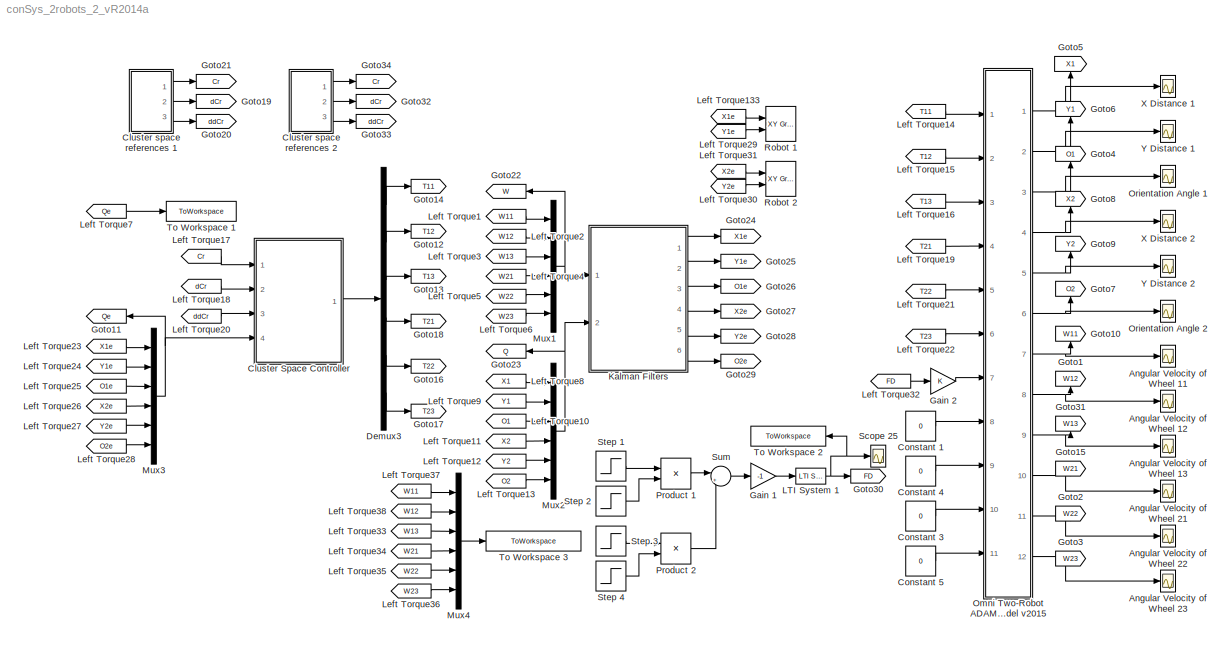
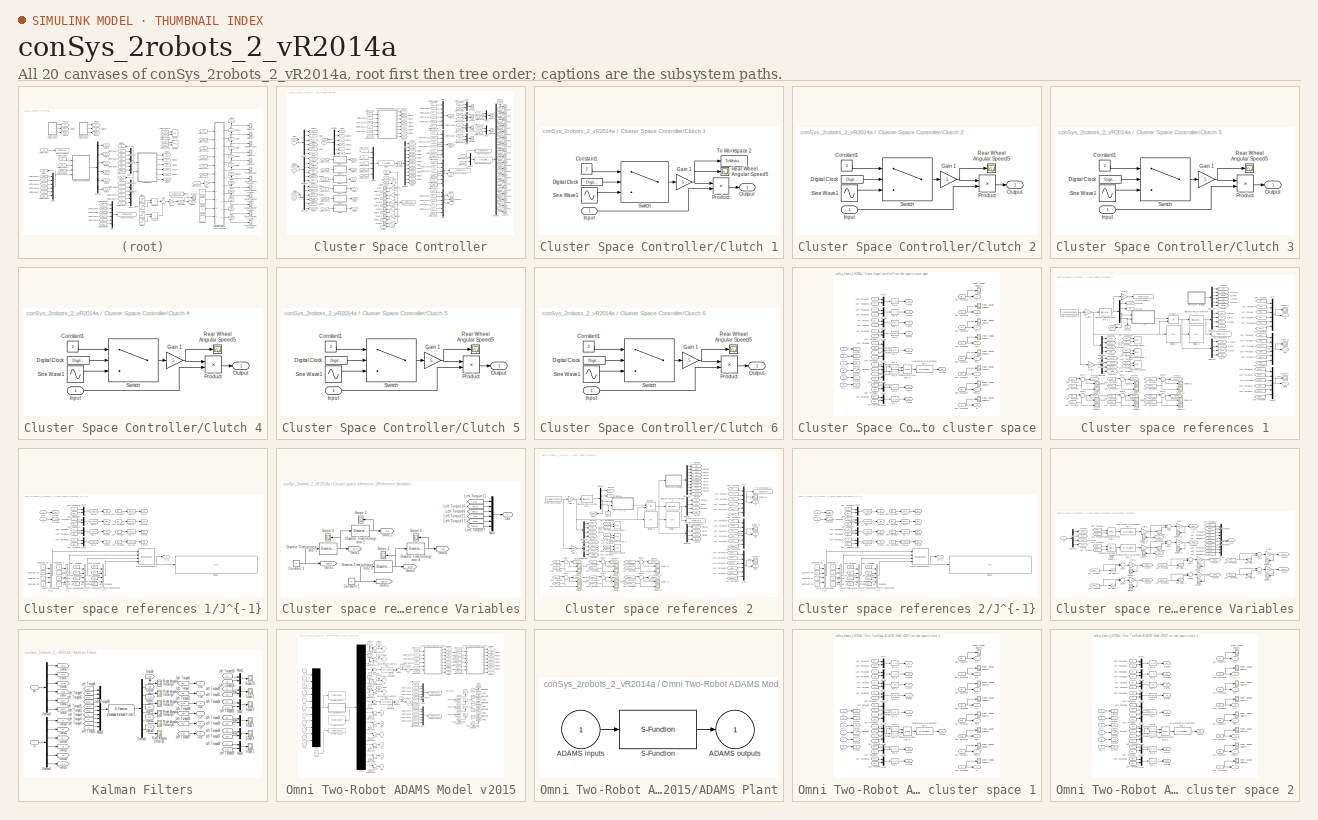
[diagram: thumbnail index - all 20 canvases of the model, root first then tree order]
MODEL conSys_2robots_2_vR2014a
KIND model
BLOCK [Scope] Angular Velocity of Wheel 11
  Floating = off
  LimitDataPoints = off
  NumInputPorts = 1
  Ports = [1]
  SID = 1
  SaveName = ScopeData3
  ShowLegends = off
  YMax = 20
  YMin = -20
  ZoomMode = yonly
BLOCK [Scope] Angular Velocity of Wheel 12
  Floating = off
  LimitDataPoints = off
  NumInputPorts = 1
  Ports = [1]
  SID = 22
  SaveName = ScopeData6
  ShowLegends = off
  YMax = 20
  YMin = -200
  ZoomMode = yonly
BLOCK [Scope] Angular Velocity of Wheel 13
  Floating = off
  LimitDataPoints = off
  NumInputPorts = 1
  Ports = [1]
  SID = 3
  SaveName = ScopeData9
  ShowLegends = off
  YMax = 20
  YMin = -10
  ZoomMode = yonly
BLOCK [Scope] Angular Velocity of Wheel 21
  Floating = off
  LimitDataPoints = off
  NumInputPorts = 1
  Ports = [1]
  SID = 2
  SaveName = ScopeData2
  ShowLegends = off
  YMax = 20
  YMin = -20
  ZoomMode = yonly
BLOCK [Scope] Angular Velocity of Wheel 22
  Floating = off
  LimitDataPoints = off
  NumInputPorts = 1
  Ports = [1]
  SID = 23
  SaveName = ScopeData10
  ShowLegends = off
  YMax = 18
  YMin = -15
  ZoomMode = yonly
BLOCK [Scope] Angular Velocity of Wheel 23
  Floating = off
  LimitDataPoints = off
  NumInputPorts = 1
  Ports = [1]
  SID = 24
  SaveName = ScopeData11
  ShowLegends = off
  YMax = 15
  YMin = -15
  ZoomMode = yonly
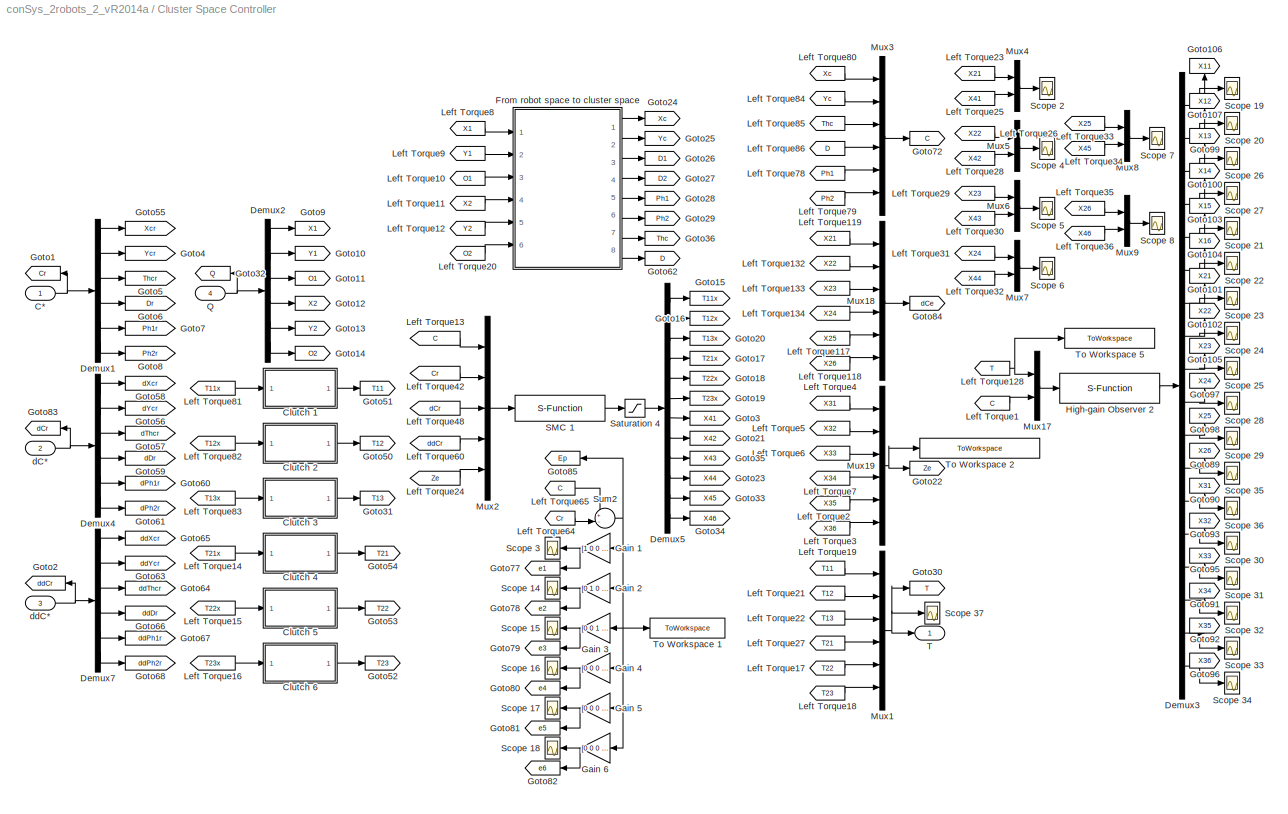
BLOCK [SubSystem] Cluster Space Controller
  Ports = [4, 1]
  RequestExecContextInheritance = off
  SID = 625
BLOCK [Inport] Cluster Space Controller/C*
  IconDisplay = Port number
  SID = 626
BLOCK [SubSystem] Cluster Space Controller/Clutch 1
  Ports = [1, 1]
  RequestExecContextInheritance = off
  SID = 2934
BLOCK [Constant] Cluster Space Controller/Clutch 1/Constant1
  SID = 2936
  Value = 2
BLOCK [DigitalClock] Cluster Space Controller/Clutch 1/Digital Clock
  SID = 2937
  SampleTime = Ts
BLOCK [Gain] Cluster Space Controller/Clutch 1/Gain 1
  Gain = .5
  OutDataTypeStr = Inherit: Inherit via internal rule
  ParamDataTypeStr = Inherit: Inherit via internal rule
  SID = 2938
  SaturateOnIntegerOverflow = off
BLOCK [Inport] Cluster Space Controller/Clutch 1/Input
  IconDisplay = Port number
  SID = 2935
BLOCK [Outport] Cluster Space Controller/Clutch 1/Output
  IconDisplay = Port number
  SID = 2943
BLOCK [Product] Cluster Space Controller/Clutch 1/Product
  InputSameDT = off
  OutDataTypeStr = Inherit: Inherit via internal rule
  Ports = [2, 1]
  RndMeth = Floor
  SID = 2939
  SaturateOnIntegerOverflow = off
BLOCK [Scope] Cluster Space Controller/Clutch 1/Rear Wheel Angular Speed5
  Floating = off
  LimitDataPoints = off
  NumInputPorts = 1
  Ports = [1]
  SID = 2940
  SaveName = ScopeData5
  ShowLegends = off
  YMax = 2
  YMin = 0
  ZoomMode = xonly
BLOCK [Sin] Cluster Space Controller/Clutch 1/Sine Wave1
  Bias = 1
  Frequency = (pi/ck)
  Phase = -pi/2
  Ports = [0, 1]
  SID = 2941
  SampleTime = Ts
BLOCK [Switch] Cluster Space Controller/Clutch 1/Switch
  InputSameDT = off
  SID = 2942
  SaturateOnIntegerOverflow = off
  Threshold = ck
BLOCK [ToWorkspace] Cluster Space Controller/Clutch 1/To Workspace 2
  FixptAsFi = on
  MaxDataPoints = inf
  Ports = [1]
  SID = 3769
  SampleTime = -1
  Save2DSignal = 3-D array (concatenate along third dimension)
  SaveFormat = Structure With Time
  VariableName = clutch
BLOCK [SubSystem] Cluster Space Controller/Clutch 2
  Ports = [1, 1]
  RequestExecContextInheritance = off
  SID = 2944
BLOCK [Constant] Cluster Space Controller/Clutch 2/Constant1
  SID = 2946
  Value = 2
BLOCK [DigitalClock] Cluster Space Controller/Clutch 2/Digital Clock
  SID = 2947
  SampleTime = Ts
BLOCK [Gain] Cluster Space Controller/Clutch 2/Gain 1
  Gain = .5
  OutDataTypeStr = Inherit: Inherit via internal rule
  ParamDataTypeStr = Inherit: Inherit via internal rule
  SID = 2948
  SaturateOnIntegerOverflow = off
BLOCK [Inport] Cluster Space Controller/Clutch 2/Input
  IconDisplay = Port number
  SID = 2945
BLOCK [Outport] Cluster Space Controller/Clutch 2/Output
  IconDisplay = Port number
  SID = 2953
BLOCK [Product] Cluster Space Controller/Clutch 2/Product
  InputSameDT = off
  OutDataTypeStr = Inherit: Inherit via internal rule
  Ports = [2, 1]
  RndMeth = Floor
  SID = 2949
  SaturateOnIntegerOverflow = off
BLOCK [Scope] Cluster Space Controller/Clutch 2/Rear Wheel Angular Speed5
  Floating = off
  LimitDataPoints = off
  NumInputPorts = 1
  Ports = [1]
  SID = 2950
  SaveName = ScopeData5
  ShowLegends = off
  YMax = 2
  YMin = 0
  ZoomMode = xonly
BLOCK [Sin] Cluster Space Controller/Clutch 2/Sine Wave1
  Bias = 1
  Frequency = (pi/ck)
  Phase = -pi/2
  Ports = [0, 1]
  SID = 2951
  SampleTime = Ts
BLOCK [Switch] Cluster Space Controller/Clutch 2/Switch
  InputSameDT = off
  SID = 2952
  SaturateOnIntegerOverflow = off
  Threshold = ck
BLOCK [SubSystem] Cluster Space Controller/Clutch 3
  Ports = [1, 1]
  RequestExecContextInheritance = off
  SID = 2954
BLOCK [Constant] Cluster Space Controller/Clutch 3/Constant1
  SID = 2956
  Value = 2
BLOCK [DigitalClock] Cluster Space Controller/Clutch 3/Digital Clock
  SID = 2957
  SampleTime = Ts
BLOCK [Gain] Cluster Space Controller/Clutch 3/Gain 1
  Gain = .5
  OutDataTypeStr = Inherit: Inherit via internal rule
  ParamDataTypeStr = Inherit: Inherit via internal rule
  SID = 2958
  SaturateOnIntegerOverflow = off
BLOCK [Inport] Cluster Space Controller/Clutch 3/Input
  IconDisplay = Port number
  SID = 2955
BLOCK [Outport] Cluster Space Controller/Clutch 3/Output
  IconDisplay = Port number
  SID = 2963
BLOCK [Product] Cluster Space Controller/Clutch 3/Product
  InputSameDT = off
  OutDataTypeStr = Inherit: Inherit via internal rule
  Ports = [2, 1]
  RndMeth = Floor
  SID = 2959
  SaturateOnIntegerOverflow = off
BLOCK [Scope] Cluster Space Controller/Clutch 3/Rear Wheel Angular Speed5
  Floating = off
  LimitDataPoints = off
  NumInputPorts = 1
  Ports = [1]
  SID = 2960
  SaveName = ScopeData5
  ShowLegends = off
  YMax = 2
  YMin = 0
  ZoomMode = xonly
BLOCK [Sin] Cluster Space Controller/Clutch 3/Sine Wave1
  Bias = 1
  Frequency = (pi/ck)
  Phase = -pi/2
  Ports = [0, 1]
  SID = 2961
  SampleTime = Ts
BLOCK [Switch] Cluster Space Controller/Clutch 3/Switch
  InputSameDT = off
  SID = 2962
  SaturateOnIntegerOverflow = off
  Threshold = ck
BLOCK [SubSystem] Cluster Space Controller/Clutch 4
  Ports = [1, 1]
  RequestExecContextInheritance = off
  SID = 2964
BLOCK [Constant] Cluster Space Controller/Clutch 4/Constant1
  SID = 2966
  Value = 2
BLOCK [DigitalClock] Cluster Space Controller/Clutch 4/Digital Clock
  SID = 2967
  SampleTime = Ts
BLOCK [Gain] Cluster Space Controller/Clutch 4/Gain 1
  Gain = .5
  OutDataTypeStr = Inherit: Inherit via internal rule
  ParamDataTypeStr = Inherit: Inherit via internal rule
  SID = 2968
  SaturateOnIntegerOverflow = off
BLOCK [Inport] Cluster Space Controller/Clutch 4/Input
  IconDisplay = Port number
  SID = 2965
BLOCK [Outport] Cluster Space Controller/Clutch 4/Output
  IconDisplay = Port number
  SID = 2973
BLOCK [Product] Cluster Space Controller/Clutch 4/Product
  InputSameDT = off
  OutDataTypeStr = Inherit: Inherit via internal rule
  Ports = [2, 1]
  RndMeth = Floor
  SID = 2969
  SaturateOnIntegerOverflow = off
BLOCK [Scope] Cluster Space Controller/Clutch 4/Rear Wheel Angular Speed5
  Floating = off
  LimitDataPoints = off
  NumInputPorts = 1
  Ports = [1]
  SID = 2970
  SaveName = ScopeData5
  ShowLegends = off
  YMax = 2
  YMin = 0
  ZoomMode = xonly
BLOCK [Sin] Cluster Space Controller/Clutch 4/Sine Wave1
  Bias = 1
  Frequency = (pi/ck)
  Phase = -pi/2
  Ports = [0, 1]
  SID = 2971
  SampleTime = Ts
BLOCK [Switch] Cluster Space Controller/Clutch 4/Switch
  InputSameDT = off
  SID = 2972
  SaturateOnIntegerOverflow = off
  Threshold = ck
BLOCK [SubSystem] Cluster Space Controller/Clutch 5
  Ports = [1, 1]
  RequestExecContextInheritance = off
  SID = 2974
BLOCK [Constant] Cluster Space Controller/Clutch 5/Constant1
  SID = 2976
  Value = 2
BLOCK [DigitalClock] Cluster Space Controller/Clutch 5/Digital Clock
  SID = 2977
  SampleTime = Ts
BLOCK [Gain] Cluster Space Controller/Clutch 5/Gain 1
  Gain = .5
  OutDataTypeStr = Inherit: Inherit via internal rule
  ParamDataTypeStr = Inherit: Inherit via internal rule
  SID = 2978
  SaturateOnIntegerOverflow = off
BLOCK [Inport] Cluster Space Controller/Clutch 5/Input
  IconDisplay = Port number
  SID = 2975
BLOCK [Outport] Cluster Space Controller/Clutch 5/Output
  IconDisplay = Port number
  SID = 2983
BLOCK [Product] Cluster Space Controller/Clutch 5/Product
  InputSameDT = off
  OutDataTypeStr = Inherit: Inherit via internal rule
  Ports = [2, 1]
  RndMeth = Floor
  SID = 2979
  SaturateOnIntegerOverflow = off
BLOCK [Scope] Cluster Space Controller/Clutch 5/Rear Wheel Angular Speed5
  Floating = off
  LimitDataPoints = off
  NumInputPorts = 1
  Ports = [1]
  SID = 2980
  SaveName = ScopeData5
  ShowLegends = off
  YMax = 2
  YMin = 0
  ZoomMode = xonly
BLOCK [Sin] Cluster Space Controller/Clutch 5/Sine Wave1
  Bias = 1
  Frequency = (pi/ck)
  Phase = -pi/2
  Ports = [0, 1]
  SID = 2981
  SampleTime = Ts
BLOCK [Switch] Cluster Space Controller/Clutch 5/Switch
  InputSameDT = off
  SID = 2982
  SaturateOnIntegerOverflow = off
  Threshold = ck
BLOCK [SubSystem] Cluster Space Controller/Clutch 6
  Ports = [1, 1]
  RequestExecContextInheritance = off
  SID = 2984
BLOCK [Constant] Cluster Space Controller/Clutch 6/Constant1
  SID = 2986
  Value = 2
BLOCK [DigitalClock] Cluster Space Controller/Clutch 6/Digital Clock
  SID = 2987
  SampleTime = Ts
BLOCK [Gain] Cluster Space Controller/Clutch 6/Gain 1
  Gain = .5
  OutDataTypeStr = Inherit: Inherit via internal rule
  ParamDataTypeStr = Inherit: Inherit via internal rule
  SID = 2988
  SaturateOnIntegerOverflow = off
BLOCK [Inport] Cluster Space Controller/Clutch 6/Input
  IconDisplay = Port number
  SID = 2985
BLOCK [Outport] Cluster Space Controller/Clutch 6/Output
  IconDisplay = Port number
  SID = 2993
BLOCK [Product] Cluster Space Controller/Clutch 6/Product
  InputSameDT = off
  OutDataTypeStr = Inherit: Inherit via internal rule
  Ports = [2, 1]
  RndMeth = Floor
  SID = 2989
  SaturateOnIntegerOverflow = off
BLOCK [Scope] Cluster Space Controller/Clutch 6/Rear Wheel Angular Speed5
  Floating = off
  LimitDataPoints = off
  NumInputPorts = 1
  Ports = [1]
  SID = 2990
  SaveName = ScopeData5
  ShowLegends = off
  YMax = 2
  YMin = 0
  ZoomMode = xonly
BLOCK [Sin] Cluster Space Controller/Clutch 6/Sine Wave1
  Bias = 1
  Frequency = (pi/ck)
  Phase = -pi/2
  Ports = [0, 1]
  SID = 2991
  SampleTime = Ts
BLOCK [Switch] Cluster Space Controller/Clutch 6/Switch
  InputSameDT = off
  SID = 2992
  SaturateOnIntegerOverflow = off
  Threshold = ck
BLOCK [Demux] Cluster Space Controller/Demux1
  DisplayOption = bar
  Outputs = 6
  Ports = [1, 6]
  SID = 1014
BLOCK [Demux] Cluster Space Controller/Demux2
  DisplayOption = bar
  Outputs = 6
  Ports = [1, 6]
  SID = 645
BLOCK [Demux] Cluster Space Controller/Demux3
  DisplayOption = bar
  Outputs = 18
  Ports = [1, 18]
  SID = 1835
BLOCK [Demux] Cluster Space Controller/Demux4
  DisplayOption = bar
  Outputs = 6
  Ports = [1, 6]
  SID = 1021
BLOCK [Demux] Cluster Space Controller/Demux5
  DisplayOption = bar
  Outputs = 12
  Ports = [1, 12]
  SID = 685
BLOCK [Demux] Cluster Space Controller/Demux7
  DisplayOption = bar
  Outputs = 6
  Ports = [1, 6]
  SID = 1028
BLOCK [SubSystem] Cluster Space Controller/From robot space to cluster space
  Ports = [6, 8]
  RequestExecContextInheritance = off
  SID = 3375
BLOCK [Outport] Cluster Space Controller/From robot space to cluster space/D
  IconDisplay = Port number
  Port = 8
  SID = 3458
BLOCK [Outport] Cluster Space Controller/From robot space to cluster space/D1
  IconDisplay = Port number
  Port = 3
  SID = 3453
BLOCK [Outport] Cluster Space Controller/From robot space to cluster space/D2
  IconDisplay = Port number
  Port = 4
  SID = 3454
BLOCK [Fcn] Cluster Space Controller/From robot space to cluster space/Fcn 1
  Expr = (u(1)+u(2))/2
  SID = 3382
BLOCK [Fcn] Cluster Space Controller/From robot space to cluster space/Fcn 2
  Expr = (u(1)+u(2))/2
  SID = 3383
BLOCK [Fcn] Cluster Space Controller/From robot space to cluster space/Fcn 3
  Expr = u(1)-u(2)
  SID = 3384
BLOCK [Fcn] Cluster Space Controller/From robot space to cluster space/Fcn 4
  Expr = u(3)-u(4)
  SID = 3385
BLOCK [Fcn] Cluster Space Controller/From robot space to cluster space/Fcn 5
  Expr = sqrt((u(1)-u(2))^2 + (u(3)-u(4))^2)/2
  SID = 3386
BLOCK [Fcn] Cluster Space Controller/From robot space to cluster space/Fcn 6
  Expr = u(1)-u(2)
  SID = 3387
BLOCK [Fcn] Cluster Space Controller/From robot space to cluster space/Fcn 7
  Expr = u(1)-u(2)
  SID = 3388
BLOCK [Fcn] Cluster Space Controller/From robot space to cluster space/Fcn 8
  Expr = u(1) - u(2)
  SID = 3389
BLOCK [Fcn] Cluster Space Controller/From robot space to cluster space/Fcn 9
  Expr = u(1) - u(2)
  SID = 3390
BLOCK [Goto] Cluster Space Controller/From robot space to cluster space/Goto1
  GotoTag = xc
  SID = 3391
BLOCK [Goto] Cluster Space Controller/From robot space to cluster space/Goto10
  GotoTag = d2
  SID = 3392
BLOCK [Goto] Cluster Space Controller/From robot space to cluster space/Goto17
  GotoTag = th1
  SID = 3393
BLOCK [Goto] Cluster Space Controller/From robot space to cluster space/Goto18
  GotoTag = x2
  SID = 3394
BLOCK [Goto] Cluster Space Controller/From robot space to cluster space/Goto19
  GotoTag = y2
  SID = 3395
BLOCK [Goto] Cluster Space Controller/From robot space to cluster space/Goto2
  GotoTag = y1
  SID = 3396
BLOCK [Goto] Cluster Space Controller/From robot space to cluster space/Goto20
  GotoTag = x1
  SID = 3397
BLOCK [Goto] Cluster Space Controller/From robot space to cluster space/Goto3
  GotoTag = th2
  SID = 3398
BLOCK [Goto] Cluster Space Controller/From robot space to cluster space/Goto4
  GotoTag = yc
  SID = 3399
BLOCK [Goto] Cluster Space Controller/From robot space to cluster space/Goto5
  GotoTag = thc
  SID = 3400
BLOCK [Goto] Cluster Space Controller/From robot space to cluster space/Goto6
  GotoTag = d
  SID = 3401
BLOCK [Goto] Cluster Space Controller/From robot space to cluster space/Goto7
  GotoTag = ph1
  SID = 3402
BLOCK [Goto] Cluster Space Controller/From robot space to cluster space/Goto8
  GotoTag = ph2
  SID = 3403
BLOCK [Goto] Cluster Space Controller/From robot space to cluster space/Goto9
  GotoTag = d1
  SID = 3404
BLOCK [MATLABFcn] Cluster Space Controller/From robot space to cluster space/Interpreted MATLAB\nFunction 1
  MATLABFcn = absoluteAngle03_vR2014a(u)
  Ports = [1, 1]
  SID = 3405
  SampleTime = Ts
BLOCK [From] Cluster Space Controller/From robot space to cluster space/Left Torque1
  GotoTag = thc
  SID = 3406
BLOCK [From] Cluster Space Controller/From robot space to cluster space/Left Torque10
  GotoTag = y2
  SID = 3407
BLOCK [From] Cluster Space Controller/From robot space to cluster space/Left Torque11
  GotoTag = y1
  SID = 3408
BLOCK [From] Cluster Space Controller/From robot space to cluster space/Left Torque12
  GotoTag = thc
  SID = 3409
BLOCK [From] Cluster Space Controller/From robot space to cluster space/Left Torque13
  GotoTag = th1
  SID = 3410
BLOCK [From] Cluster Space Controller/From robot space to cluster space/Left Torque14
  GotoTag = y2
  SID = 3411
BLOCK [From] Cluster Space Controller/From robot space to cluster space/Left Torque15
  GotoTag = y1
  SID = 3412
BLOCK [From] Cluster Space Controller/From robot space to cluster space/Left Torque16
  GotoTag = th2
  SID = 3413
BLOCK [From] Cluster Space Controller/From robot space to cluster space/Left Torque17
  GotoTag = xc
  SID = 3414
BLOCK [From] Cluster Space Controller/From robot space to cluster space/Left Torque18
  GotoTag = yc
  SID = 3415
BLOCK [From] Cluster Space Controller/From robot space to cluster space/Left Torque19
  GotoTag = d1
  SID = 3416
BLOCK [From] Cluster Space Controller/From robot space to cluster space/Left Torque2
  GotoTag = x2
  SID = 3417
BLOCK [From] Cluster Space Controller/From robot space to cluster space/Left Torque20
  GotoTag = d2
  SID = 3418
BLOCK [From] Cluster Space Controller/From robot space to cluster space/Left Torque21
  GotoTag = ph1
  SID = 3419
BLOCK [From] Cluster Space Controller/From robot space to cluster space/Left Torque22
  GotoTag = ph2
  SID = 3420
BLOCK [From] Cluster Space Controller/From robot space to cluster space/Left Torque23
  GotoTag = x2
  SID = 3421
BLOCK [From] Cluster Space Controller/From robot space to cluster space/Left Torque24
  GotoTag = xc
  SID = 3422
BLOCK [From] Cluster Space Controller/From robot space to cluster space/Left Torque25
  GotoTag = y2
  SID = 3423
BLOCK [From] Cluster Space Controller/From robot space to cluster space/Left Torque26
  GotoTag = yc
  SID = 3424
BLOCK [From] Cluster Space Controller/From robot space to cluster space/Left Torque27
  GotoTag = thc
  SID = 3425
BLOCK [From] Cluster Space Controller/From robot space to cluster space/Left Torque28
  GotoTag = d
  SID = 3426
BLOCK [From] Cluster Space Controller/From robot space to cluster space/Left Torque3
  GotoTag = x1
  SID = 3427
BLOCK [From] Cluster Space Controller/From robot space to cluster space/Left Torque4
  GotoTag = x2
  SID = 3428
BLOCK [From] Cluster Space Controller/From robot space to cluster space/Left Torque5
  GotoTag = x1
  SID = 3429
BLOCK [From] Cluster Space Controller/From robot space to cluster space/Left Torque6
  GotoTag = y2
  SID = 3430
BLOCK [From] Cluster Space Controller/From robot space to cluster space/Left Torque7
  GotoTag = y1
  SID = 3431
BLOCK [From] Cluster Space Controller/From robot space to cluster space/Left Torque8
  GotoTag = x2
  SID = 3432
BLOCK [From] Cluster Space Controller/From robot space to cluster space/Left Torque9
  GotoTag = x1
  SID = 3433
BLOCK [Mux] Cluster Space Controller/From robot space to cluster space/Mux1
  DisplayOption = bar
  Inputs = 2
  Ports = [2, 1]
  SID = 3434
BLOCK [Mux] Cluster Space Controller/From robot space to cluster space/Mux2
  DisplayOption = bar
  Ports = [4, 1]
  SID = 3435
BLOCK [Mux] Cluster Space Controller/From robot space to cluster space/Mux3
  DisplayOption = bar
  Inputs = 2
  Ports = [2, 1]
  SID = 3436
BLOCK [Mux] Cluster Space Controller/From robot space to cluster space/Mux4
  DisplayOption = bar
  Ports = [4, 1]
  SID = 3437
BLOCK [Mux] Cluster Space Controller/From robot space to cluster space/Mux5
  DisplayOption = bar
  Inputs = 2
  Ports = [2, 1]
  SID = 3438
BLOCK [Mux] Cluster Space Controller/From robot space to cluster space/Mux6
  DisplayOption = bar
  Inputs = 2
  Ports = [2, 1]
  SID = 3439
BLOCK [Mux] Cluster Space Controller/From robot space to cluster space/Mux7
  DisplayOption = bar
  Inputs = 2
  Ports = [2, 1]
  SID = 3440
BLOCK [Mux] Cluster Space Controller/From robot space to cluster space/Mux8
  DisplayOption = bar
  Inputs = 2
  Ports = [2, 1]
  SID = 3441
BLOCK [Outport] Cluster Space Controller/From robot space to cluster space/Phi_1
  IconDisplay = Port number
  Port = 5
  SID = 3455
BLOCK [Outport] Cluster Space Controller/From robot space to cluster space/Phi_2
  IconDisplay = Port number
  Port = 6
  SID = 3456
BLOCK [Scope] Cluster Space Controller/From robot space to cluster space/Right Angular Velocity1
  Floating = off
  LimitDataPoints = off
  NumInputPorts = 1
  Ports = [1]
  SID = 3442
  SaveName = ScopeData38
  ShowLegends = off
  YMax = 2600
  YMin = 2400
  ZoomMode = xonly
BLOCK [Scope] Cluster Space Controller/From robot space to cluster space/Right Angular Velocity2
  Floating = off
  LimitDataPoints = off
  NumInputPorts = 1
  Ports = [1]
  SID = 3443
  SaveName = ScopeData36
  ShowLegends = off
  YMax = 2600
  YMin = 2400
  ZoomMode = xonly
BLOCK [Scope] Cluster Space Controller/From robot space to cluster space/Right Angular Velocity3
  Floating = off
  LimitDataPoints = off
  NumInputPorts = 1
  Ports = [1]
  SID = 3444
  SaveName = ScopeData48
  ShowLegends = off
  YMax = 2600
  YMin = 2400
  ZoomMode = xonly
BLOCK [Scope] Cluster Space Controller/From robot space to cluster space/Right Angular Velocity4
  Floating = off
  LimitDataPoints = off
  NumInputPorts = 1
  Ports = [1]
  SID = 3445
  SaveName = ScopeData49
  ShowLegends = off
  YMax = 700
  YMin = 0
  ZoomMode = xonly
BLOCK [Scope] Cluster Space Controller/From robot space to cluster space/Right Angular Velocity5
  Floating = off
  LimitDataPoints = off
  NumInputPorts = 1
  Ports = [1]
  SID = 3446
  SaveName = ScopeData50
  ShowLegends = off
  YMax = 2600
  YMin = 2400
  ZoomMode = xonly
BLOCK [Scope] Cluster Space Controller/From robot space to cluster space/Right Angular Velocity6
  Floating = off
  LimitDataPoints = off
  NumInputPorts = 1
  Ports = [1]
  SID = 3447
  SaveName = ScopeData51
  ShowLegends = off
  YMax = 2600
  YMin = 2400
  ZoomMode = yonly
BLOCK [Scope] Cluster Space Controller/From robot space to cluster space/Right Angular Velocity7
  Floating = off
  LimitDataPoints = off
  NumInputPorts = 1
  Ports = [1]
  SID = 3448
  SaveName = ScopeData80
  ShowLegends = off
  YMax = 10
  YMin = -10
  ZoomMode = yonly
BLOCK [Scope] Cluster Space Controller/From robot space to cluster space/Right Angular Velocity8
  Floating = off
  LimitDataPoints = off
  NumInputPorts = 1
  Ports = [1]
  SID = 3449
  SaveName = ScopeData85
  ShowLegends = off
  YMax = 1392.5
  YMin = 1350
  ZoomMode = yonly
BLOCK [Outport] Cluster Space Controller/From robot space to cluster space/Theta_c
  IconDisplay = Port number
  Port = 7
  SID = 3457
BLOCK [Trigonometry] Cluster Space Controller/From robot space to cluster space/Trigonometric\nFunction 3
  Operator = atan2
  Ports = [2, 1]
  SID = 3450
BLOCK [Outport] Cluster Space Controller/From robot space to cluster space/X_c
  IconDisplay = Port number
  SID = 3451
BLOCK [Outport] Cluster Space Controller/From robot space to cluster space/Y_c
  IconDisplay = Port number
  Port = 2
  SID = 3452
BLOCK [Inport] Cluster Space Controller/From robot space to cluster space/th_1
  IconDisplay = Port number
  Port = 3
  SID = 3378
BLOCK [Inport] Cluster Space Controller/From robot space to cluster space/th_2
  IconDisplay = Port number
  Port = 6
  SID = 3381
BLOCK [Inport] Cluster Space Controller/From robot space to cluster space/x_1
  IconDisplay = Port number
  SID = 3376
BLOCK [Inport] Cluster Space Controller/From robot space to cluster space/x_2
  IconDisplay = Port number
  Port = 4
  SID = 3379
BLOCK [Inport] Cluster Space Controller/From robot space to cluster space/y_1
  IconDisplay = Port number
  Port = 2
  SID = 3377
BLOCK [Inport] Cluster Space Controller/From robot space to cluster space/y_2
  IconDisplay = Port number
  Port = 5
  SID = 3380
BLOCK [Gain] Cluster Space Controller/Gain 1
  Gain = [1 0 0 0 0 0]
  Multiplication = Matrix(K*u)
  OutDataTypeStr = Inherit: Inherit via internal rule
  ParamDataTypeStr = Inherit: Inherit via internal rule
  SID = 1516
  SaturateOnIntegerOverflow = off
BLOCK [Gain] Cluster Space Controller/Gain 2
  Gain = [0 1 0 0 0 0]
  Multiplication = Matrix(K*u)
  OutDataTypeStr = Inherit: Inherit via internal rule
  ParamDataTypeStr = Inherit: Inherit via internal rule
  SID = 1517
  SaturateOnIntegerOverflow = off
BLOCK [Gain] Cluster Space Controller/Gain 3
  Gain = [0 0 1 0 0 0]
  Multiplication = Matrix(K*u)
  OutDataTypeStr = Inherit: Inherit via internal rule
  ParamDataTypeStr = Inherit: Inherit via internal rule
  SID = 1519
  SaturateOnIntegerOverflow = off
BLOCK [Gain] Cluster Space Controller/Gain 4
  Gain = [0 0 0 1 0 0]
  Multiplication = Matrix(K*u)
  OutDataTypeStr = Inherit: Inherit via internal rule
  ParamDataTypeStr = Inherit: Inherit via internal rule
  SID = 1521
  SaturateOnIntegerOverflow = off
BLOCK [Gain] Cluster Space Controller/Gain 5
  Gain = [0 0 0 0 1 0]
  Multiplication = Matrix(K*u)
  OutDataTypeStr = Inherit: Inherit via internal rule
  ParamDataTypeStr = Inherit: Inherit via internal rule
  SID = 1523
  SaturateOnIntegerOverflow = off
BLOCK [Gain] Cluster Space Controller/Gain 6
  Gain = [0 0 0 0 0 1]
  Multiplication = Matrix(K*u)
  OutDataTypeStr = Inherit: Inherit via internal rule
  ParamDataTypeStr = Inherit: Inherit via internal rule
  SID = 1525
  SaturateOnIntegerOverflow = off
BLOCK [Goto] Cluster Space Controller/Goto1
  GotoTag = Cr
  SID = 634
BLOCK [Goto] Cluster Space Controller/Goto10
  GotoTag = Y1
  SID = 647
BLOCK [Goto] Cluster Space Controller/Goto100
  GotoTag = X14
  SID = 1937
BLOCK [Goto] Cluster Space Controller/Goto101
  GotoTag = X21
  SID = 1938
BLOCK [Goto] Cluster Space Controller/Goto102
  GotoTag = X22
  SID = 1939
BLOCK [Goto] Cluster Space Controller/Goto103
  GotoTag = X15
  SID = 1940
BLOCK [Goto] Cluster Space Controller/Goto104
  GotoTag = X16
  SID = 1941
BLOCK [Goto] Cluster Space Controller/Goto105
  GotoTag = X23
  SID = 1942
BLOCK [Goto] Cluster Space Controller/Goto106
  GotoTag = X11
  SID = 1943
BLOCK [Goto] Cluster Space Controller/Goto107
  GotoTag = X12
  SID = 1944
BLOCK [Goto] Cluster Space Controller/Goto11
  GotoTag = O1
  SID = 648
BLOCK [Goto] Cluster Space Controller/Goto12
  GotoTag = X2
  SID = 649
BLOCK [Goto] Cluster Space Controller/Goto13
  GotoTag = Y2
  SID = 650
BLOCK [Goto] Cluster Space Controller/Goto14
  GotoTag = O2
  SID = 651
BLOCK [Goto] Cluster Space Controller/Goto15
  GotoTag = T11x
  SID = 686
BLOCK [Goto] Cluster Space Controller/Goto16
  GotoTag = T12x
  SID = 687
BLOCK [Goto] Cluster Space Controller/Goto17
  GotoTag = T21x
  SID = 691
BLOCK [Goto] Cluster Space Controller/Goto18
  GotoTag = T22x
  SID = 692
BLOCK [Goto] Cluster Space Controller/Goto19
  GotoTag = T23x
  SID = 693
BLOCK [Goto] Cluster Space Controller/Goto2
  GotoTag = ddCr
  SID = 3751
BLOCK [Goto] Cluster Space Controller/Goto20
  GotoTag = T13x
  SID = 688
BLOCK [Goto] Cluster Space Controller/Goto21
  GotoTag = X42
  SID = 3754
BLOCK [Goto] Cluster Space Controller/Goto22
  GotoTag = Ze
  SID = 2915
BLOCK [Goto] Cluster Space Controller/Goto23
  GotoTag = X44
  SID = 3755
BLOCK [Goto] Cluster Space Controller/Goto24
  GotoTag = Xc
  SID = 3459
BLOCK [Goto] Cluster Space Controller/Goto25
  GotoTag = Yc
  SID = 3460
BLOCK [Goto] Cluster Space Controller/Goto26
  GotoTag = D1
  SID = 3461
BLOCK [Goto] Cluster Space Controller/Goto27
  GotoTag = D2
  SID = 3462
BLOCK [Goto] Cluster Space Controller/Goto28
  GotoTag = Ph1
  SID = 3463
BLOCK [Goto] Cluster Space Controller/Goto29
  GotoTag = Ph2
  SID = 3464
BLOCK [Goto] Cluster Space Controller/Goto3
  GotoTag = X41
  SID = 3753
BLOCK [Goto] Cluster Space Controller/Goto30
  GotoTag = T
  SID = 2910
BLOCK [Goto] Cluster Space Controller/Goto31
  GotoTag = T13
  SID = 725
BLOCK [Goto] Cluster Space Controller/Goto32
  GotoTag = Q
  SID = 2911
BLOCK [Goto] Cluster Space Controller/Goto33
  GotoTag = X45
  SID = 3756
BLOCK [Goto] Cluster Space Controller/Goto34
  GotoTag = X46
  SID = 3757
BLOCK [Goto] Cluster Space Controller/Goto35
  GotoTag = X43
  SID = 3758
BLOCK [Goto] Cluster Space Controller/Goto36
  GotoTag = Thc
  SID = 3465
BLOCK [Goto] Cluster Space Controller/Goto4
  GotoTag = Ycr
  SID = 1015
BLOCK [Goto] Cluster Space Controller/Goto5
  GotoTag = Thcr
  SID = 1016
BLOCK [Goto] Cluster Space Controller/Goto50
  GotoTag = T12
  SID = 726
BLOCK [Goto] Cluster Space Controller/Goto51
  GotoTag = T11
  SID = 727
BLOCK [Goto] Cluster Space Controller/Goto52
  GotoTag = T23
  SID = 762
BLOCK [Goto] Cluster Space Controller/Goto53
  GotoTag = T22
  SID = 763
BLOCK [Goto] Cluster Space Controller/Goto54
  GotoTag = T21
  SID = 764
BLOCK [Goto] Cluster Space Controller/Goto55
  GotoTag = Xcr
  SID = 1020
BLOCK [Goto] Cluster Space Controller/Goto56
  GotoTag = dYcr
  SID = 1022
BLOCK [Goto] Cluster Space Controller/Goto57
  GotoTag = dThcr
  SID = 1023
BLOCK [Goto] Cluster Space Controller/Goto58
  GotoTag = dXcr
  SID = 1024
BLOCK [Goto] Cluster Space Controller/Goto59
  GotoTag = dDr
  SID = 1025
BLOCK [Goto] Cluster Space Controller/Goto6
  GotoTag = Dr
  SID = 1017
BLOCK [Goto] Cluster Space Controller/Goto60
  GotoTag = dPh1r
  SID = 1026
BLOCK [Goto] Cluster Space Controller/Goto61
  GotoTag = dPh2r
  SID = 1027
BLOCK [Goto] Cluster Space Controller/Goto62
  GotoTag = D
  SID = 3466
BLOCK [Goto] Cluster Space Controller/Goto63
  GotoTag = ddYcr
  SID = 1029
BLOCK [Goto] Cluster Space Controller/Goto64
  GotoTag = ddThcr
  SID = 1030
BLOCK [Goto] Cluster Space Controller/Goto65
  GotoTag = ddXcr
  SID = 1031
BLOCK [Goto] Cluster Space Controller/Goto66
  GotoTag = ddDr
  SID = 1032
BLOCK [Goto] Cluster Space Controller/Goto67
  GotoTag = ddPh1r
  SID = 1033
BLOCK [Goto] Cluster Space Controller/Goto68
  GotoTag = ddPh2r
  SID = 1034
BLOCK [Goto] Cluster Space Controller/Goto7
  GotoTag = Ph1r
  SID = 1018
BLOCK [Goto] Cluster Space Controller/Goto72
  GotoTag = C
  SID = 1089
BLOCK [Goto] Cluster Space Controller/Goto77
  GotoTag = e1
  SID = 1533
BLOCK [Goto] Cluster Space Controller/Goto78
  GotoTag = e2
  SID = 1534
BLOCK [Goto] Cluster Space Controller/Goto79
  GotoTag = e3
  SID = 1535
BLOCK [Goto] Cluster Space Controller/Goto8
  GotoTag = Ph2r
  SID = 1019
BLOCK [Goto] Cluster Space Controller/Goto80
  GotoTag = e4
  SID = 1536
BLOCK [Goto] Cluster Space Controller/Goto81
  GotoTag = e5
  SID = 1537
BLOCK [Goto] Cluster Space Controller/Goto82
  GotoTag = e6
  SID = 1538
BLOCK [Goto] Cluster Space Controller/Goto83
  GotoTag = dCr
  SID = 2227
BLOCK [Goto] Cluster Space Controller/Goto84
  GotoTag = dCe
  SID = 2228
BLOCK [Goto] Cluster Space Controller/Goto85
  GotoTag = Ep
  SID = 2241
BLOCK [Goto] Cluster Space Controller/Goto89
  GotoTag = X26
  SID = 1926
BLOCK [Goto] Cluster Space Controller/Goto9
  GotoTag = X1
  SID = 646
BLOCK [Goto] Cluster Space Controller/Goto90
  GotoTag = X31
  SID = 1927
BLOCK [Goto] Cluster Space Controller/Goto91
  GotoTag = X34
  SID = 1928
BLOCK [Goto] Cluster Space Controller/Goto92
  GotoTag = X35
  SID = 1929
BLOCK [Goto] Cluster Space Controller/Goto93
  GotoTag = X32
  SID = 1930
BLOCK [Goto] Cluster Space Controller/Goto95
  GotoTag = X33
  SID = 1932
BLOCK [Goto] Cluster Space Controller/Goto96
  GotoTag = X36
  SID = 1933
BLOCK [Goto] Cluster Space Controller/Goto97
  GotoTag = X24
  SID = 1934
BLOCK [Goto] Cluster Space Controller/Goto98
  GotoTag = X25
  SID = 1935
BLOCK [Goto] Cluster Space Controller/Goto99
  GotoTag = X13
  SID = 1936
BLOCK [S-Function] Cluster Space Controller/High-gain Observer 2
  EnableBusSupport = off
  FunctionName = HGO_2_vR2014a
  Parameters = par
  Ports = [1, 1]
  SID = 1967
BLOCK [From] Cluster Space Controller/Left Torque1
  GotoTag = C
  SID = 2912
BLOCK [From] Cluster Space Controller/Left Torque10
  GotoTag = O1
  SID = 3469
BLOCK [From] Cluster Space Controller/Left Torque11
  GotoTag = X2
  SID = 3470
BLOCK [From] Cluster Space Controller/Left Torque117
  GotoTag = X25
  SID = 2229
BLOCK [From] Cluster Space Controller/Left Torque118
  GotoTag = X26
  SID = 2230
BLOCK [From] Cluster Space Controller/Left Torque119
  GotoTag = X21
  SID = 2231
BLOCK [From] Cluster Space Controller/Left Torque12
  GotoTag = Y2
  SID = 3471
BLOCK [From] Cluster Space Controller/Left Torque128
  GotoTag = T
  SID = 1995
BLOCK [From] Cluster Space Controller/Left Torque13
  GotoTag = C
  SID = 682
BLOCK [From] Cluster Space Controller/Left Torque132
  GotoTag = X22
  SID = 2232
BLOCK [From] Cluster Space Controller/Left Torque133
  GotoTag = X23
  SID = 2233
BLOCK [From] Cluster Space Controller/Left Torque134
  GotoTag = X24
  SID = 2234
BLOCK [From] Cluster Space Controller/Left Torque14
  GotoTag = T21x
  SID = 765
BLOCK [From] Cluster Space Controller/Left Torque15
  GotoTag = T22x
  SID = 766
BLOCK [From] Cluster Space Controller/Left Torque16
  GotoTag = T23x
  SID = 767
BLOCK [From] Cluster Space Controller/Left Torque17
  GotoTag = T22
  SID = 769
BLOCK [From] Cluster Space Controller/Left Torque18
  GotoTag = T23
  SID = 770
BLOCK [From] Cluster Space Controller/Left Torque19
  GotoTag = T11
  SID = 771
BLOCK [From] Cluster Space Controller/Left Torque2
  GotoTag = X35
  SID = 2916
BLOCK [From] Cluster Space Controller/Left Torque20
  GotoTag = O2
  SID = 3472
BLOCK [From] Cluster Space Controller/Left Torque21
  GotoTag = T12
  SID = 772
BLOCK [From] Cluster Space Controller/Left Torque22
  GotoTag = T13
  SID = 773
BLOCK [From] Cluster Space Controller/Left Torque23
  GotoTag = X21
  SID = 4123
BLOCK [From] Cluster Space Controller/Left Torque24
  GotoTag = Ze
  SID = 1061
BLOCK [From] Cluster Space Controller/Left Torque25
  GotoTag = X41
  SID = 4124
BLOCK [From] Cluster Space Controller/Left Torque26
  GotoTag = X22
  SID = 4126
BLOCK [From] Cluster Space Controller/Left Torque27
  GotoTag = T21
  SID = 774
BLOCK [From] Cluster Space Controller/Left Torque28
  GotoTag = X42
  SID = 4127
BLOCK [From] Cluster Space Controller/Left Torque29
  GotoTag = X23
  SID = 4129
BLOCK [From] Cluster Space Controller/Left Torque3
  GotoTag = X36
  SID = 2917
BLOCK [From] Cluster Space Controller/Left Torque30
  GotoTag = X43
  SID = 4130
BLOCK [From] Cluster Space Controller/Left Torque31
  GotoTag = X24
  SID = 4132
BLOCK [From] Cluster Space Controller/Left Torque32
  GotoTag = X44
  SID = 4133
BLOCK [From] Cluster Space Controller/Left Torque33
  GotoTag = X25
  SID = 4139
BLOCK [From] Cluster Space Controller/Left Torque34
  GotoTag = X45
  SID = 4140
BLOCK [From] Cluster Space Controller/Left Torque35
  GotoTag = X26
  SID = 4143
BLOCK [From] Cluster Space Controller/Left Torque36
  GotoTag = X46
  SID = 4144
BLOCK [From] Cluster Space Controller/Left Torque4
  GotoTag = X31
  SID = 2918
BLOCK [From] Cluster Space Controller/Left Torque42
  GotoTag = Cr
  SID = 1039
BLOCK [From] Cluster Space Controller/Left Torque48
  GotoTag = dCr
  SID = 1045
BLOCK [From] Cluster Space Controller/Left Torque5
  GotoTag = X32
  SID = 2919
BLOCK [From] Cluster Space Controller/Left Torque6
  GotoTag = X33
  SID = 2920
BLOCK [From] Cluster Space Controller/Left Torque60
  GotoTag = ddCr
  SID = 1051
BLOCK [From] Cluster Space Controller/Left Torque64
  GotoTag = Cr
  SID = 729
BLOCK [From] Cluster Space Controller/Left Torque65
  GotoTag = C
  SID = 730
BLOCK [From] Cluster Space Controller/Left Torque7
  GotoTag = X34
  SID = 2921
BLOCK [From] Cluster Space Controller/Left Torque78
  GotoTag = Ph1
  SID = 1082
BLOCK [From] Cluster Space Controller/Left Torque79
  GotoTag = Ph2
  SID = 1083
BLOCK [From] Cluster Space Controller/Left Torque8
  GotoTag = X1
  SID = 3467
BLOCK [From] Cluster Space Controller/Left Torque80
  GotoTag = Xc
  SID = 1084
BLOCK [From] Cluster Space Controller/Left Torque81
  GotoTag = T11x
  SID = 731
BLOCK [From] Cluster Space Controller/Left Torque82
  GotoTag = T12x
  SID = 732
BLOCK [From] Cluster Space Controller/Left Torque83
  GotoTag = T13x
  SID = 733
BLOCK [From] Cluster Space Controller/Left Torque84
  GotoTag = Yc
  SID = 1085
BLOCK [From] Cluster Space Controller/Left Torque85
  GotoTag = Thc
  SID = 1086
BLOCK [From] Cluster Space Controller/Left Torque86
  GotoTag = D
  SID = 1087
BLOCK [From] Cluster Space Controller/Left Torque9
  GotoTag = Y1
  SID = 3468
BLOCK [Mux] Cluster Space Controller/Mux1
  DisplayOption = bar
  Inputs = 6
  Ports = [6, 1]
  SID = 768
BLOCK [Mux] Cluster Space Controller/Mux17
  DisplayOption = bar
  Inputs = 2
  Ports = [2, 1]
  SID = 1999
BLOCK [Mux] Cluster Space Controller/Mux18
  DisplayOption = bar
  Inputs = 6
  Ports = [6, 1]
  SID = 2235
BLOCK [Mux] Cluster Space Controller/Mux19
  DisplayOption = bar
  Inputs = 6
  Ports = [6, 1]
  SID = 2922
BLOCK [Mux] Cluster Space Controller/Mux2
  DisplayOption = bar
  Inputs = 5
  Ports = [5, 1]
  SID = 683
BLOCK [Mux] Cluster Space Controller/Mux3
  DisplayOption = bar
  Inputs = 6
  Ports = [6, 1]
  SID = 1088
BLOCK [Mux] Cluster Space Controller/Mux4
  DisplayOption = bar
  Inputs = 2
  Ports = [2, 1]
  SID = 4125
BLOCK [Mux] Cluster Space Controller/Mux5
  DisplayOption = bar
  Inputs = 2
  Ports = [2, 1]
  SID = 4128
BLOCK [Mux] Cluster Space Controller/Mux6
  DisplayOption = bar
  Inputs = 2
  Ports = [2, 1]
  SID = 4131
BLOCK [Mux] Cluster Space Controller/Mux7
  DisplayOption = bar
  Inputs = 2
  Ports = [2, 1]
  SID = 4134
BLOCK [Mux] Cluster Space Controller/Mux8
  DisplayOption = bar
  Inputs = 2
  Ports = [2, 1]
  SID = 4141
BLOCK [Mux] Cluster Space Controller/Mux9
  DisplayOption = bar
  Inputs = 2
  Ports = [2, 1]
  SID = 4145
BLOCK [Inport] Cluster Space Controller/Q
  IconDisplay = Port number
  Port = 4
  SID = 629
BLOCK [S-Function] Cluster Space Controller/SMC 1
  EnableBusSupport = off
  FunctionName = SMC_1_vR2014a
  Parameters = par
  Ports = [1, 1]
  SID = 659
BLOCK [Saturate] Cluster Space Controller/Saturation 4
  InputPortMap = u0
  LowerLimit = -100
  Ports = [1, 1]
  SID = 689
  UpperLimit = 100
BLOCK [Scope] Cluster Space Controller/Scope 14
  Floating = off
  LimitDataPoints = off
  NumInputPorts = 1
  Ports = [1]
  SID = 1518
  SaveName = ScopeData77
  ShowLegends = off
  YMax = 3000
  YMin = -5000
  ZoomMode = yonly
BLOCK [Scope] Cluster Space Controller/Scope 15
  Floating = off
  LimitDataPoints = off
  NumInputPorts = 1
  Ports = [1]
  SID = 1520
  SaveName = ScopeData78
  ShowLegends = off
  YMax = 4
  YMin = -4
  ZoomMode = yonly
BLOCK [Scope] Cluster Space Controller/Scope 16
  Floating = off
  LimitDataPoints = off
  NumInputPorts = 1
  Ports = [1]
  SID = 1522
  SaveName = ScopeData82
  ShowLegends = off
  YMax = 800
  YMin = -2000
  ZoomMode = xonly
BLOCK [Scope] Cluster Space Controller/Scope 17
  Floating = off
  LimitDataPoints = off
  NumInputPorts = 1
  Ports = [1]
  SID = 1524
  SaveName = ScopeData83
  ShowLegends = off
BLOCK [Scope] Cluster Space Controller/Scope 18
  Floating = off
  LimitDataPoints = off
  NumInputPorts = 1
  Ports = [1]
  SID = 1526
  SaveName = ScopeData84
  ShowLegends = off
BLOCK [Scope] Cluster Space Controller/Scope 19
  Floating = off
  LimitDataPoints = off
  NumInputPorts = 1
  Ports = [1]
  SID = 2000
  SaveName = ScopeData86
  ShowLegends = off
  YMax = 16000
  YMin = -2000
  ZoomMode = yonly
BLOCK [Scope] Cluster Space Controller/Scope 2
  Floating = off
  LimitDataPoints = off
  NumInputPorts = 1
  Ports = [1]
  SID = 4135
  SaveName = ScopeData22
  ShowLegends = off
  YMax = 100
  YMin = -100
  ZoomMode = yonly
BLOCK [Scope] Cluster Space Controller/Scope 20
  Floating = off
  LimitDataPoints = off
  NumInputPorts = 1
  Ports = [1]
  SID = 2001
  SaveName = ScopeData87
  ShowLegends = off
  YMax = 20000
  YMin = 0
  ZoomMode = yonly
BLOCK [Scope] Cluster Space Controller/Scope 21
  Floating = off
  LimitDataPoints = off
  NumInputPorts = 1
  Ports = [1]
  SID = 2002
  SaveName = ScopeData88
  ShowLegends = off
  YMax = 5000
  YMin = 0
  ZoomMode = yonly
BLOCK [Scope] Cluster Space Controller/Scope 22
  Floating = off
  LimitDataPoints = off
  NumInputPorts = 1
  Ports = [1]
  SID = 2003
  SaveName = ScopeData90
  ShowLegends = off
  YMax = 200
  YMin = -100
  ZoomMode = yonly
BLOCK [Scope] Cluster Space Controller/Scope 23
  Floating = off
  LimitDataPoints = off
  NumInputPorts = 1
  Ports = [1]
  SID = 2004
  SaveName = ScopeData91
  ShowLegends = off
  YMax = 100
  YMin = -10
  ZoomMode = yonly
BLOCK [Scope] Cluster Space Controller/Scope 24
  Floating = off
  LimitDataPoints = off
  NumInputPorts = 1
  Ports = [1]
  SID = 2005
  SaveName = ScopeData92
  ShowLegends = off
  YMax = 50
  YMin = -50
  ZoomMode = yonly
BLOCK [Scope] Cluster Space Controller/Scope 25
  Floating = off
  LimitDataPoints = off
  NumInputPorts = 1
  Ports = [1]
  SID = 2006
  SaveName = ScopeData93
  ShowLegends = off
  YMax = 6
  YMin = -6
  ZoomMode = yonly
BLOCK [Scope] Cluster Space Controller/Scope 26
  Floating = off
  LimitDataPoints = off
  NumInputPorts = 1
  Ports = [1]
  SID = 2007
  SaveName = ScopeData94
  ShowLegends = off
  ZoomMode = yonly
BLOCK [Scope] Cluster Space Controller/Scope 27
  Floating = off
  LimitDataPoints = off
  NumInputPorts = 1
  Ports = [1]
  SID = 2008
  SaveName = ScopeData95
  ShowLegends = off
  TimeRange = 388
  YMax = 1000
  YMin = -1000
  ZoomMode = yonly
BLOCK [Scope] Cluster Space Controller/Scope 28
  Floating = off
  LimitDataPoints = off
  NumInputPorts = 1
  Ports = [1]
  SID = 2009
  SaveName = ScopeData96
  ShowLegends = off
  YMax = 10000
  YMin = 0
  ZoomMode = yonly
BLOCK [Scope] Cluster Space Controller/Scope 29
  Floating = off
  LimitDataPoints = off
  NumInputPorts = 1
  Ports = [1]
  SID = 2010
  SaveName = ScopeData97
  ShowLegends = off
  YMax = 10000
  YMin = 0
  ZoomMode = yonly
BLOCK [Scope] Cluster Space Controller/Scope 3
  Floating = off
  LimitDataPoints = off
  NumInputPorts = 1
  Ports = [1]
  SID = 1100
  SaveName = ScopeData40
  ShowLegends = off
  YMax = 1000
  YMin = -5000
  ZoomMode = xonly
BLOCK [Scope] Cluster Space Controller/Scope 30
  Floating = off
  LimitDataPoints = off
  NumInputPorts = 1
  Ports = [1]
  SID = 2011
  SaveName = ScopeData98
  ShowLegends = off
  YMax = 500
  YMin = -1000
  ZoomMode = yonly
BLOCK [Scope] Cluster Space Controller/Scope 31
  Floating = off
  LimitDataPoints = off
  NumInputPorts = 1
  Ports = [1]
  SID = 2012
  SaveName = ScopeData99
  ShowLegends = off
  YMax = 0.5
  YMin = -0.5
  ZoomMode = yonly
BLOCK [Scope] Cluster Space Controller/Scope 32
  Floating = off
  LimitDataPoints = off
  NumInputPorts = 1
  Ports = [1]
  SID = 2013
  SaveName = ScopeData100
  ShowLegends = off
  YMax = 500
  YMin = -1000
  ZoomMode = yonly
BLOCK [Scope] Cluster Space Controller/Scope 33
  Floating = off
  LimitDataPoints = off
  NumInputPorts = 1
  Ports = [1]
  SID = 2014
  SaveName = ScopeData101
  ShowLegends = off
  YMax = 8
  YMin = -6
  ZoomMode = yonly
BLOCK [Scope] Cluster Space Controller/Scope 34
  Floating = off
  LimitDataPoints = off
  NumInputPorts = 1
  Ports = [1]
  SID = 2015
  SaveName = ScopeData102
  ShowLegends = off
  YMax = 4
  YMin = -4
  ZoomMode = yonly
BLOCK [Scope] Cluster Space Controller/Scope 35
  Floating = off
  LimitDataPoints = off
  NumInputPorts = 1
  Ports = [1]
  SID = 2016
  SaveName = ScopeData103
  ShowLegends = off
  ZoomMode = yonly
BLOCK [Scope] Cluster Space Controller/Scope 36
  Floating = off
  LimitDataPoints = off
  NumInputPorts = 1
  Ports = [1]
  SID = 2017
  SaveName = ScopeData104
  ShowLegends = off
  YMax = 500
  YMin = -1000
  ZoomMode = yonly
BLOCK [Scope] Cluster Space Controller/Scope 37
  Floating = off
  LimitDataPoints = off
  NumInputPorts = 1
  Ports = [1]
  SID = 2375
  SaveName = ScopeData119
  ShowLegends = off
  YMax = 100
  YMin = -100
  ZoomMode = yonly
BLOCK [Scope] Cluster Space Controller/Scope 4
  Floating = off
  LimitDataPoints = off
  NumInputPorts = 1
  Ports = [1]
  SID = 4136
  SaveName = ScopeData23
  ShowLegends = off
  YMax = 100
  YMin = -100
  ZoomMode = yonly
BLOCK [Scope] Cluster Space Controller/Scope 5
  Floating = off
  LimitDataPoints = off
  NumInputPorts = 1
  Ports = [1]
  SID = 4137
  SaveName = ScopeData24
  ShowLegends = off
  YMax = 100
  YMin = -100
  ZoomMode = yonly
BLOCK [Scope] Cluster Space Controller/Scope 6
  Floating = off
  LimitDataPoints = off
  NumInputPorts = 1
  Ports = [1]
  SID = 4138
  SaveName = ScopeData30
  ShowLegends = off
  YMax = 1000
  YMin = -100
  ZoomMode = yonly
BLOCK [Scope] Cluster Space Controller/Scope 7
  Floating = off
  LimitDataPoints = off
  NumInputPorts = 1
  Ports = [1]
  SID = 4142
  SaveName = ScopeData31
  ShowLegends = off
  ZoomMode = yonly
BLOCK [Scope] Cluster Space Controller/Scope 8
  Floating = off
  LimitDataPoints = off
  NumInputPorts = 1
  Ports = [1]
  SID = 4146
  SaveName = ScopeData37
  ShowLegends = off
  ZoomMode = yonly
BLOCK [Sum] Cluster Space Controller/Sum2
  IconShape = round
  InputSameDT = off
  Inputs = +-|
  OutDataTypeStr = Inherit: Inherit via internal rule
  Ports = [2, 1]
  SID = 734
  SaturateOnIntegerOverflow = off
BLOCK [Outport] Cluster Space Controller/T
  IconDisplay = Port number
  SID = 775
BLOCK [ToWorkspace] Cluster Space Controller/To Workspace 1
  FixptAsFi = on
  MaxDataPoints = inf
  Ports = [1]
  SID = 3108
  SampleTime = -1
  Save2DSignal = 3-D array (concatenate along third dimension)
  SaveFormat = Structure With Time
  VariableName = tracking_errors
BLOCK [ToWorkspace] Cluster Space Controller/To Workspace 2
  FixptAsFi = on
  MaxDataPoints = inf
  Ports = [1]
  SID = 3109
  SampleTime = -1
  Save2DSignal = 3-D array (concatenate along third dimension)
  SaveFormat = Structure With Time
  VariableName = estimated_disturbances
BLOCK [ToWorkspace] Cluster Space Controller/To Workspace 5
  FixptAsFi = on
  MaxDataPoints = inf
  Ports = [1]
  SID = 3786
  SampleTime = -1
  Save2DSignal = 3-D array (concatenate along third dimension)
  SaveFormat = Structure With Time
  VariableName = control_torques
BLOCK [Inport] Cluster Space Controller/dC*
  IconDisplay = Port number
  Port = 2
  SID = 627
BLOCK [Inport] Cluster Space Controller/ddC*
  IconDisplay = Port number
  Port = 3
  SID = 628
BLOCK [SubSystem] Cluster space references 1
  Commented = on
  Ports = [0, 3]
  RequestExecContextInheritance = off
  SID = 783
BLOCK [Outport] Cluster space references 1/C*
  IconDisplay = Port number
  SID = 1006
BLOCK [Demux] Cluster space references 1/Demux
  DisplayOption = bar
  Ports = [1, 4]
  SID = 784
BLOCK [Demux] Cluster space references 1/Demux1
  DisplayOption = bar
  Ports = [1, 4]
  SID = 785
BLOCK [Demux] Cluster space references 1/Demux2
  DisplayOption = bar
  Ports = [1, 4]
  SID = 786
BLOCK [Demux] Cluster space references 1/Demux3
  DisplayOption = bar
  Outputs = 6
  Ports = [1, 6]
  SID = 787
BLOCK [Demux] Cluster space references 1/Demux4
  DisplayOption = bar
  Ports = [1, 4]
  SID = 788
BLOCK [Demux] Cluster space references 1/Demux5
  DisplayOption = bar
  Ports = [1, 4]
  SID = 789
BLOCK [DiscreteIntegrator] Cluster space references 1/Discrete-Time\nIntegrator 1
  ICPrevOutput = DiscIntNeverNeededParam
  ICPrevScaledInput = DiscIntNeverNeededParam
  InitialCondition = [xc_0 yc_0 thc_0 d_0]'
  IntegratorMethod = Integration: Trapezoidal
  Ports = [1, 1]
  SID = 790
  SampleTime = Ts
BLOCK [DiscreteIntegrator] Cluster space references 1/Discrete-Time\nIntegrator 2
  ICPrevOutput = DiscIntNeverNeededParam
  ICPrevScaledInput = DiscIntNeverNeededParam
  InitialCondition = [x1_0 y1_0 x2_0 y2_0]'
  IntegratorMethod = Integration: Trapezoidal
  Ports = [1, 1]
  SID = 791
  SampleTime = Ts
BLOCK [Display] Cluster space references 1/Display 1
  Decimation = 1
  Ports = [1]
  SID = 792
BLOCK [Display] Cluster space references 1/Display 2
  Decimation = 1
  Ports = [1]
  SID = 793
BLOCK [FromWorkspace] Cluster space references 1/From\nWorkspace 1
  OutputAfterFinalValue = Holding final value
  SID = 794
  SampleTime = Ts
  VariableName = desired_path
  ZeroCross = on
BLOCK [Gain] Cluster space references 1/Gain 1
  Gain = [1 0 0 0;0 1 0 0]
  Multiplication = Matrix(K*u)
  OutDataTypeStr = Inherit: Inherit via internal rule
  ParamDataTypeStr = Inherit: Inherit via internal rule
  SID = 795
  SaturateOnIntegerOverflow = off
BLOCK [Gain] Cluster space references 1/Gain 2
  Gain = [1 0 0 0 0 0 0 0 0 0;0 1 0 0 0 0 0 0 0 0;0 0 1 0 0 0 0 0 0 0;0 0 0 1 0 0 0 0 0 0]
  Multiplication = Matrix(K*u)
  OutDataTypeStr = Inherit: Inherit via internal rule
  ParamDataTypeStr = Inherit: Inherit via internal rule
  SID = 796
  SaturateOnIntegerOverflow = off
BLOCK [Gain] Cluster space references 1/Gain 3
  Gain = [0 0 0 0 1 0 0 0 0 0;0 0 0 0 0 1 0 0 0 0;0 0 0 0 0 0 1 0 0 0;0 0 0 0 0 0 0 1 0 0]
  Multiplication = Matrix(K*u)
  OutDataTypeStr = Inherit: Inherit via internal rule
  ParamDataTypeStr = Inherit: Inherit via internal rule
  SID = 797
  SaturateOnIntegerOverflow = off
BLOCK [Goto] Cluster space references 1/Goto1
  GotoTag = Thcr
  SID = 798
BLOCK [Goto] Cluster space references 1/Goto10
  GotoTag = dX1r
  SID = 799
BLOCK [Goto] Cluster space references 1/Goto11
  GotoTag = ddPh2r
  SID = 800
BLOCK [Goto] Cluster space references 1/Goto12
  GotoTag = ddPh1r
  SID = 801
BLOCK [Goto] Cluster space references 1/Goto13
  GotoTag = ddXcr
  SID = 802
BLOCK [Goto] Cluster space references 1/Goto14
  GotoTag = ddYcr
  SID = 803
BLOCK [Goto] Cluster space references 1/Goto15
  GotoTag = ddThcr
  SID = 804
BLOCK [Goto] Cluster space references 1/Goto16
  GotoTag = Dr
  SID = 805
BLOCK [Goto] Cluster space references 1/Goto17
  GotoTag = dO2r
  SID = 806
BLOCK [Goto] Cluster space references 1/Goto18
  GotoTag = dO1r
  SID = 807
BLOCK [Goto] Cluster space references 1/Goto19
  GotoTag = Y2r
  SID = 808
BLOCK [Goto] Cluster space references 1/Goto2
  GotoTag = Y1r
  SID = 809
BLOCK [Goto] Cluster space references 1/Goto20
  GotoTag = X2r
  SID = 810
BLOCK [Goto] Cluster space references 1/Goto21
  GotoTag = O2r
  SID = 811
BLOCK [Goto] Cluster space references 1/Goto22
  GotoTag = Xcr
  SID = 812
BLOCK [Goto] Cluster space references 1/Goto23
  GotoTag = Ycr
  SID = 813
BLOCK [Goto] Cluster space references 1/Goto24
  GotoTag = ddDr
  SID = 814
BLOCK [Goto] Cluster space references 1/Goto29
  GotoTag = O1r
  SID = 815
BLOCK [Goto] Cluster space references 1/Goto3
  GotoTag = Ph2r
  SID = 816
BLOCK [Goto] Cluster space references 1/Goto30
  GotoTag = dXcr
  SID = 817
BLOCK [Goto] Cluster space references 1/Goto31
  GotoTag = dYcr
  SID = 818
BLOCK [Goto] Cluster space references 1/Goto33
  GotoTag = dThcr
  SID = 819
BLOCK [Goto] Cluster space references 1/Goto34
  GotoTag = dDr
  SID = 820
BLOCK [Goto] Cluster space references 1/Goto35
  GotoTag = Ph1r
  SID = 821
BLOCK [Goto] Cluster space references 1/Goto4
  GotoTag = dPh2r
  SID = 822
BLOCK [Goto] Cluster space references 1/Goto42
  GotoTag = X1r
  SID = 823
BLOCK [Goto] Cluster space references 1/Goto45
  GotoTag = dPh1r
  SID = 824
BLOCK [Goto] Cluster space references 1/Goto5
  GotoTag = ddO1r
  SID = 825
BLOCK [Goto] Cluster space references 1/Goto6
  GotoTag = ddO2r
  SID = 826
BLOCK [Goto] Cluster space references 1/Goto7
  GotoTag = dY1r
  SID = 827
BLOCK [Goto] Cluster space references 1/Goto8
  GotoTag = dX2r
  SID = 828
BLOCK [Goto] Cluster space references 1/Goto9
  GotoTag = dY2r
  SID = 829
BLOCK [SubSystem] Cluster space references 1/J^{-1}
  Ports = [2, 1]
  RequestExecContextInheritance = off
  SID = 830
BLOCK [Constant] Cluster space references 1/J^{-1}/Constant 1
  SID = 833
  Value = 0
BLOCK [Constant] Cluster space references 1/J^{-1}/Constant 2
  SID = 834
BLOCK [Constant] Cluster space references 1/J^{-1}/Constant 4
  SID = 835
  Value = 0
BLOCK [Constant] Cluster space references 1/J^{-1}/Constant 58
  SID = 836
BLOCK [Constant] Cluster space references 1/J^{-1}/Constant 59
  SID = 837
  Value = 0
BLOCK [Constant] Cluster space references 1/J^{-1}/Constant 6
  SID = 838
BLOCK [Constant] Cluster space references 1/J^{-1}/Constant 61
  SID = 839
BLOCK [Constant] Cluster space references 1/J^{-1}/Constant 63
  SID = 840
  Value = 0
BLOCK [Display] Cluster space references 1/J^{-1}/Display
  Decimation = 1
  Ports = [1]
  SID = 841
BLOCK [Fcn] Cluster space references 1/J^{-1}/Fcn 1
  Expr = -sin(u)
  SID = 842
BLOCK [Fcn] Cluster space references 1/J^{-1}/Fcn 10
  Expr = -cos(u)
  SID = 843
BLOCK [Fcn] Cluster space references 1/J^{-1}/Fcn 4
  Expr = -u(1)*sin(u(2))
  SID = 844
BLOCK [Fcn] Cluster space references 1/J^{-1}/Fcn 5
  Expr = u(1)*cos(u(2))
  SID = 845
BLOCK [Fcn] Cluster space references 1/J^{-1}/Fcn 6
  Expr = sin(u)
  SID = 846
BLOCK [Fcn] Cluster space references 1/J^{-1}/Fcn 7
  Expr = -u(1)*cos(u(2))
  SID = 847
BLOCK [Fcn] Cluster space references 1/J^{-1}/Fcn 8
  Expr = u(1)*sin(u(2))
  SID = 848
BLOCK [Fcn] Cluster space references 1/J^{-1}/Fcn 9
  Expr = cos(u)
  SID = 849
BLOCK [Goto] Cluster space references 1/J^{-1}/Goto1
  GotoTag = f34
  SID = 850
BLOCK [Goto] Cluster space references 1/J^{-1}/Goto10
  GotoTag = f44
  SID = 851
BLOCK [Goto] Cluster space references 1/J^{-1}/Goto17
  GotoTag = thc
  SID = 852
BLOCK [Goto] Cluster space references 1/J^{-1}/Goto18
  GotoTag = d
  SID = 853
BLOCK [Goto] Cluster space references 1/J^{-1}/Goto2
  GotoTag = f23
  SID = 854
BLOCK [Goto] Cluster space references 1/J^{-1}/Goto5
  GotoTag = f33
  SID = 855
BLOCK [Goto] Cluster space references 1/J^{-1}/Goto6
  GotoTag = f13
  SID = 856
BLOCK [Goto] Cluster space references 1/J^{-1}/Goto7
  GotoTag = f14
  SID = 857
BLOCK [Goto] Cluster space references 1/J^{-1}/Goto8
  GotoTag = f43
  SID = 858
BLOCK [Goto] Cluster space references 1/J^{-1}/Goto9
  GotoTag = f24
  SID = 859
BLOCK [Outport] Cluster space references 1/J^{-1}/J^{-1}
  IconDisplay = Port number
  SID = 889
BLOCK [From] Cluster space references 1/J^{-1}/Left Torque1
  GotoTag = f13
  SID = 860
BLOCK [From] Cluster space references 1/J^{-1}/Left Torque14
  GotoTag = thc
  SID = 861
BLOCK [From] Cluster space references 1/J^{-1}/Left Torque15
  GotoTag = f23
  SID = 862
BLOCK [From] Cluster space references 1/J^{-1}/Left Torque16
  GotoTag = d
  SID = 863
BLOCK [From] Cluster space references 1/J^{-1}/Left Torque17
  GotoTag = thc
  SID = 864
BLOCK [From] Cluster space references 1/J^{-1}/Left Torque18
  GotoTag = thc
  SID = 865
BLOCK [From] Cluster space references 1/J^{-1}/Left Torque19
  GotoTag = d
  SID = 866
BLOCK [From] Cluster space references 1/J^{-1}/Left Torque2
  GotoTag = thc
  SID = 867
BLOCK [From] Cluster space references 1/J^{-1}/Left Torque21
  GotoTag = f33
  SID = 868
BLOCK [From] Cluster space references 1/J^{-1}/Left Torque22
  GotoTag = thc
  SID = 869
BLOCK [From] Cluster space references 1/J^{-1}/Left Torque23
  GotoTag = d
  SID = 870
BLOCK [From] Cluster space references 1/J^{-1}/Left Torque24
  GotoTag = f43
  SID = 871
BLOCK [From] Cluster space references 1/J^{-1}/Left Torque25
  GotoTag = f34
  SID = 872
BLOCK [From] Cluster space references 1/J^{-1}/Left Torque26
  GotoTag = f44
  SID = 873
BLOCK [From] Cluster space references 1/J^{-1}/Left Torque3
  GotoTag = thc
  SID = 874
BLOCK [From] Cluster space references 1/J^{-1}/Left Torque4
  GotoTag = thc
  SID = 875
BLOCK [From] Cluster space references 1/J^{-1}/Left Torque5
  GotoTag = thc
  SID = 876
BLOCK [From] Cluster space references 1/J^{-1}/Left Torque6
  GotoTag = f14
  SID = 877
BLOCK [From] Cluster space references 1/J^{-1}/Left Torque8
  GotoTag = f24
  SID = 878
BLOCK [From] Cluster space references 1/J^{-1}/Left Torque9
  GotoTag = d
  SID = 879
BLOCK [Concatenate] Cluster space references 1/J^{-1}/Matrix\nConcatenate 1
  ConcatenateDimension = 2
  Mode = Multidimensional array
  NumInputs = 4
  Ports = [4, 1]
  SID = 880
BLOCK [Mux] Cluster space references 1/J^{-1}/Mux2
  DisplayOption = bar
  Inputs = 2
  Ports = [2, 1]
  SID = 881
BLOCK [Mux] Cluster space references 1/J^{-1}/Mux3
  DisplayOption = bar
  Inputs = 2
  Ports = [2, 1]
  SID = 882
BLOCK [Mux] Cluster space references 1/J^{-1}/Mux7
  DisplayOption = bar
  Inputs = 2
  Ports = [2, 1]
  SID = 883
BLOCK [Mux] Cluster space references 1/J^{-1}/Mux8
  DisplayOption = bar
  Inputs = 2
  Ports = [2, 1]
  SID = 884
BLOCK [Concatenate] Cluster space references 1/J^{-1}/Vector\nConcatenate 1
  NumInputs = 4
  Ports = [4, 1]
  SID = 885
BLOCK [Concatenate] Cluster space references 1/J^{-1}/Vector\nConcatenate 10
  NumInputs = 4
  Ports = [4, 1]
  SID = 886
BLOCK [Concatenate] Cluster space references 1/J^{-1}/Vector\nConcatenate 2
  NumInputs = 4
  Ports = [4, 1]
  SID = 887
BLOCK [Concatenate] Cluster space references 1/J^{-1}/Vector\nConcatenate 3
  NumInputs = 4
  Ports = [4, 1]
  SID = 888
BLOCK [Inport] Cluster space references 1/J^{-1}/d
  IconDisplay = Port number
  Port = 2
  SID = 832
BLOCK [Inport] Cluster space references 1/J^{-1}/th_c
  IconDisplay = Port number
  SID = 831
BLOCK [From] Cluster space references 1/Left Torque1
  GotoTag = Y1r
  SID = 890
BLOCK [From] Cluster space references 1/Left Torque10
  GotoTag = Thcr
  SID = 891
BLOCK [From] Cluster space references 1/Left Torque11
  GotoTag = Dr
  SID = 892
BLOCK [From] Cluster space references 1/Left Torque12
  GotoTag = Ph1r
  SID = 893
BLOCK [From] Cluster space references 1/Left Torque13
  GotoTag = dO2r
  SID = 894
BLOCK [From] Cluster space references 1/Left Torque133
  GotoTag = X1r
  SID = 895
BLOCK [From] Cluster space references 1/Left Torque14
  GotoTag = dO1r
  SID = 896
BLOCK [From] Cluster space references 1/Left Torque15
  GotoTag = Ph2r
  SID = 897
BLOCK [From] Cluster space references 1/Left Torque16
  GotoTag = dDr
  SID = 898
BLOCK [From] Cluster space references 1/Left Torque17
  GotoTag = dPh1r
  SID = 899
BLOCK [From] Cluster space references 1/Left Torque18
  GotoTag = dPh2r
  SID = 900
BLOCK [From] Cluster space references 1/Left Torque19
  GotoTag = dXcr
  SID = 901
BLOCK [From] Cluster space references 1/Left Torque2
  GotoTag = Y2r
  SID = 902
BLOCK [From] Cluster space references 1/Left Torque20
  GotoTag = dYcr
  SID = 903
BLOCK [From] Cluster space references 1/Left Torque21
  GotoTag = dThcr
  SID = 904
BLOCK [From] Cluster space references 1/Left Torque22
  GotoTag = Ycr
  SID = 905
BLOCK [From] Cluster space references 1/Left Torque23
  GotoTag = Xcr
  SID = 906
BLOCK [From] Cluster space references 1/Left Torque24
  GotoTag = dThcr
  SID = 907
BLOCK [From] Cluster space references 1/Left Torque25
  GotoTag = dThcr
  SID = 908
BLOCK [From] Cluster space references 1/Left Torque26
  GotoTag = ddO2r
  SID = 909
BLOCK [From] Cluster space references 1/Left Torque27
  GotoTag = ddO1r
  SID = 910
BLOCK [From] Cluster space references 1/Left Torque28
  GotoTag = ddThcr
  SID = 911
BLOCK [From] Cluster space references 1/Left Torque29
  GotoTag = ddThcr
  SID = 912
BLOCK [From] Cluster space references 1/Left Torque3
  GotoTag = X2r
  SID = 913
BLOCK [From] Cluster space references 1/Left Torque34
  GotoTag = ddDr
  SID = 914
BLOCK [From] Cluster space references 1/Left Torque35
  GotoTag = ddXcr
  SID = 915
BLOCK [From] Cluster space references 1/Left Torque36
  GotoTag = ddYcr
  SID = 916
BLOCK [From] Cluster space references 1/Left Torque37
  GotoTag = ddThcr
  SID = 917
BLOCK [From] Cluster space references 1/Left Torque4
  GotoTag = O1r
  SID = 918
BLOCK [From] Cluster space references 1/Left Torque44
  GotoTag = ddPh1r
  SID = 919
BLOCK [From] Cluster space references 1/Left Torque45
  GotoTag = ddPh2r
  SID = 920
BLOCK [From] Cluster space references 1/Left Torque5
  GotoTag = Thcr
  SID = 921
BLOCK [From] Cluster space references 1/Left Torque6
  GotoTag = Xcr
  SID = 922
BLOCK [From] Cluster space references 1/Left Torque7
  GotoTag = Ycr
  SID = 923
BLOCK [From] Cluster space references 1/Left Torque8
  GotoTag = Thcr
  SID = 924
BLOCK [From] Cluster space references 1/Left Torque9
  GotoTag = O2r
  SID = 925
BLOCK [Mux] Cluster space references 1/Mux
  DisplayOption = bar
  Inputs = 6
  Ports = [6, 1]
  SID = 926
BLOCK [Mux] Cluster space references 1/Mux1
  DisplayOption = bar
  Inputs = 6
  Ports = [6, 1]
  SID = 927
BLOCK [Mux] Cluster space references 1/Mux2
  DisplayOption = bar
  Inputs = 6
  Ports = [6, 1]
  SID = 928
BLOCK [Product] Cluster space references 1/Product 1
  InputSameDT = off
  Multiplication = Matrix(*)
  OutDataTypeStr = Inherit: Inherit via internal rule
  Ports = [2, 1]
  RndMeth = Floor
  SID = 929
  SaturateOnIntegerOverflow = off
BLOCK [Reference] Cluster space references 1/Reference Cluster  REF=simulink/Sinks/XY Graph
  Ports = [2]
  SID = 930
  SourceBlock = simulink/Sinks/XY Graph
  SourceType = XY scope.
  st = -1
  xmax = 20000
  xmin = 0
  ymax = 20000
  ymin = 0
BLOCK [Reference] Cluster space references 1/Reference Robot 1  REF=simulink/Sinks/XY Graph
  Ports = [2]
  SID = 931
  SourceBlock = simulink/Sinks/XY Graph
  SourceType = XY scope.
  st = -1
  xmax = 20000
  xmin = 0
  ymax = 20000
  ymin = 0
BLOCK [Reference] Cluster space references 1/Reference Robot 2  REF=simulink/Sinks/XY Graph
  Ports = [2]
  SID = 932
  SourceBlock = simulink/Sinks/XY Graph
  SourceType = XY scope.
  st = -1
  xmax = 20000
  xmin = 0
  ymax = 20000
  ymin = 0
BLOCK [SubSystem] Cluster space references 1/Reference Variables
  Ports = [0, 1]
  RequestExecContextInheritance = off
  SID = 933
BLOCK [Constant] Cluster space references 1/Reference Variables/Constant 1
  SID = 3743
  Value = 0
BLOCK [Constant] Cluster space references 1/Reference Variables/Constant 2
  SID = 3741
  Value = 0
BLOCK [DiscreteIntegrator] Cluster space references 1/Reference Variables/Discrete-Time\nIntegrator 1
  ICPrevOutput = DiscIntNeverNeededParam
  ICPrevScaledInput = DiscIntNeverNeededParam
  InitialCondition = do1r_0
  IntegratorMethod = Integration: Trapezoidal
  Ports = [1, 1]
  SID = 3737
  SampleTime = Ts
BLOCK [DiscreteIntegrator] Cluster space references 1/Reference Variables/Discrete-Time\nIntegrator 2
  ICPrevOutput = DiscIntNeverNeededParam
  ICPrevScaledInput = DiscIntNeverNeededParam
  InitialCondition = o1r_0
  IntegratorMethod = Integration: Trapezoidal
  Ports = [1, 1]
  SID = 3738
  SampleTime = Ts
BLOCK [DiscreteIntegrator] Cluster space references 1/Reference Variables/Discrete-Time\nIntegrator 3
  ICPrevOutput = DiscIntNeverNeededParam
  ICPrevScaledInput = DiscIntNeverNeededParam
  InitialCondition = do2r_0
  IntegratorMethod = Integration: Trapezoidal
  Ports = [1, 1]
  SID = 3744
  SampleTime = Ts
BLOCK [DiscreteIntegrator] Cluster space references 1/Reference Variables/Discrete-Time\nIntegrator 4
  ICPrevOutput = DiscIntNeverNeededParam
  ICPrevScaledInput = DiscIntNeverNeededParam
  InitialCondition = o2r_0
  IntegratorMethod = Integration: Trapezoidal
  Ports = [1, 1]
  SID = 3745
  SampleTime = Ts
BLOCK [Goto] Cluster space references 1/Reference Variables/Goto1
  GotoTag = dO1r
  SID = 942
BLOCK [Goto] Cluster space references 1/Reference Variables/Goto12
  GotoTag = O1r
  SID = 943
BLOCK [Goto] Cluster space references 1/Reference Variables/Goto2
  GotoTag = ddO1r
  SID = 946
BLOCK [Goto] Cluster space references 1/Reference Variables/Goto3
  GotoTag = dO2r
  SID = 3746
BLOCK [Goto] Cluster space references 1/Reference Variables/Goto4
  GotoTag = O2r
  SID = 3747
BLOCK [Goto] Cluster space references 1/Reference Variables/Goto5
  GotoTag = ddO2r
  SID = 3748
BLOCK [From] Cluster space references 1/Reference Variables/Left Torque11
  GotoTag = O1r
  SID = 955
BLOCK [From] Cluster space references 1/Reference Variables/Left Torque12
  GotoTag = O2r
  SID = 956
BLOCK [From] Cluster space references 1/Reference Variables/Left Torque16
  GotoTag = dO1r
  SID = 957
BLOCK [From] Cluster space references 1/Reference Variables/Left Torque17
  GotoTag = dO2r
  SID = 958
BLOCK [From] Cluster space references 1/Reference Variables/Left Torque6
  GotoTag = ddO1r
  SID = 963
BLOCK [From] Cluster space references 1/Reference Variables/Left Torque7
  GotoTag = ddO2r
  SID = 964
BLOCK [Mux] Cluster space references 1/Reference Variables/Mux
  DisplayOption = bar
  Inputs = 6
  Ports = [6, 1]
  SID = 966
BLOCK [Outport] Cluster space references 1/Reference Variables/Out
  IconDisplay = Port number
  PortDimensions = 6
  SID = 984
BLOCK [Scope] Cluster space references 1/Reference Variables/Scope 1
  Floating = off
  LimitDataPoints = off
  NumInputPorts = 1
  Ports = [1]
  SID = 3742
  SaveName = ScopeData18
  ShowLegends = off
  YMax = 0.47
  YMin = -0.45
  ZoomMode = xonly
BLOCK [Scope] Cluster space references 1/Reference Variables/Scope 2
  Floating = off
  LimitDataPoints = off
  NumInputPorts = 1
  Ports = [1]
  SID = 3749
  SaveName = ScopeData19
  ShowLegends = off
  YMax = 10
  YMin = -10
  ZoomMode = xonly
BLOCK [Scope] Cluster space references 1/Reference Variables/Scope 3
  Floating = off
  LimitDataPoints = off
  NumInputPorts = 1
  Ports = [1]
  SID = 972
  SaveName = ScopeData27
  ShowLegends = off
  YMax = 0.47
  YMin = -0.45
  ZoomMode = xonly
BLOCK [Scope] Cluster space references 1/Reference Variables/Scope 4
  Floating = off
  LimitDataPoints = off
  NumInputPorts = 1
  Ports = [1]
  SID = 3750
  SaveName = ScopeData20
  ShowLegends = off
  YMax = 0.47
  YMin = -0.45
  ZoomMode = xonly
BLOCK [Scope] Cluster space references 1/Scope 1
  DataFormat = StructureWithTime
  Floating = off
  LimitDataPoints = off
  NumInputPorts = 1
  Ports = [1]
  SID = 985
  SampleTime = 0
  SaveName = ScopeData52
  ShowLegends = off
  TimeRange = 500
  YMax = 15
  YMin = -15
BLOCK [Scope] Cluster space references 1/Scope 10
  DataFormat = StructureWithTime
  Floating = off
  LimitDataPoints = off
  NumInputPorts = 1
  Ports = [1]
  SID = 986
  SampleTime = 0
  SaveName = ScopeData28
  ShowLegends = off
  TimeRange = 500
  YMax = 15
  YMin = -15
  ZoomMode = yonly
BLOCK [Scope] Cluster space references 1/Scope 11
  DataFormat = StructureWithTime
  Floating = off
  LimitDataPoints = off
  NumInputPorts = 1
  Ports = [1]
  SID = 987
  SampleTime = 0
  SaveName = ScopeData42
  ShowLegends = off
  TimeRange = 500
  YMax = 15
  YMin = -15
  ZoomMode = xonly
BLOCK [Scope] Cluster space references 1/Scope 12
  DataFormat = StructureWithTime
  Floating = off
  LimitDataPoints = off
  NumInputPorts = 1
  Ports = [1]
  SID = 988
  SampleTime = 0
  SaveName = ScopeData60
  ShowLegends = off
  TimeRange = 500
  YMax = 15
  YMin = -15
  ZoomMode = yonly
BLOCK [Scope] Cluster space references 1/Scope 13
  DataFormat = StructureWithTime
  Floating = off
  LimitDataPoints = off
  NumInputPorts = 1
  Ports = [1]
  SID = 989
  SampleTime = 0
  SaveName = ScopeData66
  ShowLegends = off
  TimeRange = 500
  YMax = 15
  YMin = -15
  ZoomMode = xonly
BLOCK [Scope] Cluster space references 1/Scope 14
  DataFormat = StructureWithTime
  Floating = off
  LimitDataPoints = off
  NumInputPorts = 1
  Ports = [1]
  SID = 2908
  SampleTime = 0
  SaveName = ScopeData59
  ShowLegends = on
  TimeRange = 500
  YMax = 0
  YMin = -6
  ZoomMode = yonly
BLOCK [Scope] Cluster space references 1/Scope 15
  DataFormat = StructureWithTime
  Floating = off
  LimitDataPoints = off
  NumInputPorts = 1
  Ports = [1]
  SID = 2909
  SampleTime = 0
  SaveName = ScopeData69
  ShowLegends = on
  TimeRange = 500
  YMax = 1
  YMin = -1
  ZoomMode = yonly
BLOCK [Scope] Cluster space references 1/Scope 2
  DataFormat = StructureWithTime
  Floating = off
  LimitDataPoints = off
  NumInputPorts = 1
  Ports = [1]
  SID = 990
  SampleTime = 0
  SaveName = ScopeData53
  ShowLegends = off
  TimeRange = 500
  YMax = 15
  YMin = -15
  ZoomMode = yonly
BLOCK [Scope] Cluster space references 1/Scope 3
  DataFormat = StructureWithTime
  Floating = off
  LimitDataPoints = off
  NumInputPorts = 1
  Ports = [1]
  SID = 991
  SampleTime = 0
  SaveName = ScopeData79
  ShowLegends = off
  TimeRange = 500
  YMax = 15
  YMin = -15
  ZoomMode = xonly
BLOCK [Scope] Cluster space references 1/Scope 4
  DataFormat = StructureWithTime
  Floating = off
  LimitDataPoints = off
  NumInputPorts = 1
  Ports = [1]
  SID = 992
  SampleTime = 0
  SaveName = ScopeData62
  ShowLegends = off
  TimeRange = 500
  YMax = 15
  YMin = -15
BLOCK [Scope] Cluster space references 1/Scope 5
  DataFormat = StructureWithTime
  Floating = off
  LimitDataPoints = off
  NumInputPorts = 1
  Ports = [1]
  SID = 993
  SampleTime = 0
  SaveName = ScopeData81
  ShowLegends = off
  TimeRange = 500
  YMax = 15
  YMin = -15
  ZoomMode = yonly
BLOCK [Scope] Cluster space references 1/Scope 6
  DataFormat = StructureWithTime
  Floating = off
  LimitDataPoints = off
  NumInputPorts = 1
  Ports = [1]
  SID = 994
  SampleTime = 0
  SaveName = ScopeData63
  ShowLegends = off
  TimeRange = 500
  YMax = 15
  YMin = -15
  ZoomMode = yonly
BLOCK [Scope] Cluster space references 1/Scope 7
  DataFormat = StructureWithTime
  Floating = off
  LimitDataPoints = off
  NumInputPorts = 1
  Ports = [1]
  SID = 995
  SampleTime = 0
  SaveName = ScopeData64
  ShowLegends = off
  TimeRange = 500
  YMax = 15
  YMin = -15
BLOCK [Scope] Cluster space references 1/Scope 8
  DataFormat = StructureWithTime
  Floating = off
  LimitDataPoints = off
  NumInputPorts = 1
  Ports = [1]
  SID = 996
  SampleTime = 0
  SaveName = ScopeData65
  ShowLegends = off
  TimeRange = 500
  YMax = 15
  YMin = -15
BLOCK [Scope] Cluster space references 1/Scope 9
  DataFormat = StructureWithTime
  Floating = off
  LimitDataPoints = off
  NumInputPorts = 1
  Ports = [1]
  SID = 997
  SampleTime = 0
  SaveName = ScopeData80
  ShowLegends = on
  TimeRange = 500
  YMax = 0.15
  YMin = -0.15
  ZoomMode = xonly
BLOCK [Sum] Cluster space references 1/Sum1
  IconShape = round
  InputSameDT = off
  Inputs = |+-
  OutDataTypeStr = Inherit: Inherit via internal rule
  Ports = [2, 1]
  SID = 998
  SaturateOnIntegerOverflow = off
BLOCK [Sum] Cluster space references 1/Sum2
  IconShape = round
  InputSameDT = off
  Inputs = |+-
  OutDataTypeStr = Inherit: Inherit via internal rule
  Ports = [2, 1]
  SID = 999
  SaturateOnIntegerOverflow = off
BLOCK [Sum] Cluster space references 1/Sum3
  IconShape = round
  InputSameDT = off
  Inputs = |+-
  OutDataTypeStr = Inherit: Inherit via internal rule
  Ports = [2, 1]
  SID = 1000
  SaturateOnIntegerOverflow = off
BLOCK [Sum] Cluster space references 1/Sum4
  IconShape = round
  InputSameDT = off
  Inputs = |+-
  OutDataTypeStr = Inherit: Inherit via internal rule
  Ports = [2, 1]
  SID = 1001
  SaturateOnIntegerOverflow = off
BLOCK [Sum] Cluster space references 1/Sum5
  IconShape = round
  InputSameDT = off
  Inputs = |+-
  OutDataTypeStr = Inherit: Inherit via internal rule
  Ports = [2, 1]
  SID = 1002
  SaturateOnIntegerOverflow = off
BLOCK [Sum] Cluster space references 1/Sum6
  IconShape = round
  InputSameDT = off
  Inputs = |+-
  OutDataTypeStr = Inherit: Inherit via internal rule
  Ports = [2, 1]
  SID = 1003
  SaturateOnIntegerOverflow = off
BLOCK [ToWorkspace] Cluster space references 1/To Workspace 1
  FixptAsFi = on
  MaxDataPoints = inf
  Ports = [1]
  SID = 1004
  SampleTime = -1
  Save2DSignal = 3-D array (concatenate along third dimension)
  SaveFormat = Structure With Time
  VariableName = reference_pose
BLOCK [ToWorkspace] Cluster space references 1/To Workspace 3
  FixptAsFi = on
  MaxDataPoints = inf
  Ports = [1]
  SID = 1005
  SampleTime = -1
  Save2DSignal = 3-D array (concatenate along third dimension)
  SaveFormat = Structure With Time
  VariableName = reference_cluster
BLOCK [Outport] Cluster space references 1/dC*
  IconDisplay = Port number
  Port = 2
  SID = 1007
BLOCK [Outport] Cluster space references 1/ddC*
  IconDisplay = Port number
  Port = 3
  SID = 1008
BLOCK [SubSystem] Cluster space references 2
  Ports = [0, 3]
  RequestExecContextInheritance = off
  SID = 3473
BLOCK [Outport] Cluster space references 2/C*
  IconDisplay = Port number
  SID = 3730
BLOCK [Demux] Cluster space references 2/Demux
  DisplayOption = bar
  Ports = [1, 4]
  SID = 3474
BLOCK [Demux] Cluster space references 2/Demux1
  DisplayOption = bar
  Ports = [1, 4]
  SID = 3475
BLOCK [Demux] Cluster space references 2/Demux2
  DisplayOption = bar
  Ports = [1, 4]
  SID = 3476
BLOCK [Demux] Cluster space references 2/Demux3
  DisplayOption = bar
  Outputs = 10
  Ports = [1, 10]
  SID = 3477
BLOCK [Demux] Cluster space references 2/Demux4
  DisplayOption = bar
  Ports = [1, 4]
  SID = 3478
BLOCK [Demux] Cluster space references 2/Demux5
  DisplayOption = bar
  Ports = [1, 4]
  SID = 3479
BLOCK [DiscreteIntegrator] Cluster space references 2/Discrete-Time\nIntegrator 1
  ICPrevOutput = DiscIntNeverNeededParam
  ICPrevScaledInput = DiscIntNeverNeededParam
  InitialCondition = [xc_0 yc_0 thc_0 d_0]'
  IntegratorMethod = Integration: Trapezoidal
  Ports = [1, 1]
  SID = 3480
  SampleTime = Ts
BLOCK [DiscreteIntegrator] Cluster space references 2/Discrete-Time\nIntegrator 2
  ICPrevOutput = DiscIntNeverNeededParam
  ICPrevScaledInput = DiscIntNeverNeededParam
  InitialCondition = [x1_0 y1_0 x2_0 y2_0]'
  IntegratorMethod = Integration: Trapezoidal
  Ports = [1, 1]
  SID = 3481
  SampleTime = Ts
BLOCK [Display] Cluster space references 2/Display 1
  Decimation = 1
  Ports = [1]
  SID = 3482
BLOCK [Display] Cluster space references 2/Display 2
  Decimation = 1
  Ports = [1]
  SID = 3483
BLOCK [FromWorkspace] Cluster space references 2/From\nWorkspace 1
  OutputAfterFinalValue = Holding final value
  SID = 3484
  SampleTime = Ts
  VariableName = desired_path
  ZeroCross = on
BLOCK [Gain] Cluster space references 2/Gain 2
  Gain = [1 0 0 0 0 0 0 0 0 0;0 1 0 0 0 0 0 0 0 0;0 0 1 0 0 0 0 0 0 0;0 0 0 1 0 0 0 0 0 0]
  Multiplication = Matrix(K*u)
  OutDataTypeStr = Inherit: Inherit via internal rule
  ParamDataTypeStr = Inherit: Inherit via internal rule
  SID = 3486
  SaturateOnIntegerOverflow = off
BLOCK [Gain] Cluster space references 2/Gain 3
  Gain = [0 0 0 0 1 0 0 0 0 0;0 0 0 0 0 1 0 0 0 0;0 0 0 0 0 0 1 0 0 0;0 0 0 0 0 0 0 1 0 0]
  Multiplication = Matrix(K*u)
  OutDataTypeStr = Inherit: Inherit via internal rule
  ParamDataTypeStr = Inherit: Inherit via internal rule
  SID = 3487
  SaturateOnIntegerOverflow = off
BLOCK [Goto] Cluster space references 2/Goto1
  GotoTag = Thcr
  SID = 3488
BLOCK [Goto] Cluster space references 2/Goto10
  GotoTag = dX1r
  SID = 3489
BLOCK [Goto] Cluster space references 2/Goto11
  GotoTag = ddPh2r
  SID = 3490
BLOCK [Goto] Cluster space references 2/Goto12
  GotoTag = ddPh1r
  SID = 3491
BLOCK [Goto] Cluster space references 2/Goto13
  GotoTag = ddXcr
  SID = 3492
BLOCK [Goto] Cluster space references 2/Goto14
  GotoTag = ddYcr
  SID = 3493
BLOCK [Goto] Cluster space references 2/Goto15
  GotoTag = ddThcr
  SID = 3494
BLOCK [Goto] Cluster space references 2/Goto16
  GotoTag = Dr
  SID = 3495
BLOCK [Goto] Cluster space references 2/Goto17
  GotoTag = dO2r
  SID = 3496
BLOCK [Goto] Cluster space references 2/Goto18
  GotoTag = dO1r
  SID = 3497
BLOCK [Goto] Cluster space references 2/Goto19
  GotoTag = Y2r
  SID = 3498
BLOCK [Goto] Cluster space references 2/Goto2
  GotoTag = Y1r
  SID = 3499
BLOCK [Goto] Cluster space references 2/Goto20
  GotoTag = X2r
  SID = 3500
BLOCK [Goto] Cluster space references 2/Goto21
  GotoTag = O2r
  SID = 3501
BLOCK [Goto] Cluster space references 2/Goto22
  GotoTag = Xcr
  SID = 3502
BLOCK [Goto] Cluster space references 2/Goto23
  GotoTag = Ycr
  SID = 3503
BLOCK [Goto] Cluster space references 2/Goto24
  GotoTag = ddDr
  SID = 3504
BLOCK [Goto] Cluster space references 2/Goto25
  GotoTag = ddX1r
  SID = 3505
BLOCK [Goto] Cluster space references 2/Goto26
  GotoTag = ddY1r
  SID = 3506
BLOCK [Goto] Cluster space references 2/Goto27
  GotoTag = ddX2r
  SID = 3507
BLOCK [Goto] Cluster space references 2/Goto28
  GotoTag = ddY2r
  SID = 3508
BLOCK [Goto] Cluster space references 2/Goto29
  GotoTag = O1r
  SID = 3509
BLOCK [Goto] Cluster space references 2/Goto3
  GotoTag = Ph2r
  SID = 3510
BLOCK [Goto] Cluster space references 2/Goto30
  GotoTag = dXcr
  SID = 3511
BLOCK [Goto] Cluster space references 2/Goto31
  GotoTag = dYcr
  SID = 3512
BLOCK [Goto] Cluster space references 2/Goto33
  GotoTag = dThcr
  SID = 3513
BLOCK [Goto] Cluster space references 2/Goto34
  GotoTag = dDr
  SID = 3514
BLOCK [Goto] Cluster space references 2/Goto35
  GotoTag = Ph1r
  SID = 3515
BLOCK [Goto] Cluster space references 2/Goto4
  GotoTag = dPh2r
  SID = 3516
BLOCK [Goto] Cluster space references 2/Goto42
  GotoTag = X1r
  SID = 3517
BLOCK [Goto] Cluster space references 2/Goto45
  GotoTag = dPh1r
  SID = 3518
BLOCK [Goto] Cluster space references 2/Goto5
  GotoTag = ddO1r
  SID = 3519
BLOCK [Goto] Cluster space references 2/Goto6
  GotoTag = ddO2r
  SID = 3520
BLOCK [Goto] Cluster space references 2/Goto7
  GotoTag = dY1r
  SID = 3521
BLOCK [Goto] Cluster space references 2/Goto8
  GotoTag = dX2r
  SID = 3522
BLOCK [Goto] Cluster space references 2/Goto9
  GotoTag = dY2r
  SID = 3523
BLOCK [SubSystem] Cluster space references 2/J^{-1}
  Ports = [2, 1]
  RequestExecContextInheritance = off
  SID = 3524
BLOCK [Constant] Cluster space references 2/J^{-1}/Constant 1
  SID = 3527
  Value = 0
BLOCK [Constant] Cluster space references 2/J^{-1}/Constant 2
  SID = 3528
BLOCK [Constant] Cluster space references 2/J^{-1}/Constant 4
  SID = 3529
  Value = 0
BLOCK [Constant] Cluster space references 2/J^{-1}/Constant 58
  SID = 3530
BLOCK [Constant] Cluster space references 2/J^{-1}/Constant 59
  SID = 3531
  Value = 0
BLOCK [Constant] Cluster space references 2/J^{-1}/Constant 6
  SID = 3532
BLOCK [Constant] Cluster space references 2/J^{-1}/Constant 61
  SID = 3533
BLOCK [Constant] Cluster space references 2/J^{-1}/Constant 63
  SID = 3534
  Value = 0
BLOCK [Display] Cluster space references 2/J^{-1}/Display
  Decimation = 1
  Ports = [1]
  SID = 3535
BLOCK [Fcn] Cluster space references 2/J^{-1}/Fcn 1
  Expr = -sin(u)
  SID = 3536
BLOCK [Fcn] Cluster space references 2/J^{-1}/Fcn 10
  Expr = -cos(u)
  SID = 3537
BLOCK [Fcn] Cluster space references 2/J^{-1}/Fcn 4
  Expr = -u(1)*sin(u(2))
  SID = 3538
BLOCK [Fcn] Cluster space references 2/J^{-1}/Fcn 5
  Expr = u(1)*cos(u(2))
  SID = 3539
BLOCK [Fcn] Cluster space references 2/J^{-1}/Fcn 6
  Expr = sin(u)
  SID = 3540
BLOCK [Fcn] Cluster space references 2/J^{-1}/Fcn 7
  Expr = -u(1)*cos(u(2))
  SID = 3541
BLOCK [Fcn] Cluster space references 2/J^{-1}/Fcn 8
  Expr = u(1)*sin(u(2))
  SID = 3542
BLOCK [Fcn] Cluster space references 2/J^{-1}/Fcn 9
  Expr = cos(u)
  SID = 3543
BLOCK [Goto] Cluster space references 2/J^{-1}/Goto1
  GotoTag = f34
  SID = 3544
BLOCK [Goto] Cluster space references 2/J^{-1}/Goto10
  GotoTag = f44
  SID = 3545
BLOCK [Goto] Cluster space references 2/J^{-1}/Goto17
  GotoTag = thc
  SID = 3546
BLOCK [Goto] Cluster space references 2/J^{-1}/Goto18
  GotoTag = d
  SID = 3547
BLOCK [Goto] Cluster space references 2/J^{-1}/Goto2
  GotoTag = f23
  SID = 3548
BLOCK [Goto] Cluster space references 2/J^{-1}/Goto5
  GotoTag = f33
  SID = 3549
BLOCK [Goto] Cluster space references 2/J^{-1}/Goto6
  GotoTag = f13
  SID = 3550
BLOCK [Goto] Cluster space references 2/J^{-1}/Goto7
  GotoTag = f14
  SID = 3551
BLOCK [Goto] Cluster space references 2/J^{-1}/Goto8
  GotoTag = f43
  SID = 3552
BLOCK [Goto] Cluster space references 2/J^{-1}/Goto9
  GotoTag = f24
  SID = 3553
BLOCK [Outport] Cluster space references 2/J^{-1}/J^{-1}
  IconDisplay = Port number
  SID = 3583
BLOCK [From] Cluster space references 2/J^{-1}/Left Torque1
  GotoTag = f13
  SID = 3554
BLOCK [From] Cluster space references 2/J^{-1}/Left Torque14
  GotoTag = thc
  SID = 3555
BLOCK [From] Cluster space references 2/J^{-1}/Left Torque15
  GotoTag = f23
  SID = 3556
BLOCK [From] Cluster space references 2/J^{-1}/Left Torque16
  GotoTag = d
  SID = 3557
BLOCK [From] Cluster space references 2/J^{-1}/Left Torque17
  GotoTag = thc
  SID = 3558
BLOCK [From] Cluster space references 2/J^{-1}/Left Torque18
  GotoTag = thc
  SID = 3559
BLOCK [From] Cluster space references 2/J^{-1}/Left Torque19
  GotoTag = d
  SID = 3560
BLOCK [From] Cluster space references 2/J^{-1}/Left Torque2
  GotoTag = thc
  SID = 3561
BLOCK [From] Cluster space references 2/J^{-1}/Left Torque21
  GotoTag = f33
  SID = 3562
BLOCK [From] Cluster space references 2/J^{-1}/Left Torque22
  GotoTag = thc
  SID = 3563
BLOCK [From] Cluster space references 2/J^{-1}/Left Torque23
  GotoTag = d
  SID = 3564
BLOCK [From] Cluster space references 2/J^{-1}/Left Torque24
  GotoTag = f43
  SID = 3565
BLOCK [From] Cluster space references 2/J^{-1}/Left Torque25
  GotoTag = f34
  SID = 3566
BLOCK [From] Cluster space references 2/J^{-1}/Left Torque26
  GotoTag = f44
  SID = 3567
BLOCK [From] Cluster space references 2/J^{-1}/Left Torque3
  GotoTag = thc
  SID = 3568
BLOCK [From] Cluster space references 2/J^{-1}/Left Torque4
  GotoTag = thc
  SID = 3569
BLOCK [From] Cluster space references 2/J^{-1}/Left Torque5
  GotoTag = thc
  SID = 3570
BLOCK [From] Cluster space references 2/J^{-1}/Left Torque6
  GotoTag = f14
  SID = 3571
BLOCK [From] Cluster space references 2/J^{-1}/Left Torque8
  GotoTag = f24
  SID = 3572
BLOCK [From] Cluster space references 2/J^{-1}/Left Torque9
  GotoTag = d
  SID = 3573
BLOCK [Concatenate] Cluster space references 2/J^{-1}/Matrix\nConcatenate 1
  ConcatenateDimension = 2
  Mode = Multidimensional array
  NumInputs = 4
  Ports = [4, 1]
  SID = 3574
BLOCK [Mux] Cluster space references 2/J^{-1}/Mux2
  DisplayOption = bar
  Inputs = 2
  Ports = [2, 1]
  SID = 3575
BLOCK [Mux] Cluster space references 2/J^{-1}/Mux3
  DisplayOption = bar
  Inputs = 2
  Ports = [2, 1]
  SID = 3576
BLOCK [Mux] Cluster space references 2/J^{-1}/Mux7
  DisplayOption = bar
  Inputs = 2
  Ports = [2, 1]
  SID = 3577
BLOCK [Mux] Cluster space references 2/J^{-1}/Mux8
  DisplayOption = bar
  Inputs = 2
  Ports = [2, 1]
  SID = 3578
BLOCK [Concatenate] Cluster space references 2/J^{-1}/Vector\nConcatenate 1
  NumInputs = 4
  Ports = [4, 1]
  SID = 3579
BLOCK [Concatenate] Cluster space references 2/J^{-1}/Vector\nConcatenate 10
  NumInputs = 4
  Ports = [4, 1]
  SID = 3580
BLOCK [Concatenate] Cluster space references 2/J^{-1}/Vector\nConcatenate 2
  NumInputs = 4
  Ports = [4, 1]
  SID = 3581
BLOCK [Concatenate] Cluster space references 2/J^{-1}/Vector\nConcatenate 3
  NumInputs = 4
  Ports = [4, 1]
  SID = 3582
BLOCK [Inport] Cluster space references 2/J^{-1}/d
  IconDisplay = Port number
  Port = 2
  SID = 3526
BLOCK [Inport] Cluster space references 2/J^{-1}/th_c
  IconDisplay = Port number
  SID = 3525
BLOCK [From] Cluster space references 2/Left Torque1
  GotoTag = Y1r
  SID = 3584
BLOCK [From] Cluster space references 2/Left Torque10
  GotoTag = Thcr
  SID = 3585
BLOCK [From] Cluster space references 2/Left Torque11
  GotoTag = Dr
  SID = 3586
BLOCK [From] Cluster space references 2/Left Torque12
  GotoTag = Ph1r
  SID = 3587
BLOCK [From] Cluster space references 2/Left Torque13
  GotoTag = dO2r
  SID = 3588
BLOCK [From] Cluster space references 2/Left Torque133
  GotoTag = X1r
  SID = 3589
BLOCK [From] Cluster space references 2/Left Torque14
  GotoTag = dO1r
  SID = 3590
BLOCK [From] Cluster space references 2/Left Torque15
  GotoTag = Ph2r
  SID = 3591
BLOCK [From] Cluster space references 2/Left Torque16
  GotoTag = dDr
  SID = 3592
BLOCK [From] Cluster space references 2/Left Torque17
  GotoTag = dPh1r
  SID = 3593
BLOCK [From] Cluster space references 2/Left Torque18
  GotoTag = dPh2r
  SID = 3594
BLOCK [From] Cluster space references 2/Left Torque19
  GotoTag = dXcr
  SID = 3595
BLOCK [From] Cluster space references 2/Left Torque2
  GotoTag = Y2r
  SID = 3596
BLOCK [From] Cluster space references 2/Left Torque20
  GotoTag = dYcr
  SID = 3597
BLOCK [From] Cluster space references 2/Left Torque21
  GotoTag = dThcr
  SID = 3598
BLOCK [From] Cluster space references 2/Left Torque22
  GotoTag = Ycr
  SID = 3599
BLOCK [From] Cluster space references 2/Left Torque23
  GotoTag = Xcr
  SID = 3600
BLOCK [From] Cluster space references 2/Left Torque24
  GotoTag = dThcr
  SID = 3601
BLOCK [From] Cluster space references 2/Left Torque25
  GotoTag = dThcr
  SID = 3602
BLOCK [From] Cluster space references 2/Left Torque26
  GotoTag = ddO2r
  SID = 3603
BLOCK [From] Cluster space references 2/Left Torque27
  GotoTag = ddO1r
  SID = 3604
BLOCK [From] Cluster space references 2/Left Torque28
  GotoTag = ddThcr
  SID = 3605
BLOCK [From] Cluster space references 2/Left Torque29
  GotoTag = ddThcr
  SID = 3606
BLOCK [From] Cluster space references 2/Left Torque3
  GotoTag = X2r
  SID = 3607
BLOCK [From] Cluster space references 2/Left Torque34
  GotoTag = ddDr
  SID = 3608
BLOCK [From] Cluster space references 2/Left Torque35
  GotoTag = ddXcr
  SID = 3609
BLOCK [From] Cluster space references 2/Left Torque36
  GotoTag = ddYcr
  SID = 3610
BLOCK [From] Cluster space references 2/Left Torque37
  GotoTag = ddThcr
  SID = 3611
BLOCK [From] Cluster space references 2/Left Torque4
  GotoTag = O1r
  SID = 3612
BLOCK [From] Cluster space references 2/Left Torque44
  GotoTag = ddPh1r
  SID = 3613
BLOCK [From] Cluster space references 2/Left Torque45
  GotoTag = ddPh2r
  SID = 3614
BLOCK [From] Cluster space references 2/Left Torque5
  GotoTag = Thcr
  SID = 3615
BLOCK [From] Cluster space references 2/Left Torque6
  GotoTag = Xcr
  SID = 3616
BLOCK [From] Cluster space references 2/Left Torque7
  GotoTag = Ycr
  SID = 3617
BLOCK [From] Cluster space references 2/Left Torque8
  GotoTag = Thcr
  SID = 3618
BLOCK [From] Cluster space references 2/Left Torque9
  GotoTag = O2r
  SID = 3619
BLOCK [Mux] Cluster space references 2/Mux
  DisplayOption = bar
  Inputs = 6
  Ports = [6, 1]
  SID = 3620
BLOCK [Mux] Cluster space references 2/Mux1
  DisplayOption = bar
  Inputs = 6
  Ports = [6, 1]
  SID = 3621
BLOCK [Mux] Cluster space references 2/Mux2
  DisplayOption = bar
  Inputs = 6
  Ports = [6, 1]
  SID = 3622
BLOCK [Product] Cluster space references 2/Product 1
  InputSameDT = off
  Multiplication = Matrix(*)
  OutDataTypeStr = Inherit: Inherit via internal rule
  Ports = [2, 1]
  RndMeth = Floor
  SID = 3623
  SaturateOnIntegerOverflow = off
BLOCK [Reference] Cluster space references 2/Reference Cluster  REF=simulink/Sinks/XY Graph
  Ports = [2]
  SID = 3624
  SourceBlock = simulink/Sinks/XY Graph
  SourceType = XY scope.
  st = -1
  xmax = 20000
  xmin = 0
  ymax = 20000
  ymin = 0
BLOCK [Reference] Cluster space references 2/Reference Robot 1  REF=simulink/Sinks/XY Graph
  Ports = [2]
  SID = 3625
  SourceBlock = simulink/Sinks/XY Graph
  SourceType = XY scope.
  st = -1
  xmax = 20000
  xmin = 0
  ymax = 20000
  ymin = 0
BLOCK [Reference] Cluster space references 2/Reference Robot 2  REF=simulink/Sinks/XY Graph
  Ports = [2]
  SID = 3626
  SourceBlock = simulink/Sinks/XY Graph
  SourceType = XY scope.
  st = -1
  xmax = 20000
  xmin = 0
  ymax = 20000
  ymin = 0
BLOCK [SubSystem] Cluster space references 2/Reference Variables
  Ports = [1, 1]
  RequestExecContextInheritance = off
  SID = 3627
BLOCK [Demux] Cluster space references 2/Reference Variables/Demux2
  DisplayOption = bar
  Ports = [1, 4]
  SID = 3629
BLOCK [Gain] Cluster space references 2/Reference Variables/Gain 1
  Gain = 1/Ts
  OutDataTypeStr = Inherit: Inherit via internal rule
  ParamDataTypeStr = Inherit: Inherit via internal rule
  SID = 3630
  SaturateOnIntegerOverflow = off
BLOCK [Gain] Cluster space references 2/Reference Variables/Gain 10
  Gain = 1/Ts
  OutDataTypeStr = Inherit: Inherit via internal rule
  ParamDataTypeStr = Inherit: Inherit via internal rule
  SID = 3631
  SaturateOnIntegerOverflow = off
BLOCK [Gain] Cluster space references 2/Reference Variables/Gain 2
  Gain = -1
  OutDataTypeStr = Inherit: Inherit via internal rule
  ParamDataTypeStr = Inherit: Inherit via internal rule
  SID = 3632
  SaturateOnIntegerOverflow = off
BLOCK [Gain] Cluster space references 2/Reference Variables/Gain 3
  Gain = 1/Ts
  OutDataTypeStr = Inherit: Inherit via internal rule
  ParamDataTypeStr = Inherit: Inherit via internal rule
  SID = 3633
  SaturateOnIntegerOverflow = off
BLOCK [Gain] Cluster space references 2/Reference Variables/Gain 4
  Gain = -1
  OutDataTypeStr = Inherit: Inherit via internal rule
  ParamDataTypeStr = Inherit: Inherit via internal rule
  SID = 3634
  SaturateOnIntegerOverflow = off
BLOCK [Gain] Cluster space references 2/Reference Variables/Gain 5
  Gain = 1/Ts
  OutDataTypeStr = Inherit: Inherit via internal rule
  ParamDataTypeStr = Inherit: Inherit via internal rule
  SID = 3635
  SaturateOnIntegerOverflow = off
BLOCK [Gain] Cluster space references 2/Reference Variables/Gain 6
  Gain = 1/Ts
  OutDataTypeStr = Inherit: Inherit via internal rule
  ParamDataTypeStr = Inherit: Inherit via internal rule
  SID = 3636
  SaturateOnIntegerOverflow = off
BLOCK [Gain] Cluster space references 2/Reference Variables/Gain 7
  Gain = 1/Ts
  OutDataTypeStr = Inherit: Inherit via internal rule
  ParamDataTypeStr = Inherit: Inherit via internal rule
  SID = 3637
  SaturateOnIntegerOverflow = off
BLOCK [Gain] Cluster space references 2/Reference Variables/Gain 8
  Gain = 1/Ts
  OutDataTypeStr = Inherit: Inherit via internal rule
  ParamDataTypeStr = Inherit: Inherit via internal rule
  SID = 3638
  SaturateOnIntegerOverflow = off
BLOCK [Gain] Cluster space references 2/Reference Variables/Gain 9
  Gain = 1/Ts
  OutDataTypeStr = Inherit: Inherit via internal rule
  ParamDataTypeStr = Inherit: Inherit via internal rule
  SID = 3639
  SaturateOnIntegerOverflow = off
BLOCK [Goto] Cluster space references 2/Reference Variables/Goto1
  GotoTag = dO1r
  SID = 3640
BLOCK [Goto] Cluster space references 2/Reference Variables/Goto12
  GotoTag = O1r
  SID = 3641
BLOCK [Goto] Cluster space references 2/Reference Variables/Goto13
  GotoTag = dO2r
  SID = 3642
BLOCK [Goto] Cluster space references 2/Reference Variables/Goto14
  GotoTag = O2r
  SID = 3643
BLOCK [Goto] Cluster space references 2/Reference Variables/Goto2
  GotoTag = ddO1r
  SID = 3644
BLOCK [Goto] Cluster space references 2/Reference Variables/Goto26
  GotoTag = dY2r
  SID = 3645
BLOCK [Goto] Cluster space references 2/Reference Variables/Goto27
  GotoTag = dY1r
  SID = 3646
BLOCK [Goto] Cluster space references 2/Reference Variables/Goto28
  GotoTag = dX2r
  SID = 3647
BLOCK [Goto] Cluster space references 2/Reference Variables/Goto3
  GotoTag = ddO2r
  SID = 3648
BLOCK [Goto] Cluster space references 2/Reference Variables/Goto32
  GotoTag = dX1r
  SID = 3649
BLOCK [Goto] Cluster space references 2/Reference Variables/Goto4
  GotoTag = ddX1r
  SID = 3650
BLOCK [Goto] Cluster space references 2/Reference Variables/Goto5
  GotoTag = ddX2r
  SID = 3651
BLOCK [Goto] Cluster space references 2/Reference Variables/Goto6
  GotoTag = ddY1r
  SID = 3652
BLOCK [Goto] Cluster space references 2/Reference Variables/Goto7
  GotoTag = ddY2r
  SID = 3653
BLOCK [Inport] Cluster space references 2/Reference Variables/In
  IconDisplay = Port number
  PortDimensions = 4
  SID = 3628
BLOCK [MATLABFcn] Cluster space references 2/Reference Variables/Interpreted MATLAB\nFunction 1
  MATLABFcn = absoluteAngle01_vR2014a(u)
  Ports = [1, 1]
  SID = 3654
BLOCK [MATLABFcn] Cluster space references 2/Reference Variables/Interpreted MATLAB\nFunction 2
  MATLABFcn = absoluteAngle02_vR2014a(u)
  Ports = [1, 1]
  SID = 3655
BLOCK [From] Cluster space references 2/Reference Variables/Left Torque1
  GotoTag = dY1r
  SID = 3656
BLOCK [From] Cluster space references 2/Reference Variables/Left Torque10
  GotoTag = dX2r
  SID = 3657
BLOCK [From] Cluster space references 2/Reference Variables/Left Torque11
  GotoTag = O1r
  SID = 3658
BLOCK [From] Cluster space references 2/Reference Variables/Left Torque12
  GotoTag = O2r
  SID = 3659
BLOCK [From] Cluster space references 2/Reference Variables/Left Torque13
  GotoTag = dY2r
  SID = 3660
BLOCK [From] Cluster space references 2/Reference Variables/Left Torque14
  GotoTag = dY1r
  SID = 3661
BLOCK [From] Cluster space references 2/Reference Variables/Left Torque15
  GotoTag = ddX1r
  SID = 3662
BLOCK [From] Cluster space references 2/Reference Variables/Left Torque16
  GotoTag = dO1r
  SID = 3663
BLOCK [From] Cluster space references 2/Reference Variables/Left Torque17
  GotoTag = dO2r
  SID = 3664
BLOCK [From] Cluster space references 2/Reference Variables/Left Torque18
  GotoTag = ddX2r
  SID = 3665
BLOCK [From] Cluster space references 2/Reference Variables/Left Torque19
  GotoTag = ddY1r
  SID = 3666
BLOCK [From] Cluster space references 2/Reference Variables/Left Torque2
  GotoTag = dY2r
  SID = 3667
BLOCK [From] Cluster space references 2/Reference Variables/Left Torque20
  GotoTag = ddY2r
  SID = 3668
BLOCK [From] Cluster space references 2/Reference Variables/Left Torque3
  GotoTag = dX2r
  SID = 3669
BLOCK [From] Cluster space references 2/Reference Variables/Left Torque4
  GotoTag = dO1r
  SID = 3670
BLOCK [From] Cluster space references 2/Reference Variables/Left Torque5
  GotoTag = dO2r
  SID = 3671
BLOCK [From] Cluster space references 2/Reference Variables/Left Torque6
  GotoTag = ddO1r
  SID = 3672
BLOCK [From] Cluster space references 2/Reference Variables/Left Torque7
  GotoTag = ddO2r
  SID = 3673
BLOCK [From] Cluster space references 2/Reference Variables/Left Torque8
  GotoTag = dX1r
  SID = 3674
BLOCK [From] Cluster space references 2/Reference Variables/Left Torque9
  GotoTag = dX1r
  SID = 3675
BLOCK [Mux] Cluster space references 2/Reference Variables/Mux
  DisplayOption = bar
  Inputs = 10
  Ports = [10, 1]
  SID = 3676
BLOCK [Outport] Cluster space references 2/Reference Variables/Out
  IconDisplay = Port number
  PortDimensions = 10
  SID = 3706
BLOCK [Scope] Cluster space references 2/Reference Variables/Scope 1
  Floating = off
  LimitDataPoints = off
  NumInputPorts = 1
  Ports = [1]
  SID = 3677
  SaveName = ScopeData61
  ShowLegends = off
  YMax = 10
  YMin = 0
BLOCK [Scope] Cluster space references 2/Reference Variables/Scope 10
  Floating = off
  LimitDataPoints = off
  NumInputPorts = 1
  Ports = [1]
  SID = 3678
  SaveName = ScopeData68
  ShowLegends = off
  TimeRange = 500
  YMin = -10
  ZoomMode = yonly
BLOCK [Scope] Cluster space references 2/Reference Variables/Scope 13
  Floating = off
  LimitDataPoints = off
  NumInputPorts = 1
  Ports = [1]
  SID = 3679
  SaveName = ScopeData71
  ShowLegends = off
  YMax = 0.47
  YMin = -0.45
  ZoomMode = xonly
BLOCK [Scope] Cluster space references 2/Reference Variables/Scope 14
  Floating = off
  LimitDataPoints = off
  NumInputPorts = 1
  Ports = [1]
  SID = 3680
  SaveName = ScopeData72
  ShowLegends = off
  YMax = 0.47
  YMin = -0.45
  ZoomMode = xonly
BLOCK [Scope] Cluster space references 2/Reference Variables/Scope 2
  Floating = off
  LimitDataPoints = off
  NumInputPorts = 1
  Ports = [1]
  SID = 3681
  SaveName = ScopeData26
  ShowLegends = off
  YMax = 0.02
  YMin = -0.02
  ZoomMode = xonly
BLOCK [Scope] Cluster space references 2/Reference Variables/Scope 3
  Floating = off
  LimitDataPoints = off
  NumInputPorts = 1
  Ports = [1]
  SID = 3682
  SaveName = ScopeData27
  ShowLegends = off
  YMax = 0.02
  YMin = -0.02
  ZoomMode = yonly
BLOCK [Scope] Cluster space references 2/Reference Variables/Scope 4
  Floating = off
  LimitDataPoints = off
  NumInputPorts = 1
  Ports = [1]
  SID = 3683
  SaveName = ScopeData55
  ShowLegends = off
  ZoomMode = xonly
BLOCK [Scope] Cluster space references 2/Reference Variables/Scope 5
  Floating = off
  LimitDataPoints = off
  NumInputPorts = 1
  Ports = [1]
  SID = 3684
  SaveName = ScopeData56
  ShowLegends = off
  ZoomMode = xonly
BLOCK [Scope] Cluster space references 2/Reference Variables/Scope 6
  Floating = off
  LimitDataPoints = off
  NumInputPorts = 1
  Ports = [1]
  SID = 3685
  SaveName = ScopeData57
  ShowLegends = off
  ZoomMode = xonly
BLOCK [Scope] Cluster space references 2/Reference Variables/Scope 7
  Floating = off
  LimitDataPoints = off
  NumInputPorts = 1
  Ports = [1]
  SID = 3686
  SaveName = ScopeData58
  ShowLegends = off
  ZoomMode = xonly
BLOCK [Scope] Cluster space references 2/Reference Variables/Scope 9
  Floating = off
  LimitDataPoints = off
  NumInputPorts = 1
  Ports = [1]
  SID = 3687
  SaveName = ScopeData67
  ShowLegends = off
  YMax = 10
  YMin = -10
BLOCK [Sum] Cluster space references 2/Reference Variables/Sum
  IconShape = round
  InputSameDT = off
  Inputs = |+-
  OutDataTypeStr = Inherit: Inherit via internal rule
  Ports = [2, 1]
  SID = 3688
  SaturateOnIntegerOverflow = off
BLOCK [Sum] Cluster space references 2/Reference Variables/Sum1
  IconShape = round
  InputSameDT = off
  Inputs = |+-
  OutDataTypeStr = Inherit: Inherit via internal rule
  Ports = [2, 1]
  SID = 3689
  SaturateOnIntegerOverflow = off
BLOCK [Sum] Cluster space references 2/Reference Variables/Sum2
  IconShape = round
  InputSameDT = off
  Inputs = |+-
  OutDataTypeStr = Inherit: Inherit via internal rule
  Ports = [2, 1]
  SID = 3690
  SaturateOnIntegerOverflow = off
BLOCK [Sum] Cluster space references 2/Reference Variables/Sum3
  IconShape = round
  InputSameDT = off
  Inputs = |+-
  OutDataTypeStr = Inherit: Inherit via internal rule
  Ports = [2, 1]
  SID = 3691
  SaturateOnIntegerOverflow = off
BLOCK [Sum] Cluster space references 2/Reference Variables/Sum4
  IconShape = round
  InputSameDT = off
  Inputs = |+-
  OutDataTypeStr = Inherit: Inherit via internal rule
  Ports = [2, 1]
  SID = 3692
  SaturateOnIntegerOverflow = off
BLOCK [Sum] Cluster space references 2/Reference Variables/Sum5
  IconShape = round
  InputSameDT = off
  Inputs = |+-
  OutDataTypeStr = Inherit: Inherit via internal rule
  Ports = [2, 1]
  SID = 3693
  SaturateOnIntegerOverflow = off
BLOCK [Sum] Cluster space references 2/Reference Variables/Sum6
  IconShape = round
  InputSameDT = off
  Inputs = |+-
  OutDataTypeStr = Inherit: Inherit via internal rule
  Ports = [2, 1]
  SID = 3694
  SaturateOnIntegerOverflow = off
BLOCK [Sum] Cluster space references 2/Reference Variables/Sum7
  IconShape = round
  InputSameDT = off
  Inputs = |+-
  OutDataTypeStr = Inherit: Inherit via internal rule
  Ports = [2, 1]
  SID = 3695
  SaturateOnIntegerOverflow = off
BLOCK [Trigonometry] Cluster space references 2/Reference Variables/Trigonometric\nFunction 1
  Operator = atan2
  Ports = [2, 1]
  SID = 3696
BLOCK [Trigonometry] Cluster space references 2/Reference Variables/Trigonometric\nFunction 2
  Operator = atan2
  Ports = [2, 1]
  SID = 3697
BLOCK [UnitDelay] Cluster space references 2/Reference Variables/Unit Delay 1
  InitialCondition = o1r_0
  InputProcessing = Elements as channels (sample based)
  SID = 3698
  SampleTime = -1
BLOCK [UnitDelay] Cluster space references 2/Reference Variables/Unit Delay 2
  InitialCondition = o2r_0
  InputProcessing = Elements as channels (sample based)
  SID = 3699
  SampleTime = -1
BLOCK [UnitDelay] Cluster space references 2/Reference Variables/Unit Delay 3
  InitialCondition = do1r_0
  InputProcessing = Elements as channels (sample based)
  SID = 3700
  SampleTime = -1
BLOCK [UnitDelay] Cluster space references 2/Reference Variables/Unit Delay 4
  InitialCondition = do2r_0
  InputProcessing = Elements as channels (sample based)
  SID = 3701
  SampleTime = -1
BLOCK [UnitDelay] Cluster space references 2/Reference Variables/Unit Delay 5
  InitialCondition = dx1r_0
  InputProcessing = Elements as channels (sample based)
  SID = 3702
  SampleTime = -1
BLOCK [UnitDelay] Cluster space references 2/Reference Variables/Unit Delay 6
  InitialCondition = dx2r_0
  InputProcessing = Elements as channels (sample based)
  SID = 3703
  SampleTime = -1
BLOCK [UnitDelay] Cluster space references 2/Reference Variables/Unit Delay 7
  InitialCondition = dy1r_0
  InputProcessing = Elements as channels (sample based)
  SID = 3704
  SampleTime = -1
BLOCK [UnitDelay] Cluster space references 2/Reference Variables/Unit Delay 8
  InitialCondition = dy2r_0
  InputProcessing = Elements as channels (sample based)
  SID = 3705
  SampleTime = -1
BLOCK [Scope] Cluster space references 2/Scope 1
  DataFormat = StructureWithTime
  Floating = off
  LimitDataPoints = off
  NumInputPorts = 1
  Ports = [1]
  SID = 3707
  SampleTime = 0
  SaveName = ScopeData52
  ShowLegends = off
  TimeRange = 500
  YMax = 15
  YMin = -15
BLOCK [Scope] Cluster space references 2/Scope 10
  DataFormat = StructureWithTime
  Floating = off
  LimitDataPoints = off
  NumInputPorts = 1
  Ports = [1]
  SID = 3708
  SampleTime = 0
  SaveName = ScopeData28
  ShowLegends = off
  TimeRange = 500
  YMax = 15
  YMin = -15
  ZoomMode = yonly
BLOCK [Scope] Cluster space references 2/Scope 11
  DataFormat = StructureWithTime
  Floating = off
  LimitDataPoints = off
  NumInputPorts = 1
  Ports = [1]
  SID = 3709
  SampleTime = 0
  SaveName = ScopeData42
  ShowLegends = off
  TimeRange = 500
  YMax = 15
  YMin = -15
  ZoomMode = xonly
BLOCK [Scope] Cluster space references 2/Scope 12
  DataFormat = StructureWithTime
  Floating = off
  LimitDataPoints = off
  NumInputPorts = 1
  Ports = [1]
  SID = 3710
  SampleTime = 0
  SaveName = ScopeData60
  ShowLegends = off
  TimeRange = 500
  YMax = 15
  YMin = -15
  ZoomMode = yonly
BLOCK [Scope] Cluster space references 2/Scope 13
  DataFormat = StructureWithTime
  Floating = off
  LimitDataPoints = off
  NumInputPorts = 1
  Ports = [1]
  SID = 3711
  SampleTime = 0
  SaveName = ScopeData66
  ShowLegends = off
  TimeRange = 500
  YMax = 15
  YMin = -15
  ZoomMode = xonly
BLOCK [Scope] Cluster space references 2/Scope 14
  DataFormat = StructureWithTime
  Floating = off
  LimitDataPoints = off
  NumInputPorts = 1
  Ports = [1]
  SID = 3712
  SampleTime = 0
  SaveName = ScopeData59
  ShowLegends = on
  TimeRange = 500
  YMax = 0
  YMin = -6
  ZoomMode = yonly
BLOCK [Scope] Cluster space references 2/Scope 15
  DataFormat = StructureWithTime
  Floating = off
  LimitDataPoints = off
  NumInputPorts = 1
  Ports = [1]
  SID = 3713
  SampleTime = 0
  SaveName = ScopeData69
  ShowLegends = on
  TimeRange = 500
  YMax = 1
  YMin = -1
  ZoomMode = yonly
BLOCK [Scope] Cluster space references 2/Scope 2
  DataFormat = StructureWithTime
  Floating = off
  LimitDataPoints = off
  NumInputPorts = 1
  Ports = [1]
  SID = 3714
  SampleTime = 0
  SaveName = ScopeData53
  ShowLegends = off
  TimeRange = 500
  YMax = 15
  YMin = -15
  ZoomMode = yonly
BLOCK [Scope] Cluster space references 2/Scope 3
  DataFormat = StructureWithTime
  Floating = off
  LimitDataPoints = off
  NumInputPorts = 1
  Ports = [1]
  SID = 3715
  SampleTime = 0
  SaveName = ScopeData79
  ShowLegends = off
  TimeRange = 500
  YMax = 15
  YMin = -15
  ZoomMode = xonly
BLOCK [Scope] Cluster space references 2/Scope 4
  DataFormat = StructureWithTime
  Floating = off
  LimitDataPoints = off
  NumInputPorts = 1
  Ports = [1]
  SID = 3716
  SampleTime = 0
  SaveName = ScopeData62
  ShowLegends = off
  TimeRange = 500
  YMax = 15
  YMin = -15
BLOCK [Scope] Cluster space references 2/Scope 5
  DataFormat = StructureWithTime
  Floating = off
  LimitDataPoints = off
  NumInputPorts = 1
  Ports = [1]
  SID = 3717
  SampleTime = 0
  SaveName = ScopeData81
  ShowLegends = off
  TimeRange = 500
  YMax = 15
  YMin = -15
  ZoomMode = yonly
BLOCK [Scope] Cluster space references 2/Scope 6
  DataFormat = StructureWithTime
  Floating = off
  LimitDataPoints = off
  NumInputPorts = 1
  Ports = [1]
  SID = 3718
  SampleTime = 0
  SaveName = ScopeData63
  ShowLegends = off
  TimeRange = 500
  YMax = 15
  YMin = -15
  ZoomMode = yonly
BLOCK [Scope] Cluster space references 2/Scope 7
  DataFormat = StructureWithTime
  Floating = off
  LimitDataPoints = off
  NumInputPorts = 1
  Ports = [1]
  SID = 3719
  SampleTime = 0
  SaveName = ScopeData64
  ShowLegends = off
  TimeRange = 500
  YMax = 15
  YMin = -15
BLOCK [Scope] Cluster space references 2/Scope 8
  DataFormat = StructureWithTime
  Floating = off
  LimitDataPoints = off
  NumInputPorts = 1
  Ports = [1]
  SID = 3720
  SampleTime = 0
  SaveName = ScopeData65
  ShowLegends = off
  TimeRange = 500
  YMax = 15
  YMin = -15
BLOCK [Scope] Cluster space references 2/Scope 9
  DataFormat = StructureWithTime
  Floating = off
  LimitDataPoints = off
  NumInputPorts = 1
  Ports = [1]
  SID = 3721
  SampleTime = 0
  SaveName = ScopeData80
  ShowLegends = on
  TimeRange = 500
  YMax = 0.15
  YMin = -0.15
  ZoomMode = xonly
BLOCK [Sum] Cluster space references 2/Sum1
  IconShape = round
  InputSameDT = off
  Inputs = |+-
  OutDataTypeStr = Inherit: Inherit via internal rule
  Ports = [2, 1]
  SID = 3722
  SaturateOnIntegerOverflow = off
BLOCK [Sum] Cluster space references 2/Sum2
  IconShape = round
  InputSameDT = off
  Inputs = |+-
  OutDataTypeStr = Inherit: Inherit via internal rule
  Ports = [2, 1]
  SID = 3723
  SaturateOnIntegerOverflow = off
BLOCK [Sum] Cluster space references 2/Sum3
  IconShape = round
  InputSameDT = off
  Inputs = |+-
  OutDataTypeStr = Inherit: Inherit via internal rule
  Ports = [2, 1]
  SID = 3724
  SaturateOnIntegerOverflow = off
BLOCK [Sum] Cluster space references 2/Sum4
  IconShape = round
  InputSameDT = off
  Inputs = |+-
  OutDataTypeStr = Inherit: Inherit via internal rule
  Ports = [2, 1]
  SID = 3725
  SaturateOnIntegerOverflow = off
BLOCK [Sum] Cluster space references 2/Sum5
  IconShape = round
  InputSameDT = off
  Inputs = |+-
  OutDataTypeStr = Inherit: Inherit via internal rule
  Ports = [2, 1]
  SID = 3726
  SaturateOnIntegerOverflow = off
BLOCK [Sum] Cluster space references 2/Sum6
  IconShape = round
  InputSameDT = off
  Inputs = |+-
  OutDataTypeStr = Inherit: Inherit via internal rule
  Ports = [2, 1]
  SID = 3727
  SaturateOnIntegerOverflow = off
BLOCK [ToWorkspace] Cluster space references 2/To Workspace 1
  FixptAsFi = on
  MaxDataPoints = inf
  Ports = [1]
  SID = 3728
  SampleTime = -1
  Save2DSignal = 3-D array (concatenate along third dimension)
  SaveFormat = Structure With Time
  VariableName = reference_pose
BLOCK [ToWorkspace] Cluster space references 2/To Workspace 3
  FixptAsFi = on
  MaxDataPoints = inf
  Ports = [1]
  SID = 3729
  SampleTime = -1
  Save2DSignal = 3-D array (concatenate along third dimension)
  SaveFormat = Structure With Time
  VariableName = reference_cluster
BLOCK [Outport] Cluster space references 2/dC*
  IconDisplay = Port number
  Port = 2
  SID = 3731
BLOCK [Outport] Cluster space references 2/ddC*
  IconDisplay = Port number
  Port = 3
  SID = 3732
BLOCK [Constant] Constant 1
  SID = 2832
  Value = 0
BLOCK [Constant] Constant 3
  SID = 2834
  Value = 0
BLOCK [Constant] Constant 4
  SID = 2835
  Value = 0
BLOCK [Constant] Constant 5
  SID = 2836
  Value = 0
BLOCK [Demux] Demux3
  DisplayOption = bar
  Outputs = 6
  Ports = [1, 6]
  SID = 776
BLOCK [Gain] Gain 1
  Gain = -1
  OutDataTypeStr = Inherit: Inherit via internal rule
  ParamDataTypeStr = Inherit: Inherit via internal rule
  SID = 3111
  SaturateOnIntegerOverflow = off
BLOCK [Gain] Gain 2
  OutDataTypeStr = Inherit: Inherit via internal rule
  ParamDataTypeStr = Inherit: Inherit via internal rule
  SID = 4108
  SaturateOnIntegerOverflow = off
BLOCK [Goto] Goto1
  GotoTag = W12
  SID = 26
BLOCK [Goto] Goto10
  GotoTag = W11
  SID = 5
BLOCK [Goto] Goto11
  GotoTag = Qe
  SID = 633
BLOCK [Goto] Goto12
  GotoTag = T12
  SID = 777
BLOCK [Goto] Goto13
  GotoTag = T13
  SID = 778
BLOCK [Goto] Goto14
  GotoTag = T11
  SID = 779
BLOCK [Goto] Goto15
  GotoTag = W21
  SID = 6
BLOCK [Goto] Goto16
  GotoTag = T22
  SID = 780
BLOCK [Goto] Goto17
  GotoTag = T23
  SID = 781
BLOCK [Goto] Goto18
  GotoTag = T21
  SID = 782
BLOCK [Goto] Goto19
  Commented = on
  GotoTag = dCr
  SID = 1009
BLOCK [Goto] Goto2
  GotoTag = W22
  SID = 27
BLOCK [Goto] Goto20
  Commented = on
  GotoTag = ddCr
  SID = 1010
BLOCK [Goto] Goto21
  Commented = on
  GotoTag = Cr
  SID = 1011
BLOCK [Goto] Goto22
  GotoTag = W
  SID = 2410
BLOCK [Goto] Goto23
  GotoTag = Q
  SID = 2819
BLOCK [Goto] Goto24
  GotoTag = X1e
  SID = 2820
BLOCK [Goto] Goto25
  GotoTag = Y1e
  SID = 2821
BLOCK [Goto] Goto26
  GotoTag = O1e
  SID = 2822
BLOCK [Goto] Goto27
  GotoTag = X2e
  SID = 2823
BLOCK [Goto] Goto28
  GotoTag = Y2e
  SID = 2824
BLOCK [Goto] Goto29
  GotoTag = O2e
  SID = 2825
BLOCK [Goto] Goto3
  GotoTag = W23
  SID = 28
BLOCK [Goto] Goto30
  GotoTag = FD
  SID = 2930
BLOCK [Goto] Goto31
  GotoTag = W13
  SID = 7
BLOCK [Goto] Goto32
  GotoTag = dCr
  SID = 3733
BLOCK [Goto] Goto33
  GotoTag = ddCr
  SID = 3734
BLOCK [Goto] Goto34
  GotoTag = Cr
  SID = 3735
BLOCK [Goto] Goto4
  GotoTag = O1
  SID = 8
BLOCK [Goto] Goto5
  GotoTag = X1
  SID = 9
BLOCK [Goto] Goto6
  GotoTag = Y1
  SID = 10
BLOCK [Goto] Goto7
  GotoTag = O2
  SID = 29
BLOCK [Goto] Goto8
  GotoTag = X2
  SID = 30
BLOCK [Goto] Goto9
  GotoTag = Y2
  SID = 31
BLOCK [SubSystem] Kalman Filters
  Ports = [2, 6]
  RequestExecContextInheritance = off
  SID = 3018
BLOCK [Demux] Kalman Filters/Demux3
  DisplayOption = bar
  Outputs = 6
  Ports = [1, 6]
  SID = 3022
BLOCK [Demux] Kalman Filters/Demux4
  DisplayOption = bar
  Outputs = 6
  Ports = [1, 6]
  SID = 3023
BLOCK [Demux] Kalman Filters/Demux5
  DisplayOption = bar
  Outputs = 6
  Ports = [1, 6]
  SID = 3024
BLOCK [S-Function] Kalman Filters/Extended Kalman Filter 1
  EnableBusSupport = off
  FunctionName = EKF_1_vR2014a
  Parameters = par
  Ports = [1, 1]
  SID = 3025
BLOCK [Goto] Kalman Filters/Goto10
  GotoTag = X1
  SID = 3027
BLOCK [Goto] Kalman Filters/Goto11
  GotoTag = Y1
  SID = 3028
BLOCK [Goto] Kalman Filters/Goto12
  GotoTag = O1
  SID = 3029
BLOCK [Goto] Kalman Filters/Goto13
  GotoTag = X2
  SID = 3030
BLOCK [Goto] Kalman Filters/Goto14
  GotoTag = Y2
  SID = 3031
BLOCK [Goto] Kalman Filters/Goto15
  GotoTag = O2
  SID = 3032
BLOCK [Goto] Kalman Filters/Goto16
  GotoTag = X1e
  SID = 3033
BLOCK [Goto] Kalman Filters/Goto17
  GotoTag = O1e
  SID = 3034
BLOCK [Goto] Kalman Filters/Goto18
  GotoTag = Y1e
  SID = 3035
BLOCK [Goto] Kalman Filters/Goto19
  GotoTag = X2e
  SID = 3036
BLOCK [Goto] Kalman Filters/Goto20
  GotoTag = O2e
  SID = 3037
BLOCK [Goto] Kalman Filters/Goto21
  GotoTag = Y2e
  SID = 3038
BLOCK [Goto] Kalman Filters/Goto4
  GotoTag = W11
  SID = 3039
BLOCK [Goto] Kalman Filters/Goto5
  GotoTag = W12
  SID = 3040
BLOCK [Goto] Kalman Filters/Goto6
  GotoTag = W13
  SID = 3041
BLOCK [Goto] Kalman Filters/Goto7
  GotoTag = W21
  SID = 3042
BLOCK [Goto] Kalman Filters/Goto8
  GotoTag = W22
  SID = 3043
BLOCK [Goto] Kalman Filters/Goto9
  GotoTag = W23
  SID = 3044
BLOCK [From] Kalman Filters/Left Torque1
  GotoTag = W23
  SID = 3103
BLOCK [From] Kalman Filters/Left Torque10
  GotoTag = W13
  SID = 3045
BLOCK [From] Kalman Filters/Left Torque115
  GotoTag = X1
  SID = 3047
BLOCK [From] Kalman Filters/Left Torque116
  GotoTag = X1e
  SID = 3048
BLOCK [From] Kalman Filters/Left Torque15
  GotoTag = O1e
  SID = 3052
BLOCK [From] Kalman Filters/Left Torque17
  GotoTag = O2e
  SID = 3054
BLOCK [From] Kalman Filters/Left Torque18
  GotoTag = X2e
  SID = 3055
BLOCK [From] Kalman Filters/Left Torque19
  GotoTag = Y2e
  SID = 3056
BLOCK [From] Kalman Filters/Left Torque2
  GotoTag = X1
  SID = 3104
BLOCK [From] Kalman Filters/Left Torque20
  GotoTag = Y1
  SID = 3057
BLOCK [From] Kalman Filters/Left Torque21
  GotoTag = Y1e
  SID = 3058
BLOCK [From] Kalman Filters/Left Torque22
  GotoTag = X2
  SID = 3059
BLOCK [From] Kalman Filters/Left Torque23
  GotoTag = X2e
  SID = 3060
BLOCK [From] Kalman Filters/Left Torque24
  GotoTag = O1
  SID = 3061
BLOCK [From] Kalman Filters/Left Torque25
  GotoTag = O1e
  SID = 3062
BLOCK [From] Kalman Filters/Left Torque26
  GotoTag = Y2
  SID = 3063
BLOCK [From] Kalman Filters/Left Torque27
  GotoTag = Y2e
  SID = 3064
BLOCK [From] Kalman Filters/Left Torque28
  GotoTag = O2
  SID = 3065
BLOCK [From] Kalman Filters/Left Torque29
  GotoTag = O2e
  SID = 3066
BLOCK [From] Kalman Filters/Left Torque3
  GotoTag = Y1
  SID = 3105
BLOCK [From] Kalman Filters/Left Torque30
  GotoTag = W21
  SID = 3067
BLOCK [From] Kalman Filters/Left Torque31
  GotoTag = W22
  SID = 3068
BLOCK [From] Kalman Filters/Left Torque4
  GotoTag = X2
  SID = 3106
BLOCK [From] Kalman Filters/Left Torque5
  GotoTag = Y2
  SID = 3107
BLOCK [From] Kalman Filters/Left Torque6
  GotoTag = X1e
  SID = 3069
BLOCK [From] Kalman Filters/Left Torque7
  GotoTag = Y1e
  SID = 3070
BLOCK [From] Kalman Filters/Left Torque8
  GotoTag = W11
  SID = 3071
BLOCK [From] Kalman Filters/Left Torque9
  GotoTag = W12
  SID = 3072
BLOCK [Mux] Kalman Filters/Mux10
  DisplayOption = bar
  Inputs = 10
  Ports = [10, 1]
  SID = 3073
BLOCK [Mux] Kalman Filters/Mux11
  DisplayOption = bar
  Inputs = 2
  Ports = [2, 1]
  SID = 3074
BLOCK [Mux] Kalman Filters/Mux5
  DisplayOption = bar
  Inputs = 2
  Ports = [2, 1]
  SID = 3076
BLOCK [Mux] Kalman Filters/Mux6
  DisplayOption = bar
  Inputs = 2
  Ports = [2, 1]
  SID = 3077
BLOCK [Mux] Kalman Filters/Mux7
  DisplayOption = bar
  Inputs = 2
  Ports = [2, 1]
  SID = 3078
BLOCK [Mux] Kalman Filters/Mux8
  DisplayOption = bar
  Inputs = 2
  Ports = [2, 1]
  SID = 3079
BLOCK [Mux] Kalman Filters/Mux9
  DisplayOption = bar
  Inputs = 2
  Ports = [2, 1]
  SID = 3080
BLOCK [Outport] Kalman Filters/O1e
  IconDisplay = Port number
  Port = 3
  SID = 3095
BLOCK [Outport] Kalman Filters/O2e
  IconDisplay = Port number
  Port = 6
  SID = 3098
BLOCK [Inport] Kalman Filters/Q
  IconDisplay = Port number
  Port = 2
  SID = 3020
BLOCK [Scope] Kalman Filters/Right Angular Velocity1
  Floating = off
  LimitDataPoints = off
  NumInputPorts = 1
  Ports = [1]
  SID = 3081
  SaveName = ScopeData5
  ShowLegends = off
  YMax = 6
  YMin = -3
BLOCK [Scope] Kalman Filters/Right Angular Velocity2
  Floating = off
  LimitDataPoints = off
  NumInputPorts = 1
  Ports = [1]
  SID = 3082
  SaveName = ScopeData13
  ShowLegends = off
  YMax = 6
  YMin = -3
BLOCK [Scope] Kalman Filters/Right Angular Velocity3
  Floating = off
  LimitDataPoints = off
  NumInputPorts = 1
  Ports = [1]
  SID = 3083
  SaveName = ScopeData7
  ShowLegends = off
  YMax = 10000
  YMin = -10000
  ZoomMode = xonly
BLOCK [Scope] Kalman Filters/Right Angular Velocity4
  Floating = off
  LimitDataPoints = off
  NumInputPorts = 1
  Ports = [1]
  SID = 3084
  SaveName = ScopeData8
  ShowLegends = off
  YMax = 5000
  YMin = 0
BLOCK [Scope] Kalman Filters/Right Angular Velocity5
  Floating = off
  LimitDataPoints = off
  NumInputPorts = 1
  Ports = [1]
  SID = 3085
  SaveName = ScopeData14
  ShowLegends = off
  YMax = 10000
  YMin = -10000
  ZoomMode = xonly
BLOCK [Scope] Kalman Filters/Right Angular Velocity6
  Floating = off
  LimitDataPoints = off
  NumInputPorts = 1
  Ports = [1]
  SID = 3086
  SaveName = ScopeData15
  ShowLegends = off
  YMax = 5000
  YMin = 0
BLOCK [Scope] Kalman Filters/Scope 1
  Floating = off
  LimitDataPoints = off
  NumInputPorts = 1
  Ports = [1]
  SID = 3087
  SaveName = ScopeData29
  ShowLegends = off
  YMax = 20000
  YMin = 0
  ZoomMode = yonly
BLOCK [Scope] Kalman Filters/Scope 13
  Floating = off
  LimitDataPoints = off
  NumInputPorts = 1
  Ports = [1]
  SID = 3088
  SaveName = ScopeData25
  ShowLegends = off
  YMax = 20000
  YMin = 0
BLOCK [Scope] Kalman Filters/Scope 2
  Floating = off
  LimitDataPoints = off
  NumInputPorts = 1
  Ports = [1]
  SID = 3089
  SaveName = ScopeData32
  ShowLegends = off
  YMax = 20000
  YMin = -2
  ZoomMode = yonly
BLOCK [Scope] Kalman Filters/Scope 3
  Floating = off
  LimitDataPoints = off
  NumInputPorts = 1
  Ports = [1]
  SID = 3090
  SaveName = ScopeData33
  ShowLegends = off
  YMax = 10
  YMin = -20
  ZoomMode = yonly
BLOCK [Scope] Kalman Filters/Scope 4
  Floating = off
  LimitDataPoints = off
  NumInputPorts = 1
  Ports = [1]
  SID = 3091
  SaveName = ScopeData34
  ShowLegends = off
  YMax = 20000
  YMin = -2
  ZoomMode = yonly
BLOCK [Scope] Kalman Filters/Scope 5
  Floating = off
  LimitDataPoints = off
  NumInputPorts = 1
  Ports = [1]
  SID = 3092
  SaveName = ScopeData35
  ShowLegends = off
  YMax = 10
  YMin = -20
BLOCK [Inport] Kalman Filters/W
  IconDisplay = Port number
  SID = 3019
BLOCK [Outport] Kalman Filters/X1e
  IconDisplay = Port number
  SID = 3093
BLOCK [Outport] Kalman Filters/X2e
  IconDisplay = Port number
  Port = 4
  SID = 3096
BLOCK [Outport] Kalman Filters/Y1e
  IconDisplay = Port number
  Port = 2
  SID = 3094
BLOCK [Outport] Kalman Filters/Y2e
  IconDisplay = Port number
  Port = 5
  SID = 3097
BLOCK [Reference] LTI System 1  REF=cstblocks/LTI System
  IC = []
  Ports = [1, 1]
  SID = 2933
  SourceBlock = cstblocks/LTI System
  SourceType = LTI Block
  sys = Fz
BLOCK [From] Left Torque1
  GotoTag = W11
  SID = 2411
BLOCK [From] Left Torque10
  GotoTag = O1
  SID = 2814
BLOCK [From] Left Torque11
  GotoTag = X2
  SID = 2815
BLOCK [From] Left Torque12
  GotoTag = Y2
  SID = 2816
BLOCK [From] Left Torque13
  GotoTag = O2
  SID = 2817
BLOCK [From] Left Torque133
  GotoTag = X1e
  SID = 2847
BLOCK [From] Left Torque14
  GotoTag = T11
  SID = 2826
BLOCK [From] Left Torque15
  GotoTag = T12
  SID = 2827
BLOCK [From] Left Torque16
  GotoTag = T13
  SID = 2828
BLOCK [From] Left Torque17
  GotoTag = Cr
  SID = 636
BLOCK [From] Left Torque18
  GotoTag = dCr
  SID = 637
BLOCK [From] Left Torque19
  GotoTag = T21
  SID = 2829
BLOCK [From] Left Torque2
  GotoTag = W12
  SID = 2412
BLOCK [From] Left Torque20
  GotoTag = ddCr
  SID = 1012
BLOCK [From] Left Torque21
  GotoTag = T22
  SID = 2830
BLOCK [From] Left Torque22
  GotoTag = T23
  SID = 2831
BLOCK [From] Left Torque23
  GotoTag = X1e
  SID = 367
BLOCK [From] Left Torque24
  GotoTag = Y1e
  SID = 368
BLOCK [From] Left Torque25
  GotoTag = O1e
  SID = 369
BLOCK [From] Left Torque26
  GotoTag = X2e
  SID = 370
BLOCK [From] Left Torque27
  GotoTag = Y2e
  SID = 371
BLOCK [From] Left Torque28
  GotoTag = O2e
  SID = 372
BLOCK [From] Left Torque29
  GotoTag = Y1e
  SID = 2846
BLOCK [From] Left Torque3
  GotoTag = W13
  SID = 2413
BLOCK [From] Left Torque30
  GotoTag = Y2e
  SID = 2848
BLOCK [From] Left Torque31
  GotoTag = X2e
  SID = 2849
BLOCK [From] Left Torque32
  GotoTag = FD
  SID = 2931
BLOCK [From] Left Torque33
  GotoTag = W13
  SID = 3770
BLOCK [From] Left Torque34
  GotoTag = W21
  SID = 3771
BLOCK [From] Left Torque35
  GotoTag = W22
  SID = 3772
BLOCK [From] Left Torque36
  GotoTag = W23
  SID = 3773
BLOCK [From] Left Torque37
  GotoTag = W11
  SID = 3774
BLOCK [From] Left Torque38
  GotoTag = W12
  SID = 3775
BLOCK [From] Left Torque4
  GotoTag = W21
  SID = 2414
BLOCK [From] Left Torque5
  GotoTag = W22
  SID = 2415
BLOCK [From] Left Torque6
  GotoTag = W23
  SID = 2416
BLOCK [From] Left Torque7
  GotoTag = Qe
  SID = 2418
BLOCK [From] Left Torque8
  GotoTag = X1
  SID = 2812
BLOCK [From] Left Torque9
  GotoTag = Y1
  SID = 2813
BLOCK [Mux] Mux1
  DisplayOption = bar
  Inputs = 6
  Ports = [6, 1]
  SID = 2417
BLOCK [Mux] Mux2
  DisplayOption = bar
  Inputs = 6
  Ports = [6, 1]
  SID = 2818
BLOCK [Mux] Mux3
  DisplayOption = bar
  Inputs = 6
  Ports = [6, 1]
  SID = 632
BLOCK [Mux] Mux4
  DisplayOption = bar
  Inputs = 6
  Ports = [6, 1]
  SID = 3776
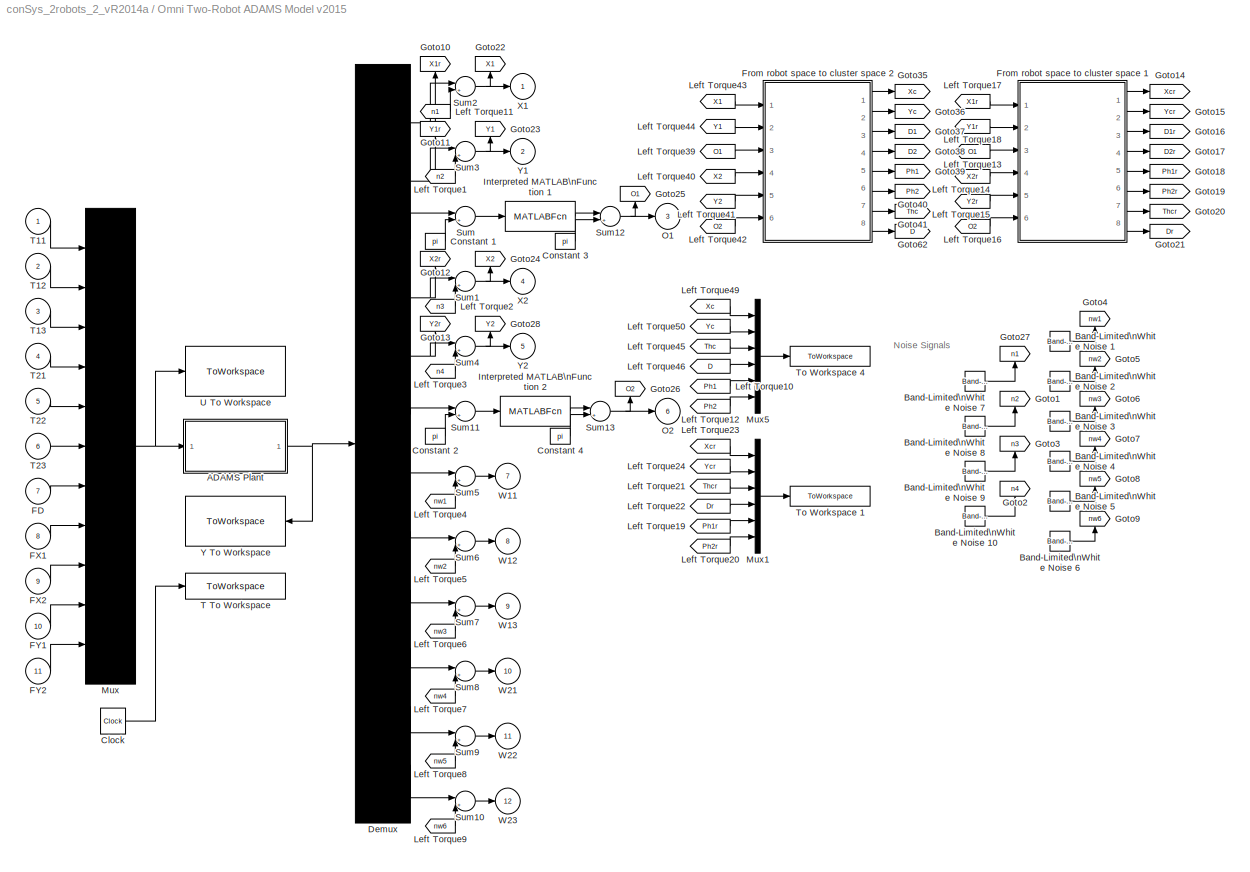
BLOCK [SubSystem] Omni Two-Robot ADAMS Model v2015
  Ports = [11, 12]
  RequestExecContextInheritance = off
  SID = 2376
  ShowPortLabels = none
BLOCK [SubSystem] Omni Two-Robot ADAMS Model v2015/ADAMS Plant
  InitFcn = clear mex
  LoadFcn = %check based on dialog box setting for when setting by popup menu                                             \nif exist('ADAMS_solver_type')                                                                                 \n  if strcmp(ADAMS_solver_type,'C++')                                                                          \n    set_param(gcb,'exetyp','C++');                              ...<+3523ch>
  OpenFcn = open_system(gcb,'mask')                                                                                                                          \nif not(exist('set_some_params_states'))                                                                                                          \n                                                                                                          ...<+634ch>
  Ports = [1, 1]
  RequestExecContextInheritance = off
  SID = 4109
BLOCK [Inport] Omni Two-Robot ADAMS Model v2015/ADAMS Plant/ADAMS inputs
  IconDisplay = Port number
  SID = 4110
BLOCK [Outport] Omni Two-Robot ADAMS Model v2015/ADAMS Plant/ADAMS outputs
  IconDisplay = Port number
  InitialOutput = 0
  SID = 4112
BLOCK [S-Function] Omni Two-Robot ADAMS Model v2015/ADAMS Plant/S-Function
  EnableBusSupport = off
  FunctionName = adams_plant
  Parameters = exevie,exesol,stat,outfil,nampre,o_rate,nam_in,namout,dft,modsim,modani,dt_out,inicmd,exetyp,comtyp,ada_host, workdir,pin_interp_order,pout_extrap_order,pin_extrap_order,pout_interp_order,simulink_lead_cosim
  Ports = [1, 1]
  SID = 4111
  StopFcn = clear mex
BLOCK [Reference] Omni Two-Robot ADAMS Model v2015/Band-Limited\nWhite Noise 1  REF=simulink/Sources/Band-Limited\nWhite Noise
  Cov = [0.001]
  Ports = [0, 1]
  SID = 2994
  SourceBlock = simulink/Sources/Band-Limited\nWhite Noise
  SourceType = Band-Limited White Noise.
  Ts = Ts
  VectorParams1D = on
  seed = [23341]
BLOCK [Reference] Omni Two-Robot ADAMS Model v2015/Band-Limited\nWhite Noise 10  REF=simulink/Sources/Band-Limited\nWhite Noise
  Cov = [0.4]
  Ports = [0, 1]
  SID = 3102
  SourceBlock = simulink/Sources/Band-Limited\nWhite Noise
  SourceType = Band-Limited White Noise.
  Ts = Ts
  VectorParams1D = on
  seed = [23341]
BLOCK [Reference] Omni Two-Robot ADAMS Model v2015/Band-Limited\nWhite Noise 2  REF=simulink/Sources/Band-Limited\nWhite Noise
  Cov = [0.001]
  Ports = [0, 1]
  SID = 2995
  SourceBlock = simulink/Sources/Band-Limited\nWhite Noise
  SourceType = Band-Limited White Noise.
  Ts = Ts
  VectorParams1D = on
  seed = [23341]
BLOCK [Reference] Omni Two-Robot ADAMS Model v2015/Band-Limited\nWhite Noise 3  REF=simulink/Sources/Band-Limited\nWhite Noise
  Cov = [0.001]
  Ports = [0, 1]
  SID = 2996
  SourceBlock = simulink/Sources/Band-Limited\nWhite Noise
  SourceType = Band-Limited White Noise.
  Ts = Ts
  VectorParams1D = on
  seed = [23341]
BLOCK [Reference] Omni Two-Robot ADAMS Model v2015/Band-Limited\nWhite Noise 4  REF=simulink/Sources/Band-Limited\nWhite Noise
  Cov = [0.001]
  Ports = [0, 1]
  SID = 2997
  SourceBlock = simulink/Sources/Band-Limited\nWhite Noise
  SourceType = Band-Limited White Noise.
  Ts = Ts
  VectorParams1D = on
  seed = [23341]
BLOCK [Reference] Omni Two-Robot ADAMS Model v2015/Band-Limited\nWhite Noise 5  REF=simulink/Sources/Band-Limited\nWhite Noise
  Cov = [0.001]
  Ports = [0, 1]
  SID = 2998
  SourceBlock = simulink/Sources/Band-Limited\nWhite Noise
  SourceType = Band-Limited White Noise.
  Ts = Ts
  VectorParams1D = on
  seed = [23341]
BLOCK [Reference] Omni Two-Robot ADAMS Model v2015/Band-Limited\nWhite Noise 6  REF=simulink/Sources/Band-Limited\nWhite Noise
  Cov = [0.001]
  Ports = [0, 1]
  SID = 2999
  SourceBlock = simulink/Sources/Band-Limited\nWhite Noise
  SourceType = Band-Limited White Noise.
  Ts = Ts
  VectorParams1D = on
  seed = [23341]
BLOCK [Reference] Omni Two-Robot ADAMS Model v2015/Band-Limited\nWhite Noise 7  REF=simulink/Sources/Band-Limited\nWhite Noise
  Cov = [0.4]
  Ports = [0, 1]
  SID = 3099
  SourceBlock = simulink/Sources/Band-Limited\nWhite Noise
  SourceType = Band-Limited White Noise.
  Ts = Ts
  VectorParams1D = on
  seed = [23341]
BLOCK [Reference] Omni Two-Robot ADAMS Model v2015/Band-Limited\nWhite Noise 8  REF=simulink/Sources/Band-Limited\nWhite Noise
  Cov = [0.4]
  Ports = [0, 1]
  SID = 3100
  SourceBlock = simulink/Sources/Band-Limited\nWhite Noise
  SourceType = Band-Limited White Noise.
  Ts = Ts
  VectorParams1D = on
  seed = [23341]
BLOCK [Reference] Omni Two-Robot ADAMS Model v2015/Band-Limited\nWhite Noise 9  REF=simulink/Sources/Band-Limited\nWhite Noise
  Cov = [0.4]
  Ports = [0, 1]
  SID = 3101
  SourceBlock = simulink/Sources/Band-Limited\nWhite Noise
  SourceType = Band-Limited White Noise.
  Ts = Ts
  VectorParams1D = on
  seed = [23341]
BLOCK [Clock] Omni Two-Robot ADAMS Model v2015/Clock
  SID = 4113
BLOCK [Constant] Omni Two-Robot ADAMS Model v2015/Constant 1
  SID = 3760
  Value = pi
BLOCK [Constant] Omni Two-Robot ADAMS Model v2015/Constant 2
  SID = 3764
  Value = pi
BLOCK [Constant] Omni Two-Robot ADAMS Model v2015/Constant 3
  SID = 3766
  Value = pi
BLOCK [Constant] Omni Two-Robot ADAMS Model v2015/Constant 4
  SID = 3768
  Value = pi
BLOCK [Demux] Omni Two-Robot ADAMS Model v2015/Demux
  Outputs = 12
  Ports = [1, 12]
  SID = 4114
BLOCK [Inport] Omni Two-Robot ADAMS Model v2015/FD
  IconDisplay = Port number
  Port = 7
  SID = 2383
BLOCK [Inport] Omni Two-Robot ADAMS Model v2015/FX1
  IconDisplay = Port number
  Port = 8
  SID = 2384
BLOCK [Inport] Omni Two-Robot ADAMS Model v2015/FX2
  IconDisplay = Port number
  Port = 9
  SID = 2385
BLOCK [Inport] Omni Two-Robot ADAMS Model v2015/FY1
  IconDisplay = Port number
  Port = 10
  SID = 2386
BLOCK [Inport] Omni Two-Robot ADAMS Model v2015/FY2
  IconDisplay = Port number
  Port = 11
  SID = 2387
BLOCK [SubSystem] Omni Two-Robot ADAMS Model v2015/From robot space to cluster space 1
  Ports = [6, 8]
  RequestExecContextInheritance = off
  SID = 3996
BLOCK [Outport] Omni Two-Robot ADAMS Model v2015/From robot space to cluster space 1/D
  IconDisplay = Port number
  Port = 8
  SID = 4079
BLOCK [Outport] Omni Two-Robot ADAMS Model v2015/From robot space to cluster space 1/D1
  IconDisplay = Port number
  Port = 3
  SID = 4074
BLOCK [Outport] Omni Two-Robot ADAMS Model v2015/From robot space to cluster space 1/D2
  IconDisplay = Port number
  Port = 4
  SID = 4075
BLOCK [Fcn] Omni Two-Robot ADAMS Model v2015/From robot space to cluster space 1/Fcn 1
  Expr = (u(1)+u(2))/2
  SID = 4003
BLOCK [Fcn] Omni Two-Robot ADAMS Model v2015/From robot space to cluster space 1/Fcn 2
  Expr = (u(1)+u(2))/2
  SID = 4004
BLOCK [Fcn] Omni Two-Robot ADAMS Model v2015/From robot space to cluster space 1/Fcn 3
  Expr = u(1)-u(2)
  SID = 4005
BLOCK [Fcn] Omni Two-Robot ADAMS Model v2015/From robot space to cluster space 1/Fcn 4
  Expr = u(3)-u(4)
  SID = 4006
BLOCK [Fcn] Omni Two-Robot ADAMS Model v2015/From robot space to cluster space 1/Fcn 5
  Expr = sqrt((u(1)-u(2))^2 + (u(3)-u(4))^2)/2
  SID = 4007
BLOCK [Fcn] Omni Two-Robot ADAMS Model v2015/From robot space to cluster space 1/Fcn 6
  Expr = u(1)-u(2)
  SID = 4008
BLOCK [Fcn] Omni Two-Robot ADAMS Model v2015/From robot space to cluster space 1/Fcn 7
  Expr = u(1)-u(2)
  SID = 4009
BLOCK [Fcn] Omni Two-Robot ADAMS Model v2015/From robot space to cluster space 1/Fcn 8
  Expr = u(1) - u(2)
  SID = 4010
BLOCK [Fcn] Omni Two-Robot ADAMS Model v2015/From robot space to cluster space 1/Fcn 9
  Expr = u(1) - u(2)
  SID = 4011
BLOCK [Goto] Omni Two-Robot ADAMS Model v2015/From robot space to cluster space 1/Goto1
  GotoTag = xc
  SID = 4012
BLOCK [Goto] Omni Two-Robot ADAMS Model v2015/From robot space to cluster space 1/Goto10
  GotoTag = d2
  SID = 4013
BLOCK [Goto] Omni Two-Robot ADAMS Model v2015/From robot space to cluster space 1/Goto17
  GotoTag = th1
  SID = 4014
BLOCK [Goto] Omni Two-Robot ADAMS Model v2015/From robot space to cluster space 1/Goto18
  GotoTag = x2
  SID = 4015
BLOCK [Goto] Omni Two-Robot ADAMS Model v2015/From robot space to cluster space 1/Goto19
  GotoTag = y2
  SID = 4016
BLOCK [Goto] Omni Two-Robot ADAMS Model v2015/From robot space to cluster space 1/Goto2
  GotoTag = y1
  SID = 4017
BLOCK [Goto] Omni Two-Robot ADAMS Model v2015/From robot space to cluster space 1/Goto20
  GotoTag = x1
  SID = 4018
BLOCK [Goto] Omni Two-Robot ADAMS Model v2015/From robot space to cluster space 1/Goto3
  GotoTag = th2
  SID = 4019
BLOCK [Goto] Omni Two-Robot ADAMS Model v2015/From robot space to cluster space 1/Goto4
  GotoTag = yc
  SID = 4020
BLOCK [Goto] Omni Two-Robot ADAMS Model v2015/From robot space to cluster space 1/Goto5
  GotoTag = thc
  SID = 4021
BLOCK [Goto] Omni Two-Robot ADAMS Model v2015/From robot space to cluster space 1/Goto6
  GotoTag = d
  SID = 4022
BLOCK [Goto] Omni Two-Robot ADAMS Model v2015/From robot space to cluster space 1/Goto7
  GotoTag = ph1
  SID = 4023
BLOCK [Goto] Omni Two-Robot ADAMS Model v2015/From robot space to cluster space 1/Goto8
  GotoTag = ph2
  SID = 4024
BLOCK [Goto] Omni Two-Robot ADAMS Model v2015/From robot space to cluster space 1/Goto9
  GotoTag = d1
  SID = 4025
BLOCK [MATLABFcn] Omni Two-Robot ADAMS Model v2015/From robot space to cluster space 1/Interpreted MATLAB\nFunction 1
  MATLABFcn = absoluteAngle07_vR2014a(u)
  Ports = [1, 1]
  SID = 4026
  SampleTime = Ts
BLOCK [From] Omni Two-Robot ADAMS Model v2015/From robot space to cluster space 1/Left Torque1
  GotoTag = thc
  SID = 4027
BLOCK [From] Omni Two-Robot ADAMS Model v2015/From robot space to cluster space 1/Left Torque10
  GotoTag = y2
  SID = 4028
BLOCK [From] Omni Two-Robot ADAMS Model v2015/From robot space to cluster space 1/Left Torque11
  GotoTag = y1
  SID = 4029
BLOCK [From] Omni Two-Robot ADAMS Model v2015/From robot space to cluster space 1/Left Torque12
  GotoTag = thc
  SID = 4030
BLOCK [From] Omni Two-Robot ADAMS Model v2015/From robot space to cluster space 1/Left Torque13
  GotoTag = th1
  SID = 4031
BLOCK [From] Omni Two-Robot ADAMS Model v2015/From robot space to cluster space 1/Left Torque14
  GotoTag = y2
  SID = 4032
BLOCK [From] Omni Two-Robot ADAMS Model v2015/From robot space to cluster space 1/Left Torque15
  GotoTag = y1
  SID = 4033
BLOCK [From] Omni Two-Robot ADAMS Model v2015/From robot space to cluster space 1/Left Torque16
  GotoTag = th2
  SID = 4034
BLOCK [From] Omni Two-Robot ADAMS Model v2015/From robot space to cluster space 1/Left Torque17
  GotoTag = xc
  SID = 4035
BLOCK [From] Omni Two-Robot ADAMS Model v2015/From robot space to cluster space 1/Left Torque18
  GotoTag = yc
  SID = 4036
BLOCK [From] Omni Two-Robot ADAMS Model v2015/From robot space to cluster space 1/Left Torque19
  GotoTag = d1
  SID = 4037
BLOCK [From] Omni Two-Robot ADAMS Model v2015/From robot space to cluster space 1/Left Torque2
  GotoTag = x2
  SID = 4038
BLOCK [From] Omni Two-Robot ADAMS Model v2015/From robot space to cluster space 1/Left Torque20
  GotoTag = d2
  SID = 4039
BLOCK [From] Omni Two-Robot ADAMS Model v2015/From robot space to cluster space 1/Left Torque21
  GotoTag = ph1
  SID = 4040
BLOCK [From] Omni Two-Robot ADAMS Model v2015/From robot space to cluster space 1/Left Torque22
  GotoTag = ph2
  SID = 4041
BLOCK [From] Omni Two-Robot ADAMS Model v2015/From robot space to cluster space 1/Left Torque23
  GotoTag = x2
  SID = 4042
BLOCK [From] Omni Two-Robot ADAMS Model v2015/From robot space to cluster space 1/Left Torque24
  GotoTag = xc
  SID = 4043
BLOCK [From] Omni Two-Robot ADAMS Model v2015/From robot space to cluster space 1/Left Torque25
  GotoTag = y2
  SID = 4044
BLOCK [From] Omni Two-Robot ADAMS Model v2015/From robot space to cluster space 1/Left Torque26
  GotoTag = yc
  SID = 4045
BLOCK [From] Omni Two-Robot ADAMS Model v2015/From robot space to cluster space 1/Left Torque27
  GotoTag = thc
  SID = 4046
BLOCK [From] Omni Two-Robot ADAMS Model v2015/From robot space to cluster space 1/Left Torque28
  GotoTag = d
  SID = 4047
BLOCK [From] Omni Two-Robot ADAMS Model v2015/From robot space to cluster space 1/Left Torque3
  GotoTag = x1
  SID = 4048
BLOCK [From] Omni Two-Robot ADAMS Model v2015/From robot space to cluster space 1/Left Torque4
  GotoTag = x2
  SID = 4049
BLOCK [From] Omni Two-Robot ADAMS Model v2015/From robot space to cluster space 1/Left Torque5
  GotoTag = x1
  SID = 4050
BLOCK [From] Omni Two-Robot ADAMS Model v2015/From robot space to cluster space 1/Left Torque6
  GotoTag = y2
  SID = 4051
BLOCK [From] Omni Two-Robot ADAMS Model v2015/From robot space to cluster space 1/Left Torque7
  GotoTag = y1
  SID = 4052
BLOCK [From] Omni Two-Robot ADAMS Model v2015/From robot space to cluster space 1/Left Torque8
  GotoTag = x2
  SID = 4053
BLOCK [From] Omni Two-Robot ADAMS Model v2015/From robot space to cluster space 1/Left Torque9
  GotoTag = x1
  SID = 4054
BLOCK [Mux] Omni Two-Robot ADAMS Model v2015/From robot space to cluster space 1/Mux1
  DisplayOption = bar
  Inputs = 2
  Ports = [2, 1]
  SID = 4055
BLOCK [Mux] Omni Two-Robot ADAMS Model v2015/From robot space to cluster space 1/Mux2
  DisplayOption = bar
  Ports = [4, 1]
  SID = 4056
BLOCK [Mux] Omni Two-Robot ADAMS Model v2015/From robot space to cluster space 1/Mux3
  DisplayOption = bar
  Inputs = 2
  Ports = [2, 1]
  SID = 4057
BLOCK [Mux] Omni Two-Robot ADAMS Model v2015/From robot space to cluster space 1/Mux4
  DisplayOption = bar
  Ports = [4, 1]
  SID = 4058
BLOCK [Mux] Omni Two-Robot ADAMS Model v2015/From robot space to cluster space 1/Mux5
  DisplayOption = bar
  Inputs = 2
  Ports = [2, 1]
  SID = 4059
BLOCK [Mux] Omni Two-Robot ADAMS Model v2015/From robot space to cluster space 1/Mux6
  DisplayOption = bar
  Inputs = 2
  Ports = [2, 1]
  SID = 4060
BLOCK [Mux] Omni Two-Robot ADAMS Model v2015/From robot space to cluster space 1/Mux7
  DisplayOption = bar
  Inputs = 2
  Ports = [2, 1]
  SID = 4061
BLOCK [Mux] Omni Two-Robot ADAMS Model v2015/From robot space to cluster space 1/Mux8
  DisplayOption = bar
  Inputs = 2
  Ports = [2, 1]
  SID = 4062
BLOCK [Outport] Omni Two-Robot ADAMS Model v2015/From robot space to cluster space 1/Phi_1
  IconDisplay = Port number
  Port = 5
  SID = 4076
BLOCK [Outport] Omni Two-Robot ADAMS Model v2015/From robot space to cluster space 1/Phi_2
  IconDisplay = Port number
  Port = 6
  SID = 4077
BLOCK [Scope] Omni Two-Robot ADAMS Model v2015/From robot space to cluster space 1/Right Angular Velocity1
  Floating = off
  LimitDataPoints = off
  NumInputPorts = 1
  Ports = [1]
  SID = 4063
  SaveName = ScopeData38
  ShowLegends = off
  YMax = 2600
  YMin = 2400
  ZoomMode = xonly
BLOCK [Scope] Omni Two-Robot ADAMS Model v2015/From robot space to cluster space 1/Right Angular Velocity2
  Floating = off
  LimitDataPoints = off
  NumInputPorts = 1
  Ports = [1]
  SID = 4064
  SaveName = ScopeData36
  ShowLegends = off
  YMax = 2600
  YMin = 2400
  ZoomMode = xonly
BLOCK [Scope] Omni Two-Robot ADAMS Model v2015/From robot space to cluster space 1/Right Angular Velocity3
  Floating = off
  LimitDataPoints = off
  NumInputPorts = 1
  Ports = [1]
  SID = 4065
  SaveName = ScopeData48
  ShowLegends = off
  YMax = 2600
  YMin = 2400
  ZoomMode = xonly
BLOCK [Scope] Omni Two-Robot ADAMS Model v2015/From robot space to cluster space 1/Right Angular Velocity4
  Floating = off
  LimitDataPoints = off
  NumInputPorts = 1
  Ports = [1]
  SID = 4066
  SaveName = ScopeData49
  ShowLegends = off
  YMax = 700
  YMin = 0
  ZoomMode = xonly
BLOCK [Scope] Omni Two-Robot ADAMS Model v2015/From robot space to cluster space 1/Right Angular Velocity5
  Floating = off
  LimitDataPoints = off
  NumInputPorts = 1
  Ports = [1]
  SID = 4067
  SaveName = ScopeData50
  ShowLegends = off
  YMax = 2600
  YMin = 2400
  ZoomMode = xonly
BLOCK [Scope] Omni Two-Robot ADAMS Model v2015/From robot space to cluster space 1/Right Angular Velocity6
  Floating = off
  LimitDataPoints = off
  NumInputPorts = 1
  Ports = [1]
  SID = 4068
  SaveName = ScopeData51
  ShowLegends = off
  YMax = 2600
  YMin = 2400
  ZoomMode = yonly
BLOCK [Scope] Omni Two-Robot ADAMS Model v2015/From robot space to cluster space 1/Right Angular Velocity7
  Floating = off
  LimitDataPoints = off
  NumInputPorts = 1
  Ports = [1]
  SID = 4069
  SaveName = ScopeData80
  ShowLegends = off
  YMax = 10
  YMin = -10
  ZoomMode = yonly
BLOCK [Scope] Omni Two-Robot ADAMS Model v2015/From robot space to cluster space 1/Right Angular Velocity8
  Floating = off
  LimitDataPoints = off
  NumInputPorts = 1
  Ports = [1]
  SID = 4070
  SaveName = ScopeData85
  ShowLegends = off
  YMax = 1392.5
  YMin = 1350
  ZoomMode = yonly
BLOCK [Outport] Omni Two-Robot ADAMS Model v2015/From robot space to cluster space 1/Theta_c
  IconDisplay = Port number
  Port = 7
  SID = 4078
BLOCK [Trigonometry] Omni Two-Robot ADAMS Model v2015/From robot space to cluster space 1/Trigonometric\nFunction 3
  Operator = atan2
  Ports = [2, 1]
  SID = 4071
BLOCK [Outport] Omni Two-Robot ADAMS Model v2015/From robot space to cluster space 1/X_c
  IconDisplay = Port number
  SID = 4072
BLOCK [Outport] Omni Two-Robot ADAMS Model v2015/From robot space to cluster space 1/Y_c
  IconDisplay = Port number
  Port = 2
  SID = 4073
BLOCK [Inport] Omni Two-Robot ADAMS Model v2015/From robot space to cluster space 1/th_1
  IconDisplay = Port number
  Port = 3
  SID = 3999
BLOCK [Inport] Omni Two-Robot ADAMS Model v2015/From robot space to cluster space 1/th_2
  IconDisplay = Port number
  Port = 6
  SID = 4002
BLOCK [Inport] Omni Two-Robot ADAMS Model v2015/From robot space to cluster space 1/x_1
  IconDisplay = Port number
  SID = 3997
BLOCK [Inport] Omni Two-Robot ADAMS Model v2015/From robot space to cluster space 1/x_2
  IconDisplay = Port number
  Port = 4
  SID = 4000
BLOCK [Inport] Omni Two-Robot ADAMS Model v2015/From robot space to cluster space 1/y_1
  IconDisplay = Port number
  Port = 2
  SID = 3998
BLOCK [Inport] Omni Two-Robot ADAMS Model v2015/From robot space to cluster space 1/y_2
  IconDisplay = Port number
  Port = 5
  SID = 4001
BLOCK [SubSystem] Omni Two-Robot ADAMS Model v2015/From robot space to cluster space 2
  Ports = [6, 8]
  RequestExecContextInheritance = off
  SID = 3896
BLOCK [Outport] Omni Two-Robot ADAMS Model v2015/From robot space to cluster space 2/D
  IconDisplay = Port number
  Port = 8
  SID = 3979
BLOCK [Outport] Omni Two-Robot ADAMS Model v2015/From robot space to cluster space 2/D1
  IconDisplay = Port number
  Port = 3
  SID = 3974
BLOCK [Outport] Omni Two-Robot ADAMS Model v2015/From robot space to cluster space 2/D2
  IconDisplay = Port number
  Port = 4
  SID = 3975
BLOCK [Fcn] Omni Two-Robot ADAMS Model v2015/From robot space to cluster space 2/Fcn 1
  Expr = (u(1)+u(2))/2
  SID = 3903
BLOCK [Fcn] Omni Two-Robot ADAMS Model v2015/From robot space to cluster space 2/Fcn 2
  Expr = (u(1)+u(2))/2
  SID = 3904
BLOCK [Fcn] Omni Two-Robot ADAMS Model v2015/From robot space to cluster space 2/Fcn 3
  Expr = u(1)-u(2)
  SID = 3905
BLOCK [Fcn] Omni Two-Robot ADAMS Model v2015/From robot space to cluster space 2/Fcn 4
  Expr = u(3)-u(4)
  SID = 3906
BLOCK [Fcn] Omni Two-Robot ADAMS Model v2015/From robot space to cluster space 2/Fcn 5
  Expr = sqrt((u(1)-u(2))^2 + (u(3)-u(4))^2)/2
  SID = 3907
BLOCK [Fcn] Omni Two-Robot ADAMS Model v2015/From robot space to cluster space 2/Fcn 6
  Expr = u(1)-u(2)
  SID = 3908
BLOCK [Fcn] Omni Two-Robot ADAMS Model v2015/From robot space to cluster space 2/Fcn 7
  Expr = u(1)-u(2)
  SID = 3909
BLOCK [Fcn] Omni Two-Robot ADAMS Model v2015/From robot space to cluster space 2/Fcn 8
  Expr = u(1) - u(2)
  SID = 3910
BLOCK [Fcn] Omni Two-Robot ADAMS Model v2015/From robot space to cluster space 2/Fcn 9
  Expr = u(1) - u(2)
  SID = 3911
BLOCK [Goto] Omni Two-Robot ADAMS Model v2015/From robot space to cluster space 2/Goto1
  GotoTag = xc
  SID = 3912
BLOCK [Goto] Omni Two-Robot ADAMS Model v2015/From robot space to cluster space 2/Goto10
  GotoTag = d2
  SID = 3913
BLOCK [Goto] Omni Two-Robot ADAMS Model v2015/From robot space to cluster space 2/Goto17
  GotoTag = th1
  SID = 3914
BLOCK [Goto] Omni Two-Robot ADAMS Model v2015/From robot space to cluster space 2/Goto18
  GotoTag = x2
  SID = 3915
BLOCK [Goto] Omni Two-Robot ADAMS Model v2015/From robot space to cluster space 2/Goto19
  GotoTag = y2
  SID = 3916
BLOCK [Goto] Omni Two-Robot ADAMS Model v2015/From robot space to cluster space 2/Goto2
  GotoTag = y1
  SID = 3917
BLOCK [Goto] Omni Two-Robot ADAMS Model v2015/From robot space to cluster space 2/Goto20
  GotoTag = x1
  SID = 3918
BLOCK [Goto] Omni Two-Robot ADAMS Model v2015/From robot space to cluster space 2/Goto3
  GotoTag = th2
  SID = 3919
BLOCK [Goto] Omni Two-Robot ADAMS Model v2015/From robot space to cluster space 2/Goto4
  GotoTag = yc
  SID = 3920
BLOCK [Goto] Omni Two-Robot ADAMS Model v2015/From robot space to cluster space 2/Goto5
  GotoTag = thc
  SID = 3921
BLOCK [Goto] Omni Two-Robot ADAMS Model v2015/From robot space to cluster space 2/Goto6
  GotoTag = d
  SID = 3922
BLOCK [Goto] Omni Two-Robot ADAMS Model v2015/From robot space to cluster space 2/Goto7
  GotoTag = ph1
  SID = 3923
BLOCK [Goto] Omni Two-Robot ADAMS Model v2015/From robot space to cluster space 2/Goto8
  GotoTag = ph2
  SID = 3924
BLOCK [Goto] Omni Two-Robot ADAMS Model v2015/From robot space to cluster space 2/Goto9
  GotoTag = d1
  SID = 3925
BLOCK [MATLABFcn] Omni Two-Robot ADAMS Model v2015/From robot space to cluster space 2/Interpreted MATLAB\nFunction 1
  MATLABFcn = absoluteAngle06_vR2014a(u)
  Ports = [1, 1]
  SID = 3926
  SampleTime = Ts
BLOCK [From] Omni Two-Robot ADAMS Model v2015/From robot space to cluster space 2/Left Torque1
  GotoTag = thc
  SID = 3927
BLOCK [From] Omni Two-Robot ADAMS Model v2015/From robot space to cluster space 2/Left Torque10
  GotoTag = y2
  SID = 3928
BLOCK [From] Omni Two-Robot ADAMS Model v2015/From robot space to cluster space 2/Left Torque11
  GotoTag = y1
  SID = 3929
BLOCK [From] Omni Two-Robot ADAMS Model v2015/From robot space to cluster space 2/Left Torque12
  GotoTag = thc
  SID = 3930
BLOCK [From] Omni Two-Robot ADAMS Model v2015/From robot space to cluster space 2/Left Torque13
  GotoTag = th1
  SID = 3931
BLOCK [From] Omni Two-Robot ADAMS Model v2015/From robot space to cluster space 2/Left Torque14
  GotoTag = y2
  SID = 3932
BLOCK [From] Omni Two-Robot ADAMS Model v2015/From robot space to cluster space 2/Left Torque15
  GotoTag = y1
  SID = 3933
BLOCK [From] Omni Two-Robot ADAMS Model v2015/From robot space to cluster space 2/Left Torque16
  GotoTag = th2
  SID = 3934
BLOCK [From] Omni Two-Robot ADAMS Model v2015/From robot space to cluster space 2/Left Torque17
  GotoTag = xc
  SID = 3935
BLOCK [From] Omni Two-Robot ADAMS Model v2015/From robot space to cluster space 2/Left Torque18
  GotoTag = yc
  SID = 3936
BLOCK [From] Omni Two-Robot ADAMS Model v2015/From robot space to cluster space 2/Left Torque19
  GotoTag = d1
  SID = 3937
BLOCK [From] Omni Two-Robot ADAMS Model v2015/From robot space to cluster space 2/Left Torque2
  GotoTag = x2
  SID = 3938
BLOCK [From] Omni Two-Robot ADAMS Model v2015/From robot space to cluster space 2/Left Torque20
  GotoTag = d2
  SID = 3939
BLOCK [From] Omni Two-Robot ADAMS Model v2015/From robot space to cluster space 2/Left Torque21
  GotoTag = ph1
  SID = 3940
BLOCK [From] Omni Two-Robot ADAMS Model v2015/From robot space to cluster space 2/Left Torque22
  GotoTag = ph2
  SID = 3941
BLOCK [From] Omni Two-Robot ADAMS Model v2015/From robot space to cluster space 2/Left Torque23
  GotoTag = x2
  SID = 3942
BLOCK [From] Omni Two-Robot ADAMS Model v2015/From robot space to cluster space 2/Left Torque24
  GotoTag = xc
  SID = 3943
BLOCK [From] Omni Two-Robot ADAMS Model v2015/From robot space to cluster space 2/Left Torque25
  GotoTag = y2
  SID = 3944
BLOCK [From] Omni Two-Robot ADAMS Model v2015/From robot space to cluster space 2/Left Torque26
  GotoTag = yc
  SID = 3945
BLOCK [From] Omni Two-Robot ADAMS Model v2015/From robot space to cluster space 2/Left Torque27
  GotoTag = thc
  SID = 3946
BLOCK [From] Omni Two-Robot ADAMS Model v2015/From robot space to cluster space 2/Left Torque28
  GotoTag = d
  SID = 3947
BLOCK [From] Omni Two-Robot ADAMS Model v2015/From robot space to cluster space 2/Left Torque3
  GotoTag = x1
  SID = 3948
BLOCK [From] Omni Two-Robot ADAMS Model v2015/From robot space to cluster space 2/Left Torque4
  GotoTag = x2
  SID = 3949
BLOCK [From] Omni Two-Robot ADAMS Model v2015/From robot space to cluster space 2/Left Torque5
  GotoTag = x1
  SID = 3950
BLOCK [From] Omni Two-Robot ADAMS Model v2015/From robot space to cluster space 2/Left Torque6
  GotoTag = y2
  SID = 3951
BLOCK [From] Omni Two-Robot ADAMS Model v2015/From robot space to cluster space 2/Left Torque7
  GotoTag = y1
  SID = 3952
BLOCK [From] Omni Two-Robot ADAMS Model v2015/From robot space to cluster space 2/Left Torque8
  GotoTag = x2
  SID = 3953
BLOCK [From] Omni Two-Robot ADAMS Model v2015/From robot space to cluster space 2/Left Torque9
  GotoTag = x1
  SID = 3954
BLOCK [Mux] Omni Two-Robot ADAMS Model v2015/From robot space to cluster space 2/Mux1
  DisplayOption = bar
  Inputs = 2
  Ports = [2, 1]
  SID = 3955
BLOCK [Mux] Omni Two-Robot ADAMS Model v2015/From robot space to cluster space 2/Mux2
  DisplayOption = bar
  Ports = [4, 1]
  SID = 3956
BLOCK [Mux] Omni Two-Robot ADAMS Model v2015/From robot space to cluster space 2/Mux3
  DisplayOption = bar
  Inputs = 2
  Ports = [2, 1]
  SID = 3957
BLOCK [Mux] Omni Two-Robot ADAMS Model v2015/From robot space to cluster space 2/Mux4
  DisplayOption = bar
  Ports = [4, 1]
  SID = 3958
BLOCK [Mux] Omni Two-Robot ADAMS Model v2015/From robot space to cluster space 2/Mux5
  DisplayOption = bar
  Inputs = 2
  Ports = [2, 1]
  SID = 3959
BLOCK [Mux] Omni Two-Robot ADAMS Model v2015/From robot space to cluster space 2/Mux6
  DisplayOption = bar
  Inputs = 2
  Ports = [2, 1]
  SID = 3960
BLOCK [Mux] Omni Two-Robot ADAMS Model v2015/From robot space to cluster space 2/Mux7
  DisplayOption = bar
  Inputs = 2
  Ports = [2, 1]
  SID = 3961
BLOCK [Mux] Omni Two-Robot ADAMS Model v2015/From robot space to cluster space 2/Mux8
  DisplayOption = bar
  Inputs = 2
  Ports = [2, 1]
  SID = 3962
BLOCK [Outport] Omni Two-Robot ADAMS Model v2015/From robot space to cluster space 2/Phi_1
  IconDisplay = Port number
  Port = 5
  SID = 3976
BLOCK [Outport] Omni Two-Robot ADAMS Model v2015/From robot space to cluster space 2/Phi_2
  IconDisplay = Port number
  Port = 6
  SID = 3977
BLOCK [Scope] Omni Two-Robot ADAMS Model v2015/From robot space to cluster space 2/Right Angular Velocity1
  Floating = off
  LimitDataPoints = off
  NumInputPorts = 1
  Ports = [1]
  SID = 3963
  SaveName = ScopeData38
  ShowLegends = off
  YMax = 2600
  YMin = 2400
  ZoomMode = xonly
BLOCK [Scope] Omni Two-Robot ADAMS Model v2015/From robot space to cluster space 2/Right Angular Velocity2
  Floating = off
  LimitDataPoints = off
  NumInputPorts = 1
  Ports = [1]
  SID = 3964
  SaveName = ScopeData36
  ShowLegends = off
  YMax = 2600
  YMin = 2400
  ZoomMode = xonly
BLOCK [Scope] Omni Two-Robot ADAMS Model v2015/From robot space to cluster space 2/Right Angular Velocity3
  Floating = off
  LimitDataPoints = off
  NumInputPorts = 1
  Ports = [1]
  SID = 3965
  SaveName = ScopeData48
  ShowLegends = off
  YMax = 2600
  YMin = 2400
  ZoomMode = xonly
BLOCK [Scope] Omni Two-Robot ADAMS Model v2015/From robot space to cluster space 2/Right Angular Velocity4
  Floating = off
  LimitDataPoints = off
  NumInputPorts = 1
  Ports = [1]
  SID = 3966
  SaveName = ScopeData49
  ShowLegends = off
  YMax = 700
  YMin = 0
  ZoomMode = xonly
BLOCK [Scope] Omni Two-Robot ADAMS Model v2015/From robot space to cluster space 2/Right Angular Velocity5
  Floating = off
  LimitDataPoints = off
  NumInputPorts = 1
  Ports = [1]
  SID = 3967
  SaveName = ScopeData50
  ShowLegends = off
  YMax = 2600
  YMin = 2400
  ZoomMode = xonly
BLOCK [Scope] Omni Two-Robot ADAMS Model v2015/From robot space to cluster space 2/Right Angular Velocity6
  Floating = off
  LimitDataPoints = off
  NumInputPorts = 1
  Ports = [1]
  SID = 3968
  SaveName = ScopeData51
  ShowLegends = off
  YMax = 2600
  YMin = 2400
  ZoomMode = yonly
BLOCK [Scope] Omni Two-Robot ADAMS Model v2015/From robot space to cluster space 2/Right Angular Velocity7
  Floating = off
  LimitDataPoints = off
  NumInputPorts = 1
  Ports = [1]
  SID = 3969
  SaveName = ScopeData80
  ShowLegends = off
  YMax = 10
  YMin = -10
  ZoomMode = yonly
BLOCK [Scope] Omni Two-Robot ADAMS Model v2015/From robot space to cluster space 2/Right Angular Velocity8
  Floating = off
  LimitDataPoints = off
  NumInputPorts = 1
  Ports = [1]
  SID = 3970
  SaveName = ScopeData85
  ShowLegends = off
  YMax = 1392.5
  YMin = 1350
  ZoomMode = yonly
BLOCK [Outport] Omni Two-Robot ADAMS Model v2015/From robot space to cluster space 2/Theta_c
  IconDisplay = Port number
  Port = 7
  SID = 3978
BLOCK [Trigonometry] Omni Two-Robot ADAMS Model v2015/From robot space to cluster space 2/Trigonometric\nFunction 3
  Operator = atan2
  Ports = [2, 1]
  SID = 3971
BLOCK [Outport] Omni Two-Robot ADAMS Model v2015/From robot space to cluster space 2/X_c
  IconDisplay = Port number
  SID = 3972
BLOCK [Outport] Omni Two-Robot ADAMS Model v2015/From robot space to cluster space 2/Y_c
  IconDisplay = Port number
  Port = 2
  SID = 3973
BLOCK [Inport] Omni Two-Robot ADAMS Model v2015/From robot space to cluster space 2/th_1
  IconDisplay = Port number
  Port = 3
  SID = 3899
BLOCK [Inport] Omni Two-Robot ADAMS Model v2015/From robot space to cluster space 2/th_2
  IconDisplay = Port number
  Port = 6
  SID = 3902
BLOCK [Inport] Omni Two-Robot ADAMS Model v2015/From robot space to cluster space 2/x_1
  IconDisplay = Port number
  SID = 3897
BLOCK [Inport] Omni Two-Robot ADAMS Model v2015/From robot space to cluster space 2/x_2
  IconDisplay = Port number
  Port = 4
  SID = 3900
BLOCK [Inport] Omni Two-Robot ADAMS Model v2015/From robot space to cluster space 2/y_1
  IconDisplay = Port number
  Port = 2
  SID = 3898
BLOCK [Inport] Omni Two-Robot ADAMS Model v2015/From robot space to cluster space 2/y_2
  IconDisplay = Port number
  Port = 5
  SID = 3901
BLOCK [Goto] Omni Two-Robot ADAMS Model v2015/Goto1
  GotoTag = n2
  SID = 2604
BLOCK [Goto] Omni Two-Robot ADAMS Model v2015/Goto10
  GotoTag = X1r
  SID = 3892
BLOCK [Goto] Omni Two-Robot ADAMS Model v2015/Goto11
  GotoTag = Y1r
  SID = 3893
BLOCK [Goto] Omni Two-Robot ADAMS Model v2015/Goto12
  GotoTag = X2r
  SID = 3894
BLOCK [Goto] Omni Two-Robot ADAMS Model v2015/Goto13
  GotoTag = Y2r
  SID = 3895
BLOCK [Goto] Omni Two-Robot ADAMS Model v2015/Goto14
  GotoTag = Xcr
  SID = 4080
BLOCK [Goto] Omni Two-Robot ADAMS Model v2015/Goto15
  GotoTag = Ycr
  SID = 4081
BLOCK [Goto] Omni Two-Robot ADAMS Model v2015/Goto16
  GotoTag = D1r
  SID = 4082
BLOCK [Goto] Omni Two-Robot ADAMS Model v2015/Goto17
  GotoTag = D2r
  SID = 4083
BLOCK [Goto] Omni Two-Robot ADAMS Model v2015/Goto18
  GotoTag = Ph1r
  SID = 4084
BLOCK [Goto] Omni Two-Robot ADAMS Model v2015/Goto19
  GotoTag = Ph2r
  SID = 4085
BLOCK [Goto] Omni Two-Robot ADAMS Model v2015/Goto2
  GotoTag = n4
  SID = 2606
BLOCK [Goto] Omni Two-Robot ADAMS Model v2015/Goto20
  GotoTag = Thcr
  SID = 4086
BLOCK [Goto] Omni Two-Robot ADAMS Model v2015/Goto21
  GotoTag = Dr
  SID = 4087
BLOCK [Goto] Omni Two-Robot ADAMS Model v2015/Goto22
  GotoTag = X1
  SID = 4102
BLOCK [Goto] Omni Two-Robot ADAMS Model v2015/Goto23
  GotoTag = Y1
  SID = 4103
BLOCK [Goto] Omni Two-Robot ADAMS Model v2015/Goto24
  GotoTag = X2
  SID = 4104
BLOCK [Goto] Omni Two-Robot ADAMS Model v2015/Goto25
  GotoTag = O1
  SID = 4105
BLOCK [Goto] Omni Two-Robot ADAMS Model v2015/Goto26
  GotoTag = O2
  SID = 4106
BLOCK [Goto] Omni Two-Robot ADAMS Model v2015/Goto27
  GotoTag = n1
  SID = 2591
BLOCK [Goto] Omni Two-Robot ADAMS Model v2015/Goto28
  GotoTag = Y2
  SID = 4107
BLOCK [Goto] Omni Two-Robot ADAMS Model v2015/Goto3
  GotoTag = n3
  SID = 2607
BLOCK [Goto] Omni Two-Robot ADAMS Model v2015/Goto35
  GotoTag = Xc
  SID = 3980
BLOCK [Goto] Omni Two-Robot ADAMS Model v2015/Goto36
  GotoTag = Yc
  SID = 3981
BLOCK [Goto] Omni Two-Robot ADAMS Model v2015/Goto37
  GotoTag = D1
  SID = 3982
BLOCK [Goto] Omni Two-Robot ADAMS Model v2015/Goto38
  GotoTag = D2
  SID = 3983
BLOCK [Goto] Omni Two-Robot ADAMS Model v2015/Goto39
  GotoTag = Ph1
  SID = 3984
BLOCK [Goto] Omni Two-Robot ADAMS Model v2015/Goto4
  GotoTag = nw1
  SID = 3000
BLOCK [Goto] Omni Two-Robot ADAMS Model v2015/Goto40
  GotoTag = Ph2
  SID = 3985
BLOCK [Goto] Omni Two-Robot ADAMS Model v2015/Goto41
  GotoTag = Thc
  SID = 3986
BLOCK [Goto] Omni Two-Robot ADAMS Model v2015/Goto5
  GotoTag = nw2
  SID = 3001
BLOCK [Goto] Omni Two-Robot ADAMS Model v2015/Goto6
  GotoTag = nw3
  SID = 3002
BLOCK [Goto] Omni Two-Robot ADAMS Model v2015/Goto62
  GotoTag = D
  SID = 3987
BLOCK [Goto] Omni Two-Robot ADAMS Model v2015/Goto7
  GotoTag = nw4
  SID = 3003
BLOCK [Goto] Omni Two-Robot ADAMS Model v2015/Goto8
  GotoTag = nw5
  SID = 3004
BLOCK [Goto] Omni Two-Robot ADAMS Model v2015/Goto9
  GotoTag = nw6
  SID = 3005
BLOCK [MATLABFcn] Omni Two-Robot ADAMS Model v2015/Interpreted MATLAB\nFunction 1
  MATLABFcn = absoluteAngle04_vR2014a(u)
  Ports = [1, 1]
  SID = 3761
BLOCK [MATLABFcn] Omni Two-Robot ADAMS Model v2015/Interpreted MATLAB\nFunction 2
  MATLABFcn = absoluteAngle05_vR2014a(u)
  Ports = [1, 1]
  SID = 3762
BLOCK [From] Omni Two-Robot ADAMS Model v2015/Left Torque1
  GotoTag = n2
  SID = 2628
BLOCK [From] Omni Two-Robot ADAMS Model v2015/Left Torque10
  GotoTag = Ph1
  SID = 3994
BLOCK [From] Omni Two-Robot ADAMS Model v2015/Left Torque11
  GotoTag = n1
  SID = 2627
BLOCK [From] Omni Two-Robot ADAMS Model v2015/Left Torque12
  GotoTag = Ph2
  SID = 3995
BLOCK [From] Omni Two-Robot ADAMS Model v2015/Left Torque13
  GotoTag = O1
  SID = 4088
BLOCK [From] Omni Two-Robot ADAMS Model v2015/Left Torque14
  GotoTag = X2r
  SID = 4089
BLOCK [From] Omni Two-Robot ADAMS Model v2015/Left Torque15
  GotoTag = Y2r
  SID = 4090
BLOCK [From] Omni Two-Robot ADAMS Model v2015/Left Torque16
  GotoTag = O2
  SID = 4091
BLOCK [From] Omni Two-Robot ADAMS Model v2015/Left Torque17
  GotoTag = X1r
  SID = 4092
BLOCK [From] Omni Two-Robot ADAMS Model v2015/Left Torque18
  GotoTag = Y1r
  SID = 4093
BLOCK [From] Omni Two-Robot ADAMS Model v2015/Left Torque19
  GotoTag = Ph1r
  SID = 4094
BLOCK [From] Omni Two-Robot ADAMS Model v2015/Left Torque2
  GotoTag = n3
  SID = 2629
BLOCK [From] Omni Two-Robot ADAMS Model v2015/Left Torque20
  GotoTag = Ph2r
  SID = 4095
BLOCK [From] Omni Two-Robot ADAMS Model v2015/Left Torque21
  GotoTag = Thcr
  SID = 4096
BLOCK [From] Omni Two-Robot ADAMS Model v2015/Left Torque22
  GotoTag = Dr
  SID = 4097
BLOCK [From] Omni Two-Robot ADAMS Model v2015/Left Torque23
  GotoTag = Xcr
  SID = 4098
BLOCK [From] Omni Two-Robot ADAMS Model v2015/Left Torque24
  GotoTag = Ycr
  SID = 4099
BLOCK [From] Omni Two-Robot ADAMS Model v2015/Left Torque3
  GotoTag = n4
  SID = 2630
BLOCK [From] Omni Two-Robot ADAMS Model v2015/Left Torque39
  GotoTag = O1
  SID = 3988
BLOCK [From] Omni Two-Robot ADAMS Model v2015/Left Torque4
  GotoTag = nw1
  SID = 3006
BLOCK [From] Omni Two-Robot ADAMS Model v2015/Left Torque40
  GotoTag = X2
  SID = 3989
BLOCK [From] Omni Two-Robot ADAMS Model v2015/Left Torque41
  GotoTag = Y2
  SID = 3990
BLOCK [From] Omni Two-Robot ADAMS Model v2015/Left Torque42
  GotoTag = O2
  SID = 3991
BLOCK [From] Omni Two-Robot ADAMS Model v2015/Left Torque43
  GotoTag = X1
  SID = 3992
BLOCK [From] Omni Two-Robot ADAMS Model v2015/Left Torque44
  GotoTag = Y1
  SID = 3993
BLOCK [From] Omni Two-Robot ADAMS Model v2015/Left Torque45
  GotoTag = Thc
  SID = 3885
BLOCK [From] Omni Two-Robot ADAMS Model v2015/Left Torque46
  GotoTag = D
  SID = 3886
BLOCK [From] Omni Two-Robot ADAMS Model v2015/Left Torque49
  GotoTag = Xc
  SID = 3889
BLOCK [From] Omni Two-Robot ADAMS Model v2015/Left Torque5
  GotoTag = nw2
  SID = 3007
BLOCK [From] Omni Two-Robot ADAMS Model v2015/Left Torque50
  GotoTag = Yc
  SID = 3890
BLOCK [From] Omni Two-Robot ADAMS Model v2015/Left Torque6
  GotoTag = nw3
  SID = 3008
BLOCK [From] Omni Two-Robot ADAMS Model v2015/Left Torque7
  GotoTag = nw4
  SID = 3009
BLOCK [From] Omni Two-Robot ADAMS Model v2015/Left Torque8
  GotoTag = nw5
  SID = 3010
BLOCK [From] Omni Two-Robot ADAMS Model v2015/Left Torque9
  GotoTag = nw6
  SID = 3011
BLOCK [Mux] Omni Two-Robot ADAMS Model v2015/Mux
  Inputs = 11
  Ports = [11, 1]
  SID = 4115
BLOCK [Mux] Omni Two-Robot ADAMS Model v2015/Mux1
  DisplayOption = bar
  Inputs = 6
  Ports = [6, 1]
  SID = 4100
BLOCK [Mux] Omni Two-Robot ADAMS Model v2015/Mux5
  DisplayOption = bar
  Inputs = 6
  Ports = [6, 1]
  SID = 3891
BLOCK [Outport] Omni Two-Robot ADAMS Model v2015/O1
  IconDisplay = Port number
  Port = 3
  SID = 2400
BLOCK [Outport] Omni Two-Robot ADAMS Model v2015/O2
  IconDisplay = Port number
  Port = 6
  SID = 2403
BLOCK [Sum] Omni Two-Robot ADAMS Model v2015/Sum
  IconShape = round
  InputSameDT = off
  Inputs = |+-
  OutDataTypeStr = Inherit: Inherit via internal rule
  Ports = [2, 1]
  SID = 3759
  SaturateOnIntegerOverflow = off
BLOCK [Sum] Omni Two-Robot ADAMS Model v2015/Sum1
  IconShape = round
  InputSameDT = off
  Inputs = |++
  OutDataTypeStr = Inherit: Inherit via internal rule
  Ports = [2, 1]
  SID = 2625
  SaturateOnIntegerOverflow = off
BLOCK [Sum] Omni Two-Robot ADAMS Model v2015/Sum10
  IconShape = round
  InputSameDT = off
  Inputs = |++
  OutDataTypeStr = Inherit: Inherit via internal rule
  Ports = [2, 1]
  SID = 3012
  SaturateOnIntegerOverflow = off
BLOCK [Sum] Omni Two-Robot ADAMS Model v2015/Sum11
  IconShape = round
  InputSameDT = off
  Inputs = |+-
  OutDataTypeStr = Inherit: Inherit via internal rule
  Ports = [2, 1]
  SID = 3763
  SaturateOnIntegerOverflow = off
BLOCK [Sum] Omni Two-Robot ADAMS Model v2015/Sum12
  IconShape = round
  InputSameDT = off
  Inputs = |++
  OutDataTypeStr = Inherit: Inherit via internal rule
  Ports = [2, 1]
  SID = 3765
  SaturateOnIntegerOverflow = off
BLOCK [Sum] Omni Two-Robot ADAMS Model v2015/Sum13
  IconShape = round
  InputSameDT = off
  Inputs = |++
  OutDataTypeStr = Inherit: Inherit via internal rule
  Ports = [2, 1]
  SID = 3767
  SaturateOnIntegerOverflow = off
BLOCK [Sum] Omni Two-Robot ADAMS Model v2015/Sum2
  IconShape = round
  InputSameDT = off
  Inputs = |++
  OutDataTypeStr = Inherit: Inherit via internal rule
  Ports = [2, 1]
  SID = 2602
  SaturateOnIntegerOverflow = off
BLOCK [Sum] Omni Two-Robot ADAMS Model v2015/Sum3
  IconShape = round
  InputSameDT = off
  Inputs = |++
  OutDataTypeStr = Inherit: Inherit via internal rule
  Ports = [2, 1]
  SID = 2603
  SaturateOnIntegerOverflow = off
BLOCK [Sum] Omni Two-Robot ADAMS Model v2015/Sum4
  IconShape = round
  InputSameDT = off
  Inputs = |++
  OutDataTypeStr = Inherit: Inherit via internal rule
  Ports = [2, 1]
  SID = 2626
  SaturateOnIntegerOverflow = off
BLOCK [Sum] Omni Two-Robot ADAMS Model v2015/Sum5
  IconShape = round
  InputSameDT = off
  Inputs = |++
  OutDataTypeStr = Inherit: Inherit via internal rule
  Ports = [2, 1]
  SID = 3013
  SaturateOnIntegerOverflow = off
BLOCK [Sum] Omni Two-Robot ADAMS Model v2015/Sum6
  IconShape = round
  InputSameDT = off
  Inputs = |++
  OutDataTypeStr = Inherit: Inherit via internal rule
  Ports = [2, 1]
  SID = 3014
  SaturateOnIntegerOverflow = off
BLOCK [Sum] Omni Two-Robot ADAMS Model v2015/Sum7
  IconShape = round
  InputSameDT = off
  Inputs = |++
  OutDataTypeStr = Inherit: Inherit via internal rule
  Ports = [2, 1]
  SID = 3015
  SaturateOnIntegerOverflow = off
BLOCK [Sum] Omni Two-Robot ADAMS Model v2015/Sum8
  IconShape = round
  InputSameDT = off
  Inputs = |++
  OutDataTypeStr = Inherit: Inherit via internal rule
  Ports = [2, 1]
  SID = 3016
  SaturateOnIntegerOverflow = off
BLOCK [Sum] Omni Two-Robot ADAMS Model v2015/Sum9
  IconShape = round
  InputSameDT = off
  Inputs = |++
  OutDataTypeStr = Inherit: Inherit via internal rule
  Ports = [2, 1]
  SID = 3017
  SaturateOnIntegerOverflow = off
BLOCK [ToWorkspace] Omni Two-Robot ADAMS Model v2015/T To Workspace
  MaxDataPoints = 100000
  Ports = [1]
  SID = 4116
  VariableName = ADAMS_tout1
BLOCK [Inport] Omni Two-Robot ADAMS Model v2015/T11
  IconDisplay = Port number
  SID = 2377
BLOCK [Inport] Omni Two-Robot ADAMS Model v2015/T12
  IconDisplay = Port number
  Port = 2
  SID = 2378
BLOCK [Inport] Omni Two-Robot ADAMS Model v2015/T13
  IconDisplay = Port number
  Port = 3
  SID = 2379
BLOCK [Inport] Omni Two-Robot ADAMS Model v2015/T21
  IconDisplay = Port number
  Port = 4
  SID = 2380
BLOCK [Inport] Omni Two-Robot ADAMS Model v2015/T22
  IconDisplay = Port number
  Port = 5
  SID = 2381
BLOCK [Inport] Omni Two-Robot ADAMS Model v2015/T23
  IconDisplay = Port number
  Port = 6
  SID = 2382
BLOCK [ToWorkspace] Omni Two-Robot ADAMS Model v2015/To Workspace 1
  FixptAsFi = on
  MaxDataPoints = inf
  Ports = [1]
  SID = 4101
  SampleTime = -1
  Save2DSignal = 3-D array (concatenate along third dimension)
  SaveFormat = Structure With Time
  VariableName = cluster_pose_r
BLOCK [ToWorkspace] Omni Two-Robot ADAMS Model v2015/To Workspace 4
  FixptAsFi = on
  MaxDataPoints = inf
  Ports = [1]
  SID = 3778
  SampleTime = -1
  Save2DSignal = 3-D array (concatenate along third dimension)
  SaveFormat = Structure With Time
  VariableName = cluster_pose
BLOCK [ToWorkspace] Omni Two-Robot ADAMS Model v2015/U To Workspace
  MaxDataPoints = 100000
  Ports = [1]
  SID = 4117
  VariableName = ADAMS_uout
BLOCK [Outport] Omni Two-Robot ADAMS Model v2015/W11
  IconDisplay = Port number
  Port = 7
  SID = 2404
BLOCK [Outport] Omni Two-Robot ADAMS Model v2015/W12
  IconDisplay = Port number
  Port = 8
  SID = 2405
BLOCK [Outport] Omni Two-Robot ADAMS Model v2015/W13
  IconDisplay = Port number
  Port = 9
  SID = 2406
BLOCK [Outport] Omni Two-Robot ADAMS Model v2015/W21
  IconDisplay = Port number
  Port = 10
  SID = 2407
BLOCK [Outport] Omni Two-Robot ADAMS Model v2015/W22
  IconDisplay = Port number
  Port = 11
  SID = 2408
BLOCK [Outport] Omni Two-Robot ADAMS Model v2015/W23
  IconDisplay = Port number
  Port = 12
  SID = 2409
BLOCK [Outport] Omni Two-Robot ADAMS Model v2015/X1
  IconDisplay = Port number
  SID = 2398
BLOCK [Outport] Omni Two-Robot ADAMS Model v2015/X2
  IconDisplay = Port number
  Port = 4
  SID = 2401
BLOCK [ToWorkspace] Omni Two-Robot ADAMS Model v2015/Y To Workspace
  MaxDataPoints = 100000
  Ports = [1]
  SID = 4118
  VariableName = ADAMS_yout
BLOCK [Outport] Omni Two-Robot ADAMS Model v2015/Y1
  IconDisplay = Port number
  Port = 2
  SID = 2399
BLOCK [Outport] Omni Two-Robot ADAMS Model v2015/Y2
  IconDisplay = Port number
  Port = 5
  SID = 2402
BLOCK [Scope] Orientation Angle 1
  Floating = off
  LimitDataPoints = off
  NumInputPorts = 1
  Ports = [1]
  SID = 16
  SaveName = ScopeData1
  ShowLegends = off
  YMax = 3
  YMin = -3
BLOCK [Scope] Orientation Angle 2
  Floating = off
  LimitDataPoints = off
  NumInputPorts = 1
  Ports = [1]
  SID = 37
  SaveName = ScopeData12
  ShowLegends = off
  YMax = 3
  YMin = -3
  ZoomMode = yonly
BLOCK [Product] Product 1
  InputSameDT = off
  OutDataTypeStr = Inherit: Inherit via internal rule
  Ports = [2, 1]
  RndMeth = Floor
  SID = 2925
  SaturateOnIntegerOverflow = off
BLOCK [Product] Product 2
  InputSameDT = off
  OutDataTypeStr = Inherit: Inherit via internal rule
  Ports = [2, 1]
  RndMeth = Floor
  SID = 2926
  SaturateOnIntegerOverflow = off
BLOCK [Reference] Robot 1  REF=simulink/Sinks/XY Graph
  Ports = [2]
  SID = 2850
  SourceBlock = simulink/Sinks/XY Graph
  SourceType = XY scope.
  st = -1
  xmax = 20000
  xmin = 0
  ymax = 20000
  ymin = 0
BLOCK [Reference] Robot 2  REF=simulink/Sinks/XY Graph
  Ports = [2]
  SID = 2851
  SourceBlock = simulink/Sinks/XY Graph
  SourceType = XY scope.
  st = -1
  xmax = 20000
  xmin = 0
  ymax = 20000
  ymin = 0
BLOCK [Scope] Scope 25
  Floating = off
  LimitDataPoints = off
  NumInputPorts = 1
  Ports = [1]
  SID = 2932
  SaveName = ScopeData36
  ShowLegends = off
  YMax = 6
  YMin = -6
  ZoomMode = yonly
BLOCK [Step] Step 1
  SID = 2923
  SampleTime = 0
  Time = 60
BLOCK [Step] Step 2
  After = 0
  Before = 1
  SID = 2924
  SampleTime = 0
  Time = 100
BLOCK [Step] Step 3
  After = -1
  SID = 2927
  SampleTime = 0
  Time = 130
BLOCK [Step] Step 4
  After = 0
  Before = 1
  SID = 2928
  SampleTime = 0
  Time = 170
BLOCK [Sum] Sum
  IconShape = round
  InputSameDT = off
  Inputs = |++
  OutDataTypeStr = Inherit: Inherit via internal rule
  Ports = [2, 1]
  SID = 2929
  SaturateOnIntegerOverflow = off
BLOCK [ToWorkspace] To Workspace 1
  FixptAsFi = on
  MaxDataPoints = inf
  Ports = [1]
  SID = 1816
  SampleTime = -1
  Save2DSignal = 3-D array (concatenate along third dimension)
  SaveFormat = Structure With Time
  VariableName = robots_pose
BLOCK [ToWorkspace] To Workspace 2
  FixptAsFi = on
  MaxDataPoints = inf
  Ports = [1]
  SID = 3110
  SampleTime = -1
  Save2DSignal = 3-D array (concatenate along third dimension)
  SaveFormat = Structure With Time
  VariableName = external_force
BLOCK [ToWorkspace] To Workspace 3
  FixptAsFi = on
  MaxDataPoints = inf
  Ports = [1]
  SID = 3777
  SampleTime = -1
  Save2DSignal = 3-D array (concatenate along third dimension)
  SaveFormat = Structure With Time
  VariableName = angular_velocities
BLOCK [Scope] X Distance 1
  Floating = off
  LimitDataPoints = off
  NumInputPorts = 1
  Ports = [1]
  SID = 20
  SaveName = ScopeData4
  ShowLegends = off
  YMax = 20000
  YMin = 0
BLOCK [Scope] X Distance 2
  Floating = off
  LimitDataPoints = off
  NumInputPorts = 1
  Ports = [1]
  SID = 41
  SaveName = ScopeData16
  ShowLegends = off
  YMax = 20000
  YMin = 0
  ZoomMode = yonly
BLOCK [Scope] Y Distance 1
  Floating = off
  LimitDataPoints = off
  NumInputPorts = 1
  Ports = [1]
  SID = 21
  ShowLegends = off
  YMax = 20000
  YMin = 0
  ZoomMode = xonly
BLOCK [Scope] Y Distance 2
  Floating = off
  LimitDataPoints = off
  NumInputPorts = 1
  Ports = [1]
  SID = 42
  SaveName = ScopeData17
  ShowLegends = off
  YMax = 3050
  YMin = 3000
  ZoomMode = yonly
ANNOTATION Omni Two-Robot ADAMS Model v2015: Noise Signals
NET Cluster Space Controller/C*:1 -> Cluster Space Controller/Demux1:1, Cluster Space Controller/Goto1:1
LINE Cluster Space Controller/Clutch 1/Constant1:1 -> Cluster Space Controller/Clutch 1/Switch:1
LINE Cluster Space Controller/Clutch 1/Digital Clock:1 -> Cluster Space Controller/Clutch 1/Switch:2
NET Cluster Space Controller/Clutch 1/Gain 1:1 -> Cluster Space Controller/Clutch 1/Product:1, Cluster Space Controller/Clutch 1/Rear Wheel Angular Speed5:1, Cluster Space Controller/Clutch 1/To Workspace 2:1
LINE Cluster Space Controller/Clutch 1/Input:1 -> Cluster Space Controller/Clutch 1/Product:2
LINE Cluster Space Controller/Clutch 1/Product:1 -> Cluster Space Controller/Clutch 1/Output:1
LINE Cluster Space Controller/Clutch 1/Sine Wave1:1 -> Cluster Space Controller/Clutch 1/Switch:3
LINE Cluster Space Controller/Clutch 1/Switch:1 -> Cluster Space Controller/Clutch 1/Gain 1:1
LINE Cluster Space Controller/Clutch 1:1 -> Cluster Space Controller/Goto51:1
LINE Cluster Space Controller/Clutch 2/Constant1:1 -> Cluster Space Controller/Clutch 2/Switch:1
LINE Cluster Space Controller/Clutch 2/Digital Clock:1 -> Cluster Space Controller/Clutch 2/Switch:2
NET Cluster Space Controller/Clutch 2/Gain 1:1 -> Cluster Space Controller/Clutch 2/Product:1, Cluster Space Controller/Clutch 2/Rear Wheel Angular Speed5:1
LINE Cluster Space Controller/Clutch 2/Input:1 -> Cluster Space Controller/Clutch 2/Product:2
LINE Cluster Space Controller/Clutch 2/Product:1 -> Cluster Space Controller/Clutch 2/Output:1
LINE Cluster Space Controller/Clutch 2/Sine Wave1:1 -> Cluster Space Controller/Clutch 2/Switch:3
LINE Cluster Space Controller/Clutch 2/Switch:1 -> Cluster Space Controller/Clutch 2/Gain 1:1
LINE Cluster Space Controller/Clutch 2:1 -> Cluster Space Controller/Goto50:1
LINE Cluster Space Controller/Clutch 3/Constant1:1 -> Cluster Space Controller/Clutch 3/Switch:1
LINE Cluster Space Controller/Clutch 3/Digital Clock:1 -> Cluster Space Controller/Clutch 3/Switch:2
NET Cluster Space Controller/Clutch 3/Gain 1:1 -> Cluster Space Controller/Clutch 3/Product:1, Cluster Space Controller/Clutch 3/Rear Wheel Angular Speed5:1
LINE Cluster Space Controller/Clutch 3/Input:1 -> Cluster Space Controller/Clutch 3/Product:2
LINE Cluster Space Controller/Clutch 3/Product:1 -> Cluster Space Controller/Clutch 3/Output:1
LINE Cluster Space Controller/Clutch 3/Sine Wave1:1 -> Cluster Space Controller/Clutch 3/Switch:3
LINE Cluster Space Controller/Clutch 3/Switch:1 -> Cluster Space Controller/Clutch 3/Gain 1:1
LINE Cluster Space Controller/Clutch 3:1 -> Cluster Space Controller/Goto31:1
LINE Cluster Space Controller/Clutch 4/Constant1:1 -> Cluster Space Controller/Clutch 4/Switch:1
LINE Cluster Space Controller/Clutch 4/Digital Clock:1 -> Cluster Space Controller/Clutch 4/Switch:2
NET Cluster Space Controller/Clutch 4/Gain 1:1 -> Cluster Space Controller/Clutch 4/Product:1, Cluster Space Controller/Clutch 4/Rear Wheel Angular Speed5:1
LINE Cluster Space Controller/Clutch 4/Input:1 -> Cluster Space Controller/Clutch 4/Product:2
LINE Cluster Space Controller/Clutch 4/Product:1 -> Cluster Space Controller/Clutch 4/Output:1
LINE Cluster Space Controller/Clutch 4/Sine Wave1:1 -> Cluster Space Controller/Clutch 4/Switch:3
LINE Cluster Space Controller/Clutch 4/Switch:1 -> Cluster Space Controller/Clutch 4/Gain 1:1
LINE Cluster Space Controller/Clutch 4:1 -> Cluster Space Controller/Goto54:1
LINE Cluster Space Controller/Clutch 5/Constant1:1 -> Cluster Space Controller/Clutch 5/Switch:1
LINE Cluster Space Controller/Clutch 5/Digital Clock:1 -> Cluster Space Controller/Clutch 5/Switch:2
NET Cluster Space Controller/Clutch 5/Gain 1:1 -> Cluster Space Controller/Clutch 5/Product:1, Cluster Space Controller/Clutch 5/Rear Wheel Angular Speed5:1
LINE Cluster Space Controller/Clutch 5/Input:1 -> Cluster Space Controller/Clutch 5/Product:2
LINE Cluster Space Controller/Clutch 5/Product:1 -> Cluster Space Controller/Clutch 5/Output:1
LINE Cluster Space Controller/Clutch 5/Sine Wave1:1 -> Cluster Space Controller/Clutch 5/Switch:3
LINE Cluster Space Controller/Clutch 5/Switch:1 -> Cluster Space Controller/Clutch 5/Gain 1:1
LINE Cluster Space Controller/Clutch 5:1 -> Cluster Space Controller/Goto53:1
LINE Cluster Space Controller/Clutch 6/Constant1:1 -> Cluster Space Controller/Clutch 6/Switch:1
LINE Cluster Space Controller/Clutch 6/Digital Clock:1 -> Cluster Space Controller/Clutch 6/Switch:2
NET Cluster Space Controller/Clutch 6/Gain 1:1 -> Cluster Space Controller/Clutch 6/Product:1, Cluster Space Controller/Clutch 6/Rear Wheel Angular Speed5:1
LINE Cluster Space Controller/Clutch 6/Input:1 -> Cluster Space Controller/Clutch 6/Product:2
LINE Cluster Space Controller/Clutch 6/Product:1 -> Cluster Space Controller/Clutch 6/Output:1
LINE Cluster Space Controller/Clutch 6/Sine Wave1:1 -> Cluster Space Controller/Clutch 6/Switch:3
LINE Cluster Space Controller/Clutch 6/Switch:1 -> Cluster Space Controller/Clutch 6/Gain 1:1
LINE Cluster Space Controller/Clutch 6:1 -> Cluster Space Controller/Goto52:1
LINE Cluster Space Controller/Demux1:1 -> Cluster Space Controller/Goto55:1
LINE Cluster Space Controller/Demux1:2 -> Cluster Space Controller/Goto4:1
LINE Cluster Space Controller/Demux1:3 -> Cluster Space Controller/Goto5:1
LINE Cluster Space Controller/Demux1:4 -> Cluster Space Controller/Goto6:1
LINE Cluster Space Controller/Demux1:5 -> Cluster Space Controller/Goto7:1
LINE Cluster Space Controller/Demux1:6 -> Cluster Space Controller/Goto8:1
LINE Cluster Space Controller/Demux2:1 -> Cluster Space Controller/Goto9:1
LINE Cluster Space Controller/Demux2:2 -> Cluster Space Controller/Goto10:1
LINE Cluster Space Controller/Demux2:3 -> Cluster Space Controller/Goto11:1
LINE Cluster Space Controller/Demux2:4 -> Cluster Space Controller/Goto12:1
LINE Cluster Space Controller/Demux2:5 -> Cluster Space Controller/Goto13:1
LINE Cluster Space Controller/Demux2:6 -> Cluster Space Controller/Goto14:1
NET Cluster Space Controller/Demux3:1 -> Cluster Space Controller/Goto106:1, Cluster Space Controller/Scope 19:1
NET Cluster Space Controller/Demux3:10 -> Cluster Space Controller/Goto97:1, Cluster Space Controller/Scope 28:1
NET Cluster Space Controller/Demux3:11 -> Cluster Space Controller/Goto98:1, Cluster Space Controller/Scope 29:1
NET Cluster Space Controller/Demux3:12 -> Cluster Space Controller/Goto89:1, Cluster Space Controller/Scope 35:1
NET Cluster Space Controller/Demux3:13 -> Cluster Space Controller/Goto90:1, Cluster Space Controller/Scope 36:1
NET Cluster Space Controller/Demux3:14 -> Cluster Space Controller/Goto93:1, Cluster Space Controller/Scope 30:1
NET Cluster Space Controller/Demux3:15 -> Cluster Space Controller/Goto95:1, Cluster Space Controller/Scope 31:1
NET Cluster Space Controller/Demux3:16 -> Cluster Space Controller/Goto91:1, Cluster Space Controller/Scope 32:1
NET Cluster Space Controller/Demux3:17 -> Cluster Space Controller/Goto92:1, Cluster Space Controller/Scope 33:1
NET Cluster Space Controller/Demux3:18 -> Cluster Space Controller/Goto96:1, Cluster Space Controller/Scope 34:1
NET Cluster Space Controller/Demux3:2 -> Cluster Space Controller/Goto107:1, Cluster Space Controller/Scope 20:1
NET Cluster Space Controller/Demux3:3 -> Cluster Space Controller/Goto99:1, Cluster Space Controller/Scope 26:1
NET Cluster Space Controller/Demux3:4 -> Cluster Space Controller/Goto100:1, Cluster Space Controller/Scope 27:1
NET Cluster Space Controller/Demux3:5 -> Cluster Space Controller/Goto103:1, Cluster Space Controller/Scope 21:1
NET Cluster Space Controller/Demux3:6 -> Cluster Space Controller/Goto104:1, Cluster Space Controller/Scope 22:1
NET Cluster Space Controller/Demux3:7 -> Cluster Space Controller/Goto101:1, Cluster Space Controller/Scope 23:1
NET Cluster Space Controller/Demux3:8 -> Cluster Space Controller/Goto102:1, Cluster Space Controller/Scope 24:1
NET Cluster Space Controller/Demux3:9 -> Cluster Space Controller/Goto105:1, Cluster Space Controller/Scope 25:1
LINE Cluster Space Controller/Demux4:1 -> Cluster Space Controller/Goto58:1
LINE Cluster Space Controller/Demux4:2 -> Cluster Space Controller/Goto56:1
LINE Cluster Space Controller/Demux4:3 -> Cluster Space Controller/Goto57:1
LINE Cluster Space Controller/Demux4:4 -> Cluster Space Controller/Goto59:1
LINE Cluster Space Controller/Demux4:5 -> Cluster Space Controller/Goto60:1
LINE Cluster Space Controller/Demux4:6 -> Cluster Space Controller/Goto61:1
LINE Cluster Space Controller/Demux5:1 -> Cluster Space Controller/Goto15:1
LINE Cluster Space Controller/Demux5:10 -> Cluster Space Controller/Goto23:1
LINE Cluster Space Controller/Demux5:11 -> Cluster Space Controller/Goto33:1
LINE Cluster Space Controller/Demux5:12 -> Cluster Space Controller/Goto34:1
LINE Cluster Space Controller/Demux5:2 -> Cluster Space Controller/Goto16:1
LINE Cluster Space Controller/Demux5:3 -> Cluster Space Controller/Goto20:1
LINE Cluster Space Controller/Demux5:4 -> Cluster Space Controller/Goto17:1
LINE Cluster Space Controller/Demux5:5 -> Cluster Space Controller/Goto18:1
LINE Cluster Space Controller/Demux5:6 -> Cluster Space Controller/Goto19:1
LINE Cluster Space Controller/Demux5:7 -> Cluster Space Controller/Goto3:1
LINE Cluster Space Controller/Demux5:8 -> Cluster Space Controller/Goto21:1
LINE Cluster Space Controller/Demux5:9 -> Cluster Space Controller/Goto35:1
LINE Cluster Space Controller/Demux7:1 -> Cluster Space Controller/Goto65:1
LINE Cluster Space Controller/Demux7:2 -> Cluster Space Controller/Goto63:1
LINE Cluster Space Controller/Demux7:3 -> Cluster Space Controller/Goto64:1
LINE Cluster Space Controller/Demux7:4 -> Cluster Space Controller/Goto66:1
LINE Cluster Space Controller/Demux7:5 -> Cluster Space Controller/Goto67:1
LINE Cluster Space Controller/Demux7:6 -> Cluster Space Controller/Goto68:1
LINE Cluster Space Controller/From robot space to cluster space/Fcn 1:1 -> Cluster Space Controller/From robot space to cluster space/Goto1:1
LINE Cluster Space Controller/From robot space to cluster space/Fcn 2:1 -> Cluster Space Controller/From robot space to cluster space/Goto4:1
LINE Cluster Space Controller/From robot space to cluster space/Fcn 3:1 -> Cluster Space Controller/From robot space to cluster space/Trigonometric\nFunction 3:1
LINE Cluster Space Controller/From robot space to cluster space/Fcn 4:1 -> Cluster Space Controller/From robot space to cluster space/Trigonometric\nFunction 3:2
LINE Cluster Space Controller/From robot space to cluster space/Fcn 5:1 -> Cluster Space Controller/From robot space to cluster space/Goto6:1
LINE Cluster Space Controller/From robot space to cluster space/Fcn 6:1 -> Cluster Space Controller/From robot space to cluster space/Goto7:1
LINE Cluster Space Controller/From robot space to cluster space/Fcn 7:1 -> Cluster Space Controller/From robot space to cluster space/Goto8:1
LINE Cluster Space Controller/From robot space to cluster space/Fcn 8:1 -> Cluster Space Controller/From robot space to cluster space/Goto9:1
LINE Cluster Space Controller/From robot space to cluster space/Fcn 9:1 -> Cluster Space Controller/From robot space to cluster space/Goto10:1
LINE Cluster Space Controller/From robot space to cluster space/Interpreted MATLAB\nFunction 1:1 -> Cluster Space Controller/From robot space to cluster space/Goto5:1
LINE Cluster Space Controller/From robot space to cluster space/Left Torque10:1 -> Cluster Space Controller/From robot space to cluster space/Mux4:4
LINE Cluster Space Controller/From robot space to cluster space/Left Torque11:1 -> Cluster Space Controller/From robot space to cluster space/Mux4:3
LINE Cluster Space Controller/From robot space to cluster space/Left Torque12:1 -> Cluster Space Controller/From robot space to cluster space/Mux5:2
LINE Cluster Space Controller/From robot space to cluster space/Left Torque13:1 -> Cluster Space Controller/From robot space to cluster space/Mux5:1
LINE Cluster Space Controller/From robot space to cluster space/Left Torque14:1 -> Cluster Space Controller/From robot space to cluster space/Mux3:2
LINE Cluster Space Controller/From robot space to cluster space/Left Torque15:1 -> Cluster Space Controller/From robot space to cluster space/Mux3:1
LINE Cluster Space Controller/From robot space to cluster space/Left Torque16:1 -> Cluster Space Controller/From robot space to cluster space/Mux6:1
NET Cluster Space Controller/From robot space to cluster space/Left Torque17:1 -> Cluster Space Controller/From robot space to cluster space/Right Angular Velocity2:1, Cluster Space Controller/From robot space to cluster space/X_c:1
NET Cluster Space Controller/From robot space to cluster space/Left Torque18:1 -> Cluster Space Controller/From robot space to cluster space/Right Angular Velocity1:1, Cluster Space Controller/From robot space to cluster space/Y_c:1
NET Cluster Space Controller/From robot space to cluster space/Left Torque19:1 -> Cluster Space Controller/From robot space to cluster space/D1:1, Cluster Space Controller/From robot space to cluster space/Right Angular Velocity3:1
LINE Cluster Space Controller/From robot space to cluster space/Left Torque1:1 -> Cluster Space Controller/From robot space to cluster space/Mux6:2
NET Cluster Space Controller/From robot space to cluster space/Left Torque20:1 -> Cluster Space Controller/From robot space to cluster space/D2:1, Cluster Space Controller/From robot space to cluster space/Right Angular Velocity4:1
NET Cluster Space Controller/From robot space to cluster space/Left Torque21:1 -> Cluster Space Controller/From robot space to cluster space/Phi_1:1, Cluster Space Controller/From robot space to cluster space/Right Angular Velocity5:1
NET Cluster Space Controller/From robot space to cluster space/Left Torque22:1 -> Cluster Space Controller/From robot space to cluster space/Phi_2:1, Cluster Space Controller/From robot space to cluster space/Right Angular Velocity6:1
LINE Cluster Space Controller/From robot space to cluster space/Left Torque23:1 -> Cluster Space Controller/From robot space to cluster space/Mux7:2
LINE Cluster Space Controller/From robot space to cluster space/Left Torque24:1 -> Cluster Space Controller/From robot space to cluster space/Mux7:1
LINE Cluster Space Controller/From robot space to cluster space/Left Torque25:1 -> Cluster Space Controller/From robot space to cluster space/Mux8:2
LINE Cluster Space Controller/From robot space to cluster space/Left Torque26:1 -> Cluster Space Controller/From robot space to cluster space/Mux8:1
NET Cluster Space Controller/From robot space to cluster space/Left Torque27:1 -> Cluster Space Controller/From robot space to cluster space/Right Angular Velocity7:1, Cluster Space Controller/From robot space to cluster space/Theta_c:1
NET Cluster Space Controller/From robot space to cluster space/Left Torque28:1 -> Cluster Space Controller/From robot space to cluster space/D:1, Cluster Space Controller/From robot space to cluster space/Right Angular Velocity8:1
LINE Cluster Space Controller/From robot space to cluster space/Left Torque2:1 -> Cluster Space Controller/From robot space to cluster space/Mux1:2
LINE Cluster Space Controller/From robot space to cluster space/Left Torque3:1 -> Cluster Space Controller/From robot space to cluster space/Mux1:1
LINE Cluster Space Controller/From robot space to cluster space/Left Torque4:1 -> Cluster Space Controller/From robot space to cluster space/Mux2:2
LINE Cluster Space Controller/From robot space to cluster space/Left Torque5:1 -> Cluster Space Controller/From robot space to cluster space/Mux2:1
LINE Cluster Space Controller/From robot space to cluster space/Left Torque6:1 -> Cluster Space Controller/From robot space to cluster space/Mux2:4
LINE Cluster Space Controller/From robot space to cluster space/Left Torque7:1 -> Cluster Space Controller/From robot space to cluster space/Mux2:3
LINE Cluster Space Controller/From robot space to cluster space/Left Torque8:1 -> Cluster Space Controller/From robot space to cluster space/Mux4:2
LINE Cluster Space Controller/From robot space to cluster space/Left Torque9:1 -> Cluster Space Controller/From robot space to cluster space/Mux4:1
LINE Cluster Space Controller/From robot space to cluster space/Mux1:1 -> Cluster Space Controller/From robot space to cluster space/Fcn 1:1
NET Cluster Space Controller/From robot space to cluster space/Mux2:1 -> Cluster Space Controller/From robot space to cluster space/Fcn 3:1, Cluster Space Controller/From robot space to cluster space/Fcn 4:1
LINE Cluster Space Controller/From robot space to cluster space/Mux3:1 -> Cluster Space Controller/From robot space to cluster space/Fcn 2:1
LINE Cluster Space Controller/From robot space to cluster space/Mux4:1 -> Cluster Space Controller/From robot space to cluster space/Fcn 5:1
LINE Cluster Space Controller/From robot space to cluster space/Mux5:1 -> Cluster Space Controller/From robot space to cluster space/Fcn 6:1
LINE Cluster Space Controller/From robot space to cluster space/Mux6:1 -> Cluster Space Controller/From robot space to cluster space/Fcn 7:1
LINE Cluster Space Controller/From robot space to cluster space/Mux7:1 -> Cluster Space Controller/From robot space to cluster space/Fcn 8:1
LINE Cluster Space Controller/From robot space to cluster space/Mux8:1 -> Cluster Space Controller/From robot space to cluster space/Fcn 9:1
LINE Cluster Space Controller/From robot space to cluster space/Trigonometric\nFunction 3:1 -> Cluster Space Controller/From robot space to cluster space/Interpreted MATLAB\nFunction 1:1
LINE Cluster Space Controller/From robot space to cluster space/th_1:1 -> Cluster Space Controller/From robot space to cluster space/Goto17:1
LINE Cluster Space Controller/From robot space to cluster space/th_2:1 -> Cluster Space Controller/From robot space to cluster space/Goto3:1
LINE Cluster Space Controller/From robot space to cluster space/x_1:1 -> Cluster Space Controller/From robot space to cluster space/Goto20:1
LINE Cluster Space Controller/From robot space to cluster space/x_2:1 -> Cluster Space Controller/From robot space to cluster space/Goto18:1
LINE Cluster Space Controller/From robot space to cluster space/y_1:1 -> Cluster Space Controller/From robot space to cluster space/Goto2:1
LINE Cluster Space Controller/From robot space to cluster space/y_2:1 -> Cluster Space Controller/From robot space to cluster space/Goto19:1
LINE Cluster Space Controller/From robot space to cluster space:1 -> Cluster Space Controller/Goto24:1
LINE Cluster Space Controller/From robot space to cluster space:2 -> Cluster Space Controller/Goto25:1
LINE Cluster Space Controller/From robot space to cluster space:3 -> Cluster Space Controller/Goto26:1
LINE Cluster Space Controller/From robot space to cluster space:4 -> Cluster Space Controller/Goto27:1
LINE Cluster Space Controller/From robot space to cluster space:5 -> Cluster Space Controller/Goto28:1
LINE Cluster Space Controller/From robot space to cluster space:6 -> Cluster Space Controller/Goto29:1
LINE Cluster Space Controller/From robot space to cluster space:7 -> Cluster Space Controller/Goto36:1
LINE Cluster Space Controller/From robot space to cluster space:8 -> Cluster Space Controller/Goto62:1
NET Cluster Space Controller/Gain 1:1 -> Cluster Space Controller/Goto77:1, Cluster Space Controller/Scope 3:1
NET Cluster Space Controller/Gain 2:1 -> Cluster Space Controller/Goto78:1, Cluster Space Controller/Scope 14:1
NET Cluster Space Controller/Gain 3:1 -> Cluster Space Controller/Goto79:1, Cluster Space Controller/Scope 15:1
NET Cluster Space Controller/Gain 4:1 -> Cluster Space Controller/Goto80:1, Cluster Space Controller/Scope 16:1
NET Cluster Space Controller/Gain 5:1 -> Cluster Space Controller/Goto81:1, Cluster Space Controller/Scope 17:1
NET Cluster Space Controller/Gain 6:1 -> Cluster Space Controller/Goto82:1, Cluster Space Controller/Scope 18:1
LINE Cluster Space Controller/High-gain Observer 2:1 -> Cluster Space Controller/Demux3:1
LINE Cluster Space Controller/Left Torque10:1 -> Cluster Space Controller/From robot space to cluster space:3
LINE Cluster Space Controller/Left Torque117:1 -> Cluster Space Controller/Mux18:5
LINE Cluster Space Controller/Left Torque118:1 -> Cluster Space Controller/Mux18:6
LINE Cluster Space Controller/Left Torque119:1 -> Cluster Space Controller/Mux18:1
LINE Cluster Space Controller/Left Torque11:1 -> Cluster Space Controller/From robot space to cluster space:4
NET Cluster Space Controller/Left Torque128:1 -> Cluster Space Controller/Mux17:1, Cluster Space Controller/To Workspace 5:1
LINE Cluster Space Controller/Left Torque12:1 -> Cluster Space Controller/From robot space to cluster space:5
LINE Cluster Space Controller/Left Torque132:1 -> Cluster Space Controller/Mux18:2
LINE Cluster Space Controller/Left Torque133:1 -> Cluster Space Controller/Mux18:3
LINE Cluster Space Controller/Left Torque134:1 -> Cluster Space Controller/Mux18:4
LINE Cluster Space Controller/Left Torque13:1 -> Cluster Space Controller/Mux2:1
LINE Cluster Space Controller/Left Torque14:1 -> Cluster Space Controller/Clutch 4:1
LINE Cluster Space Controller/Left Torque15:1 -> Cluster Space Controller/Clutch 5:1
LINE Cluster Space Controller/Left Torque16:1 -> Cluster Space Controller/Clutch 6:1
LINE Cluster Space Controller/Left Torque17:1 -> Cluster Space Controller/Mux1:5
LINE Cluster Space Controller/Left Torque18:1 -> Cluster Space Controller/Mux1:6
LINE Cluster Space Controller/Left Torque19:1 -> Cluster Space Controller/Mux1:1
LINE Cluster Space Controller/Left Torque1:1 -> Cluster Space Controller/Mux17:2
LINE Cluster Space Controller/Left Torque20:1 -> Cluster Space Controller/From robot space to cluster space:6
LINE Cluster Space Controller/Left Torque21:1 -> Cluster Space Controller/Mux1:2
LINE Cluster Space Controller/Left Torque22:1 -> Cluster Space Controller/Mux1:3
LINE Cluster Space Controller/Left Torque23:1 -> Cluster Space Controller/Mux4:1
LINE Cluster Space Controller/Left Torque24:1 -> Cluster Space Controller/Mux2:5
LINE Cluster Space Controller/Left Torque25:1 -> Cluster Space Controller/Mux4:2
LINE Cluster Space Controller/Left Torque26:1 -> Cluster Space Controller/Mux5:1
LINE Cluster Space Controller/Left Torque27:1 -> Cluster Space Controller/Mux1:4
LINE Cluster Space Controller/Left Torque28:1 -> Cluster Space Controller/Mux5:2
LINE Cluster Space Controller/Left Torque29:1 -> Cluster Space Controller/Mux6:1
LINE Cluster Space Controller/Left Torque2:1 -> Cluster Space Controller/Mux19:5
LINE Cluster Space Controller/Left Torque30:1 -> Cluster Space Controller/Mux6:2
LINE Cluster Space Controller/Left Torque31:1 -> Cluster Space Controller/Mux7:1
LINE Cluster Space Controller/Left Torque32:1 -> Cluster Space Controller/Mux7:2
LINE Cluster Space Controller/Left Torque33:1 -> Cluster Space Controller/Mux8:1
LINE Cluster Space Controller/Left Torque34:1 -> Cluster Space Controller/Mux8:2
LINE Cluster Space Controller/Left Torque35:1 -> Cluster Space Controller/Mux9:1
LINE Cluster Space Controller/Left Torque36:1 -> Cluster Space Controller/Mux9:2
LINE Cluster Space Controller/Left Torque3:1 -> Cluster Space Controller/Mux19:6
LINE Cluster Space Controller/Left Torque42:1 -> Cluster Space Controller/Mux2:2
LINE Cluster Space Controller/Left Torque48:1 -> Cluster Space Controller/Mux2:3
LINE Cluster Space Controller/Left Torque4:1 -> Cluster Space Controller/Mux19:1
LINE Cluster Space Controller/Left Torque5:1 -> Cluster Space Controller/Mux19:2
LINE Cluster Space Controller/Left Torque60:1 -> Cluster Space Controller/Mux2:4
LINE Cluster Space Controller/Left Torque64:1 -> Cluster Space Controller/Sum2:2
LINE Cluster Space Controller/Left Torque65:1 -> Cluster Space Controller/Sum2:1
LINE Cluster Space Controller/Left Torque6:1 -> Cluster Space Controller/Mux19:3
LINE Cluster Space Controller/Left Torque78:1 -> Cluster Space Controller/Mux3:5
LINE Cluster Space Controller/Left Torque79:1 -> Cluster Space Controller/Mux3:6
LINE Cluster Space Controller/Left Torque7:1 -> Cluster Space Controller/Mux19:4
LINE Cluster Space Controller/Left Torque80:1 -> Cluster Space Controller/Mux3:1
LINE Cluster Space Controller/Left Torque81:1 -> Cluster Space Controller/Clutch 1:1
LINE Cluster Space Controller/Left Torque82:1 -> Cluster Space Controller/Clutch 2:1
LINE Cluster Space Controller/Left Torque83:1 -> Cluster Space Controller/Clutch 3:1
LINE Cluster Space Controller/Left Torque84:1 -> Cluster Space Controller/Mux3:2
LINE Cluster Space Controller/Left Torque85:1 -> Cluster Space Controller/Mux3:3
LINE Cluster Space Controller/Left Torque86:1 -> Cluster Space Controller/Mux3:4
LINE Cluster Space Controller/Left Torque8:1 -> Cluster Space Controller/From robot space to cluster space:1
LINE Cluster Space Controller/Left Torque9:1 -> Cluster Space Controller/From robot space to cluster space:2
LINE Cluster Space Controller/Mux17:1 -> Cluster Space Controller/High-gain Observer 2:1
LINE Cluster Space Controller/Mux18:1 -> Cluster Space Controller/Goto84:1
NET Cluster Space Controller/Mux19:1 -> Cluster Space Controller/Goto22:1, Cluster Space Controller/To Workspace 2:1
NET Cluster Space Controller/Mux1:1 -> Cluster Space Controller/Goto30:1, Cluster Space Controller/Scope 37:1, Cluster Space Controller/T:1
LINE Cluster Space Controller/Mux2:1 -> Cluster Space Controller/SMC 1:1
LINE Cluster Space Controller/Mux3:1 -> Cluster Space Controller/Goto72:1
LINE Cluster Space Controller/Mux4:1 -> Cluster Space Controller/Scope 2:1
LINE Cluster Space Controller/Mux5:1 -> Cluster Space Controller/Scope 4:1
LINE Cluster Space Controller/Mux6:1 -> Cluster Space Controller/Scope 5:1
LINE Cluster Space Controller/Mux7:1 -> Cluster Space Controller/Scope 6:1
LINE Cluster Space Controller/Mux8:1 -> Cluster Space Controller/Scope 7:1
LINE Cluster Space Controller/Mux9:1 -> Cluster Space Controller/Scope 8:1
NET Cluster Space Controller/Q:1 -> Cluster Space Controller/Demux2:1, Cluster Space Controller/Goto32:1
LINE Cluster Space Controller/SMC 1:1 -> Cluster Space Controller/Saturation 4:1
LINE Cluster Space Controller/Saturation 4:1 -> Cluster Space Controller/Demux5:1
NET Cluster Space Controller/Sum2:1 -> Cluster Space Controller/Gain 1:1, Cluster Space Controller/Gain 2:1, Cluster Space Controller/Gain 3:1, Cluster Space Controller/Gain 4:1, Cluster Space Controller/Gain 5:1, Cluster Space Controller/Gain 6:1, Cluster Space Controller/Goto85:1, Cluster Space Controller/To Workspace 1:1
NET Cluster Space Controller/dC*:1 -> Cluster Space Controller/Demux4:1, Cluster Space Controller/Goto83:1
NET Cluster Space Controller/ddC*:1 -> Cluster Space Controller/Demux7:1, Cluster Space Controller/Goto2:1
LINE Cluster Space Controller:1 -> Demux3:1
LINE Cluster space references 1/Demux1:1 -> Cluster space references 1/Goto42:1
LINE Cluster space references 1/Demux1:2 -> Cluster space references 1/Goto2:1
LINE Cluster space references 1/Demux1:3 -> Cluster space references 1/Goto20:1
LINE Cluster space references 1/Demux1:4 -> Cluster space references 1/Goto19:1
LINE Cluster space references 1/Demux2:1 -> Cluster space references 1/Goto10:1
LINE Cluster space references 1/Demux2:2 -> Cluster space references 1/Goto7:1
LINE Cluster space references 1/Demux2:3 -> Cluster space references 1/Goto8:1
LINE Cluster space references 1/Demux2:4 -> Cluster space references 1/Goto9:1
LINE Cluster space references 1/Demux3:1 -> Cluster space references 1/Goto29:1
LINE Cluster space references 1/Demux3:2 -> Cluster space references 1/Goto18:1
LINE Cluster space references 1/Demux3:3 -> Cluster space references 1/Goto5:1
LINE Cluster space references 1/Demux3:4 -> Cluster space references 1/Goto21:1
LINE Cluster space references 1/Demux3:5 -> Cluster space references 1/Goto17:1
LINE Cluster space references 1/Demux3:6 -> Cluster space references 1/Goto6:1
LINE Cluster space references 1/Demux4:1 -> Cluster space references 1/Goto30:1
LINE Cluster space references 1/Demux4:2 -> Cluster space references 1/Goto31:1
LINE Cluster space references 1/Demux4:3 -> Cluster space references 1/Goto33:1
LINE Cluster space references 1/Demux4:4 -> Cluster space references 1/Goto34:1
LINE Cluster space references 1/Demux5:1 -> Cluster space references 1/Goto13:1
LINE Cluster space references 1/Demux5:2 -> Cluster space references 1/Goto14:1
LINE Cluster space references 1/Demux5:3 -> Cluster space references 1/Goto15:1
LINE Cluster space references 1/Demux5:4 -> Cluster space references 1/Goto24:1
LINE Cluster space references 1/Demux:1 -> Cluster space references 1/Goto22:1
LINE Cluster space references 1/Demux:2 -> Cluster space references 1/Goto23:1
NET Cluster space references 1/Demux:3 -> Cluster space references 1/Goto1:1, Cluster space references 1/J^{-1}:1
NET Cluster space references 1/Demux:4 -> Cluster space references 1/Goto16:1, Cluster space references 1/J^{-1}:2
NET Cluster space references 1/Discrete-Time\nIntegrator 1:1 -> Cluster space references 1/Demux:1, Cluster space references 1/Gain 1:1
NET Cluster space references 1/Discrete-Time\nIntegrator 2:1 -> Cluster space references 1/Demux1:1, Cluster space references 1/To Workspace 1:1
NET Cluster space references 1/From\nWorkspace 1:1 -> Cluster space references 1/Gain 2:1, Cluster space references 1/Gain 3:1
LINE Cluster space references 1/Gain 1:1 -> Cluster space references 1/To Workspace 3:1
NET Cluster space references 1/Gain 2:1 -> Cluster space references 1/Demux4:1, Cluster space references 1/Discrete-Time\nIntegrator 1:1, Cluster space references 1/Display 2:1, Cluster space references 1/Product 1:2
LINE Cluster space references 1/Gain 3:1 -> Cluster space references 1/Demux5:1
LINE Cluster space references 1/J^{-1}/Constant 1:1 -> Cluster space references 1/J^{-1}/Vector\nConcatenate 1:1
LINE Cluster space references 1/J^{-1}/Constant 2:1 -> Cluster space references 1/J^{-1}/Vector\nConcatenate 1:2
LINE Cluster space references 1/J^{-1}/Constant 4:1 -> Cluster space references 1/J^{-1}/Vector\nConcatenate 1:3
LINE Cluster space references 1/J^{-1}/Constant 58:1 -> Cluster space references 1/J^{-1}/Vector\nConcatenate 10:1
LINE Cluster space references 1/J^{-1}/Constant 59:1 -> Cluster space references 1/J^{-1}/Vector\nConcatenate 10:2
LINE Cluster space references 1/J^{-1}/Constant 61:1 -> Cluster space references 1/J^{-1}/Vector\nConcatenate 10:3
LINE Cluster space references 1/J^{-1}/Constant 63:1 -> Cluster space references 1/J^{-1}/Vector\nConcatenate 10:4
LINE Cluster space references 1/J^{-1}/Constant 6:1 -> Cluster space references 1/J^{-1}/Vector\nConcatenate 1:4
LINE Cluster space references 1/J^{-1}/Fcn 10:1 -> Cluster space references 1/J^{-1}/Goto10:1
LINE Cluster space references 1/J^{-1}/Fcn 1:1 -> Cluster space references 1/J^{-1}/Goto1:1
LINE Cluster space references 1/J^{-1}/Fcn 4:1 -> Cluster space references 1/J^{-1}/Goto2:1
LINE Cluster space references 1/J^{-1}/Fcn 5:1 -> Cluster space references 1/J^{-1}/Goto6:1
LINE Cluster space references 1/J^{-1}/Fcn 6:1 -> Cluster space references 1/J^{-1}/Goto7:1
LINE Cluster space references 1/J^{-1}/Fcn 7:1 -> Cluster space references 1/J^{-1}/Goto5:1
LINE Cluster space references 1/J^{-1}/Fcn 8:1 -> Cluster space references 1/J^{-1}/Goto8:1
LINE Cluster space references 1/J^{-1}/Fcn 9:1 -> Cluster space references 1/J^{-1}/Goto9:1
LINE Cluster space references 1/J^{-1}/Left Torque14:1 -> Cluster space references 1/J^{-1}/Mux2:2
LINE Cluster space references 1/J^{-1}/Left Torque15:1 -> Cluster space references 1/J^{-1}/Vector\nConcatenate 2:2
LINE Cluster space references 1/J^{-1}/Left Torque16:1 -> Cluster space references 1/J^{-1}/Mux2:1
LINE Cluster space references 1/J^{-1}/Left Torque17:1 -> Cluster space references 1/J^{-1}/Fcn 6:1
LINE Cluster space references 1/J^{-1}/Left Torque18:1 -> Cluster space references 1/J^{-1}/Mux7:2
LINE Cluster space references 1/J^{-1}/Left Torque19:1 -> Cluster space references 1/J^{-1}/Mux7:1
LINE Cluster space references 1/J^{-1}/Left Torque1:1 -> Cluster space references 1/J^{-1}/Vector\nConcatenate 2:1
LINE Cluster space references 1/J^{-1}/Left Torque21:1 -> Cluster space references 1/J^{-1}/Vector\nConcatenate 2:3
LINE Cluster space references 1/J^{-1}/Left Torque22:1 -> Cluster space references 1/J^{-1}/Mux8:2
LINE Cluster space references 1/J^{-1}/Left Torque23:1 -> Cluster space references 1/J^{-1}/Mux8:1
LINE Cluster space references 1/J^{-1}/Left Torque24:1 -> Cluster space references 1/J^{-1}/Vector\nConcatenate 2:4
LINE Cluster space references 1/J^{-1}/Left Torque25:1 -> Cluster space references 1/J^{-1}/Vector\nConcatenate 3:3
LINE Cluster space references 1/J^{-1}/Left Torque26:1 -> Cluster space references 1/J^{-1}/Vector\nConcatenate 3:4
LINE Cluster space references 1/J^{-1}/Left Torque2:1 -> Cluster space references 1/J^{-1}/Mux3:2
LINE Cluster space references 1/J^{-1}/Left Torque3:1 -> Cluster space references 1/J^{-1}/Fcn 9:1
LINE Cluster space references 1/J^{-1}/Left Torque4:1 -> Cluster space references 1/J^{-1}/Fcn 1:1
LINE Cluster space references 1/J^{-1}/Left Torque5:1 -> Cluster space references 1/J^{-1}/Fcn 10:1
LINE Cluster space references 1/J^{-1}/Left Torque6:1 -> Cluster space references 1/J^{-1}/Vector\nConcatenate 3:1
LINE Cluster space references 1/J^{-1}/Left Torque8:1 -> Cluster space references 1/J^{-1}/Vector\nConcatenate 3:2
LINE Cluster space references 1/J^{-1}/Left Torque9:1 -> Cluster space references 1/J^{-1}/Mux3:1
NET Cluster space references 1/J^{-1}/Matrix\nConcatenate 1:1 -> Cluster space references 1/J^{-1}/Display:1, Cluster space references 1/J^{-1}/J^{-1}:1
LINE Cluster space references 1/J^{-1}/Mux2:1 -> Cluster space references 1/J^{-1}/Fcn 5:1
LINE Cluster space references 1/J^{-1}/Mux3:1 -> Cluster space references 1/J^{-1}/Fcn 4:1
LINE Cluster space references 1/J^{-1}/Mux7:1 -> Cluster space references 1/J^{-1}/Fcn 7:1
LINE Cluster space references 1/J^{-1}/Mux8:1 -> Cluster space references 1/J^{-1}/Fcn 8:1
LINE Cluster space references 1/J^{-1}/Vector\nConcatenate 10:1 -> Cluster space references 1/J^{-1}/Matrix\nConcatenate 1:1
LINE Cluster space references 1/J^{-1}/Vector\nConcatenate 1:1 -> Cluster space references 1/J^{-1}/Matrix\nConcatenate 1:2
LINE Cluster space references 1/J^{-1}/Vector\nConcatenate 2:1 -> Cluster space references 1/J^{-1}/Matrix\nConcatenate 1:3
LINE Cluster space references 1/J^{-1}/Vector\nConcatenate 3:1 -> Cluster space references 1/J^{-1}/Matrix\nConcatenate 1:4
LINE Cluster space references 1/J^{-1}/d:1 -> Cluster space references 1/J^{-1}/Goto18:1
LINE Cluster space references 1/J^{-1}/th_c:1 -> Cluster space references 1/J^{-1}/Goto17:1
LINE Cluster space references 1/J^{-1}:1 -> Cluster space references 1/Product 1:1
NET Cluster space references 1/Left Torque10:1 -> Cluster space references 1/Scope 6:1, Cluster space references 1/Sum1:2
LINE Cluster space references 1/Left Torque11:1 -> Cluster space references 1/Mux:4
LINE Cluster space references 1/Left Torque12:1 -> Cluster space references 1/Mux:5
LINE Cluster space references 1/Left Torque133:1 -> Cluster space references 1/Reference Robot 1:1
LINE Cluster space references 1/Left Torque13:1 -> Cluster space references 1/Sum2:1
LINE Cluster space references 1/Left Torque14:1 -> Cluster space references 1/Sum6:1
LINE Cluster space references 1/Left Torque15:1 -> Cluster space references 1/Mux:6
LINE Cluster space references 1/Left Torque16:1 -> Cluster space references 1/Mux1:4
LINE Cluster space references 1/Left Torque17:1 -> Cluster space references 1/Mux1:5
LINE Cluster space references 1/Left Torque18:1 -> Cluster space references 1/Mux1:6
LINE Cluster space references 1/Left Torque19:1 -> Cluster space references 1/Mux1:1
LINE Cluster space references 1/Left Torque1:1 -> Cluster space references 1/Reference Robot 1:2
LINE Cluster space references 1/Left Torque20:1 -> Cluster space references 1/Mux1:2
LINE Cluster space references 1/Left Torque21:1 -> Cluster space references 1/Mux1:3
LINE Cluster space references 1/Left Torque22:1 -> Cluster space references 1/Reference Cluster:2
LINE Cluster space references 1/Left Torque23:1 -> Cluster space references 1/Reference Cluster:1
NET Cluster space references 1/Left Torque24:1 -> Cluster space references 1/Scope 7:1, Cluster space references 1/Sum2:2
NET Cluster space references 1/Left Torque25:1 -> Cluster space references 1/Scope 2:1, Cluster space references 1/Sum6:2
LINE Cluster space references 1/Left Torque26:1 -> Cluster space references 1/Sum3:1
LINE Cluster space references 1/Left Torque27:1 -> Cluster space references 1/Sum5:1
NET Cluster space references 1/Left Torque28:1 -> Cluster space references 1/Scope 12:1, Cluster space references 1/Sum3:2
NET Cluster space references 1/Left Torque29:1 -> Cluster space references 1/Scope 10:1, Cluster space references 1/Sum5:2
LINE Cluster space references 1/Left Torque2:1 -> Cluster space references 1/Reference Robot 2:2
LINE Cluster space references 1/Left Torque34:1 -> Cluster space references 1/Mux2:4
LINE Cluster space references 1/Left Torque35:1 -> Cluster space references 1/Mux2:1
LINE Cluster space references 1/Left Torque36:1 -> Cluster space references 1/Mux2:2
LINE Cluster space references 1/Left Torque37:1 -> Cluster space references 1/Mux2:3
LINE Cluster space references 1/Left Torque3:1 -> Cluster space references 1/Reference Robot 2:1
LINE Cluster space references 1/Left Torque44:1 -> Cluster space references 1/Mux2:5
LINE Cluster space references 1/Left Torque45:1 -> Cluster space references 1/Mux2:6
LINE Cluster space references 1/Left Torque4:1 -> Cluster space references 1/Sum4:1
NET Cluster space references 1/Left Torque5:1 -> Cluster space references 1/Scope 5:1, Cluster space references 1/Sum4:2
LINE Cluster space references 1/Left Torque6:1 -> Cluster space references 1/Mux:1
LINE Cluster space references 1/Left Torque7:1 -> Cluster space references 1/Mux:2
LINE Cluster space references 1/Left Torque8:1 -> Cluster space references 1/Mux:3
LINE Cluster space references 1/Left Torque9:1 -> Cluster space references 1/Sum1:1
NET Cluster space references 1/Mux1:1 -> Cluster space references 1/Scope 15:1, Cluster space references 1/dC*:1
NET Cluster space references 1/Mux2:1 -> Cluster space references 1/Scope 9:1, Cluster space references 1/ddC*:1
NET Cluster space references 1/Mux:1 -> Cluster space references 1/C*:1, Cluster space references 1/Scope 14:1
NET Cluster space references 1/Product 1:1 -> Cluster space references 1/Demux2:1, Cluster space references 1/Discrete-Time\nIntegrator 2:1, Cluster space references 1/Display 1:1
NET Cluster space references 1/Reference Variables/Constant 1:1 -> Cluster space references 1/Reference Variables/Discrete-Time\nIntegrator 3:1, Cluster space references 1/Reference Variables/Goto5:1
NET Cluster space references 1/Reference Variables/Constant 2:1 -> Cluster space references 1/Reference Variables/Discrete-Time\nIntegrator 1:1, Cluster space references 1/Reference Variables/Goto2:1
NET Cluster space references 1/Reference Variables/Discrete-Time\nIntegrator 1:1 -> Cluster space references 1/Reference Variables/Discrete-Time\nIntegrator 2:1, Cluster space references 1/Reference Variables/Goto1:1, Cluster space references 1/Reference Variables/Scope 3:1
NET Cluster space references 1/Reference Variables/Discrete-Time\nIntegrator 2:1 -> Cluster space references 1/Reference Variables/Goto12:1, Cluster space references 1/Reference Variables/Scope 1:1
NET Cluster space references 1/Reference Variables/Discrete-Time\nIntegrator 3:1 -> Cluster space references 1/Reference Variables/Discrete-Time\nIntegrator 4:1, Cluster space references 1/Reference Variables/Goto3:1, Cluster space references 1/Reference Variables/Scope 4:1
NET Cluster space references 1/Reference Variables/Discrete-Time\nIntegrator 4:1 -> Cluster space references 1/Reference Variables/Goto4:1, Cluster space references 1/Reference Variables/Scope 2:1
LINE Cluster space references 1/Reference Variables/Left Torque11:1 -> Cluster space references 1/Reference Variables/Mux:1
LINE Cluster space references 1/Reference Variables/Left Torque12:1 -> Cluster space references 1/Reference Variables/Mux:4
LINE Cluster space references 1/Reference Variables/Left Torque16:1 -> Cluster space references 1/Reference Variables/Mux:2
LINE Cluster space references 1/Reference Variables/Left Torque17:1 -> Cluster space references 1/Reference Variables/Mux:5
LINE Cluster space references 1/Reference Variables/Left Torque6:1 -> Cluster space references 1/Reference Variables/Mux:3
LINE Cluster space references 1/Reference Variables/Left Torque7:1 -> Cluster space references 1/Reference Variables/Mux:6
LINE Cluster space references 1/Reference Variables/Mux:1 -> Cluster space references 1/Reference Variables/Out:1
LINE Cluster space references 1/Reference Variables:1 -> Cluster space references 1/Demux3:1
NET Cluster space references 1/Sum1:1 -> Cluster space references 1/Goto3:1, Cluster space references 1/Scope 4:1
NET Cluster space references 1/Sum2:1 -> Cluster space references 1/Goto4:1, Cluster space references 1/Scope 8:1
NET Cluster space references 1/Sum3:1 -> Cluster space references 1/Goto11:1, Cluster space references 1/Scope 13:1
NET Cluster space references 1/Sum4:1 -> Cluster space references 1/Goto35:1, Cluster space references 1/Scope 1:1
NET Cluster space references 1/Sum5:1 -> Cluster space references 1/Goto12:1, Cluster space references 1/Scope 11:1
NET Cluster space references 1/Sum6:1 -> Cluster space references 1/Goto45:1, Cluster space references 1/Scope 3:1
LINE Cluster space references 1:1 -> Goto21:1
LINE Cluster space references 1:2 -> Goto19:1
LINE Cluster space references 1:3 -> Goto20:1
LINE Cluster space references 2/Demux1:1 -> Cluster space references 2/Goto42:1
LINE Cluster space references 2/Demux1:2 -> Cluster space references 2/Goto2:1
LINE Cluster space references 2/Demux1:3 -> Cluster space references 2/Goto20:1
LINE Cluster space references 2/Demux1:4 -> Cluster space references 2/Goto19:1
LINE Cluster space references 2/Demux2:1 -> Cluster space references 2/Goto10:1
LINE Cluster space references 2/Demux2:2 -> Cluster space references 2/Goto7:1
LINE Cluster space references 2/Demux2:3 -> Cluster space references 2/Goto8:1
LINE Cluster space references 2/Demux2:4 -> Cluster space references 2/Goto9:1
LINE Cluster space references 2/Demux3:1 -> Cluster space references 2/Goto29:1
LINE Cluster space references 2/Demux3:10 -> Cluster space references 2/Goto28:1
LINE Cluster space references 2/Demux3:2 -> Cluster space references 2/Goto18:1
LINE Cluster space references 2/Demux3:3 -> Cluster space references 2/Goto5:1
LINE Cluster space references 2/Demux3:4 -> Cluster space references 2/Goto21:1
LINE Cluster space references 2/Demux3:5 -> Cluster space references 2/Goto17:1
LINE Cluster space references 2/Demux3:6 -> Cluster space references 2/Goto6:1
LINE Cluster space references 2/Demux3:7 -> Cluster space references 2/Goto25:1
LINE Cluster space references 2/Demux3:8 -> Cluster space references 2/Goto26:1
LINE Cluster space references 2/Demux3:9 -> Cluster space references 2/Goto27:1
LINE Cluster space references 2/Demux4:1 -> Cluster space references 2/Goto30:1
LINE Cluster space references 2/Demux4:2 -> Cluster space references 2/Goto31:1
LINE Cluster space references 2/Demux4:3 -> Cluster space references 2/Goto33:1
LINE Cluster space references 2/Demux4:4 -> Cluster space references 2/Goto34:1
LINE Cluster space references 2/Demux5:1 -> Cluster space references 2/Goto13:1
LINE Cluster space references 2/Demux5:2 -> Cluster space references 2/Goto14:1
LINE Cluster space references 2/Demux5:3 -> Cluster space references 2/Goto15:1
LINE Cluster space references 2/Demux5:4 -> Cluster space references 2/Goto24:1
LINE Cluster space references 2/Demux:1 -> Cluster space references 2/Goto22:1
LINE Cluster space references 2/Demux:2 -> Cluster space references 2/Goto23:1
NET Cluster space references 2/Demux:3 -> Cluster space references 2/Goto1:1, Cluster space references 2/J^{-1}:1
NET Cluster space references 2/Demux:4 -> Cluster space references 2/Goto16:1, Cluster space references 2/J^{-1}:2
LINE Cluster space references 2/Discrete-Time\nIntegrator 1:1 -> Cluster space references 2/Demux:1
NET Cluster space references 2/Discrete-Time\nIntegrator 2:1 -> Cluster space references 2/Demux1:1, Cluster space references 2/To Workspace 1:1
NET Cluster space references 2/From\nWorkspace 1:1 -> Cluster space references 2/Gain 2:1, Cluster space references 2/Gain 3:1
NET Cluster space references 2/Gain 2:1 -> Cluster space references 2/Demux4:1, Cluster space references 2/Discrete-Time\nIntegrator 1:1, Cluster space references 2/Display 2:1, Cluster space references 2/Product 1:2
LINE Cluster space references 2/Gain 3:1 -> Cluster space references 2/Demux5:1
LINE Cluster space references 2/J^{-1}/Constant 1:1 -> Cluster space references 2/J^{-1}/Vector\nConcatenate 1:1
LINE Cluster space references 2/J^{-1}/Constant 2:1 -> Cluster space references 2/J^{-1}/Vector\nConcatenate 1:2
LINE Cluster space references 2/J^{-1}/Constant 4:1 -> Cluster space references 2/J^{-1}/Vector\nConcatenate 1:3
LINE Cluster space references 2/J^{-1}/Constant 58:1 -> Cluster space references 2/J^{-1}/Vector\nConcatenate 10:1
LINE Cluster space references 2/J^{-1}/Constant 59:1 -> Cluster space references 2/J^{-1}/Vector\nConcatenate 10:2
LINE Cluster space references 2/J^{-1}/Constant 61:1 -> Cluster space references 2/J^{-1}/Vector\nConcatenate 10:3
LINE Cluster space references 2/J^{-1}/Constant 63:1 -> Cluster space references 2/J^{-1}/Vector\nConcatenate 10:4
LINE Cluster space references 2/J^{-1}/Constant 6:1 -> Cluster space references 2/J^{-1}/Vector\nConcatenate 1:4
LINE Cluster space references 2/J^{-1}/Fcn 10:1 -> Cluster space references 2/J^{-1}/Goto10:1
LINE Cluster space references 2/J^{-1}/Fcn 1:1 -> Cluster space references 2/J^{-1}/Goto1:1
LINE Cluster space references 2/J^{-1}/Fcn 4:1 -> Cluster space references 2/J^{-1}/Goto2:1
LINE Cluster space references 2/J^{-1}/Fcn 5:1 -> Cluster space references 2/J^{-1}/Goto6:1
LINE Cluster space references 2/J^{-1}/Fcn 6:1 -> Cluster space references 2/J^{-1}/Goto7:1
LINE Cluster space references 2/J^{-1}/Fcn 7:1 -> Cluster space references 2/J^{-1}/Goto5:1
LINE Cluster space references 2/J^{-1}/Fcn 8:1 -> Cluster space references 2/J^{-1}/Goto8:1
LINE Cluster space references 2/J^{-1}/Fcn 9:1 -> Cluster space references 2/J^{-1}/Goto9:1
LINE Cluster space references 2/J^{-1}/Left Torque14:1 -> Cluster space references 2/J^{-1}/Mux2:2
LINE Cluster space references 2/J^{-1}/Left Torque15:1 -> Cluster space references 2/J^{-1}/Vector\nConcatenate 2:2
LINE Cluster space references 2/J^{-1}/Left Torque16:1 -> Cluster space references 2/J^{-1}/Mux2:1
LINE Cluster space references 2/J^{-1}/Left Torque17:1 -> Cluster space references 2/J^{-1}/Fcn 6:1
LINE Cluster space references 2/J^{-1}/Left Torque18:1 -> Cluster space references 2/J^{-1}/Mux7:2
LINE Cluster space references 2/J^{-1}/Left Torque19:1 -> Cluster space references 2/J^{-1}/Mux7:1
LINE Cluster space references 2/J^{-1}/Left Torque1:1 -> Cluster space references 2/J^{-1}/Vector\nConcatenate 2:1
LINE Cluster space references 2/J^{-1}/Left Torque21:1 -> Cluster space references 2/J^{-1}/Vector\nConcatenate 2:3
LINE Cluster space references 2/J^{-1}/Left Torque22:1 -> Cluster space references 2/J^{-1}/Mux8:2
LINE Cluster space references 2/J^{-1}/Left Torque23:1 -> Cluster space references 2/J^{-1}/Mux8:1
LINE Cluster space references 2/J^{-1}/Left Torque24:1 -> Cluster space references 2/J^{-1}/Vector\nConcatenate 2:4
LINE Cluster space references 2/J^{-1}/Left Torque25:1 -> Cluster space references 2/J^{-1}/Vector\nConcatenate 3:3
LINE Cluster space references 2/J^{-1}/Left Torque26:1 -> Cluster space references 2/J^{-1}/Vector\nConcatenate 3:4
LINE Cluster space references 2/J^{-1}/Left Torque2:1 -> Cluster space references 2/J^{-1}/Mux3:2
LINE Cluster space references 2/J^{-1}/Left Torque3:1 -> Cluster space references 2/J^{-1}/Fcn 9:1
LINE Cluster space references 2/J^{-1}/Left Torque4:1 -> Cluster space references 2/J^{-1}/Fcn 1:1
LINE Cluster space references 2/J^{-1}/Left Torque5:1 -> Cluster space references 2/J^{-1}/Fcn 10:1
LINE Cluster space references 2/J^{-1}/Left Torque6:1 -> Cluster space references 2/J^{-1}/Vector\nConcatenate 3:1
LINE Cluster space references 2/J^{-1}/Left Torque8:1 -> Cluster space references 2/J^{-1}/Vector\nConcatenate 3:2
LINE Cluster space references 2/J^{-1}/Left Torque9:1 -> Cluster space references 2/J^{-1}/Mux3:1
NET Cluster space references 2/J^{-1}/Matrix\nConcatenate 1:1 -> Cluster space references 2/J^{-1}/Display:1, Cluster space references 2/J^{-1}/J^{-1}:1
LINE Cluster space references 2/J^{-1}/Mux2:1 -> Cluster space references 2/J^{-1}/Fcn 5:1
LINE Cluster space references 2/J^{-1}/Mux3:1 -> Cluster space references 2/J^{-1}/Fcn 4:1
LINE Cluster space references 2/J^{-1}/Mux7:1 -> Cluster space references 2/J^{-1}/Fcn 7:1
LINE Cluster space references 2/J^{-1}/Mux8:1 -> Cluster space references 2/J^{-1}/Fcn 8:1
LINE Cluster space references 2/J^{-1}/Vector\nConcatenate 10:1 -> Cluster space references 2/J^{-1}/Matrix\nConcatenate 1:1
LINE Cluster space references 2/J^{-1}/Vector\nConcatenate 1:1 -> Cluster space references 2/J^{-1}/Matrix\nConcatenate 1:2
LINE Cluster space references 2/J^{-1}/Vector\nConcatenate 2:1 -> Cluster space references 2/J^{-1}/Matrix\nConcatenate 1:3
LINE Cluster space references 2/J^{-1}/Vector\nConcatenate 3:1 -> Cluster space references 2/J^{-1}/Matrix\nConcatenate 1:4
LINE Cluster space references 2/J^{-1}/d:1 -> Cluster space references 2/J^{-1}/Goto18:1
LINE Cluster space references 2/J^{-1}/th_c:1 -> Cluster space references 2/J^{-1}/Goto17:1
LINE Cluster space references 2/J^{-1}:1 -> Cluster space references 2/Product 1:1
NET Cluster space references 2/Left Torque10:1 -> Cluster space references 2/Scope 6:1, Cluster space references 2/Sum1:2
LINE Cluster space references 2/Left Torque11:1 -> Cluster space references 2/Mux:4
LINE Cluster space references 2/Left Torque12:1 -> Cluster space references 2/Mux:5
LINE Cluster space references 2/Left Torque133:1 -> Cluster space references 2/Reference Robot 1:1
LINE Cluster space references 2/Left Torque13:1 -> Cluster space references 2/Sum2:1
LINE Cluster space references 2/Left Torque14:1 -> Cluster space references 2/Sum6:1
LINE Cluster space references 2/Left Torque15:1 -> Cluster space references 2/Mux:6
LINE Cluster space references 2/Left Torque16:1 -> Cluster space references 2/Mux1:4
LINE Cluster space references 2/Left Torque17:1 -> Cluster space references 2/Mux1:5
LINE Cluster space references 2/Left Torque18:1 -> Cluster space references 2/Mux1:6
LINE Cluster space references 2/Left Torque19:1 -> Cluster space references 2/Mux1:1
LINE Cluster space references 2/Left Torque1:1 -> Cluster space references 2/Reference Robot 1:2
LINE Cluster space references 2/Left Torque20:1 -> Cluster space references 2/Mux1:2
LINE Cluster space references 2/Left Torque21:1 -> Cluster space references 2/Mux1:3
LINE Cluster space references 2/Left Torque22:1 -> Cluster space references 2/Reference Cluster:2
LINE Cluster space references 2/Left Torque23:1 -> Cluster space references 2/Reference Cluster:1
NET Cluster space references 2/Left Torque24:1 -> Cluster space references 2/Scope 7:1, Cluster space references 2/Sum2:2
NET Cluster space references 2/Left Torque25:1 -> Cluster space references 2/Scope 2:1, Cluster space references 2/Sum6:2
LINE Cluster space references 2/Left Torque26:1 -> Cluster space references 2/Sum3:1
LINE Cluster space references 2/Left Torque27:1 -> Cluster space references 2/Sum5:1
NET Cluster space references 2/Left Torque28:1 -> Cluster space references 2/Scope 12:1, Cluster space references 2/Sum3:2
NET Cluster space references 2/Left Torque29:1 -> Cluster space references 2/Scope 10:1, Cluster space references 2/Sum5:2
LINE Cluster space references 2/Left Torque2:1 -> Cluster space references 2/Reference Robot 2:2
LINE Cluster space references 2/Left Torque34:1 -> Cluster space references 2/Mux2:4
LINE Cluster space references 2/Left Torque35:1 -> Cluster space references 2/Mux2:1
LINE Cluster space references 2/Left Torque36:1 -> Cluster space references 2/Mux2:2
LINE Cluster space references 2/Left Torque37:1 -> Cluster space references 2/Mux2:3
LINE Cluster space references 2/Left Torque3:1 -> Cluster space references 2/Reference Robot 2:1
LINE Cluster space references 2/Left Torque44:1 -> Cluster space references 2/Mux2:5
LINE Cluster space references 2/Left Torque45:1 -> Cluster space references 2/Mux2:6
LINE Cluster space references 2/Left Torque4:1 -> Cluster space references 2/Sum4:1
NET Cluster space references 2/Left Torque5:1 -> Cluster space references 2/Scope 5:1, Cluster space references 2/Sum4:2
LINE Cluster space references 2/Left Torque6:1 -> Cluster space references 2/Mux:1
LINE Cluster space references 2/Left Torque7:1 -> Cluster space references 2/Mux:2
LINE Cluster space references 2/Left Torque8:1 -> Cluster space references 2/Mux:3
LINE Cluster space references 2/Left Torque9:1 -> Cluster space references 2/Sum1:1
NET Cluster space references 2/Mux1:1 -> Cluster space references 2/Scope 15:1, Cluster space references 2/dC*:1
NET Cluster space references 2/Mux2:1 -> Cluster space references 2/Scope 9:1, Cluster space references 2/ddC*:1
NET Cluster space references 2/Mux:1 -> Cluster space references 2/C*:1, Cluster space references 2/Scope 14:1, Cluster space references 2/To Workspace 3:1
NET Cluster space references 2/Product 1:1 -> Cluster space references 2/Demux2:1, Cluster space references 2/Discrete-Time\nIntegrator 2:1, Cluster space references 2/Display 1:1, Cluster space references 2/Reference Variables:1
LINE Cluster space references 2/Reference Variables/Demux2:1 -> Cluster space references 2/Reference Variables/Goto32:1
LINE Cluster space references 2/Reference Variables/Demux2:2 -> Cluster space references 2/Reference Variables/Goto27:1
LINE Cluster space references 2/Reference Variables/Demux2:3 -> Cluster space references 2/Reference Variables/Goto28:1
LINE Cluster space references 2/Reference Variables/Demux2:4 -> Cluster space references 2/Reference Variables/Goto26:1
NET Cluster space references 2/Reference Variables/Gain 10:1 -> Cluster space references 2/Reference Variables/Goto7:1, Cluster space references 2/Reference Variables/Scope 7:1
NET Cluster space references 2/Reference Variables/Gain 1:1 -> Cluster space references 2/Reference Variables/Goto1:1, Cluster space references 2/Reference Variables/Scope 14:1
NET Cluster space references 2/Reference Variables/Gain 2:1 -> Cluster space references 2/Reference Variables/Goto12:1, Cluster space references 2/Reference Variables/Scope 10:1, Cluster space references 2/Reference Variables/Sum:1, Cluster space references 2/Reference Variables/Unit Delay 1:1
NET Cluster space references 2/Reference Variables/Gain 3:1 -> Cluster space references 2/Reference Variables/Goto13:1, Cluster space references 2/Reference Variables/Scope 13:1
NET Cluster space references 2/Reference Variables/Gain 4:1 -> Cluster space references 2/Reference Variables/Goto14:1, Cluster space references 2/Reference Variables/Scope 9:1, Cluster space references 2/Reference Variables/Sum1:1, Cluster space references 2/Reference Variables/Unit Delay 2:1
NET Cluster space references 2/Reference Variables/Gain 5:1 -> Cluster space references 2/Reference Variables/Goto2:1, Cluster space references 2/Reference Variables/Scope 2:1
NET Cluster space references 2/Reference Variables/Gain 6:1 -> Cluster space references 2/Reference Variables/Goto3:1, Cluster space references 2/Reference Variables/Scope 3:1
NET Cluster space references 2/Reference Variables/Gain 7:1 -> Cluster space references 2/Reference Variables/Goto4:1, Cluster space references 2/Reference Variables/Scope 4:1
NET Cluster space references 2/Reference Variables/Gain 8:1 -> Cluster space references 2/Reference Variables/Goto5:1, Cluster space references 2/Reference Variables/Scope 5:1
NET Cluster space references 2/Reference Variables/Gain 9:1 -> Cluster space references 2/Reference Variables/Goto6:1, Cluster space references 2/Reference Variables/Scope 6:1
LINE Cluster space references 2/Reference Variables/In:1 -> Cluster space references 2/Reference Variables/Demux2:1
LINE Cluster space references 2/Reference Variables/Interpreted MATLAB\nFunction 1:1 -> Cluster space references 2/Reference Variables/Gain 2:1
LINE Cluster space references 2/Reference Variables/Interpreted MATLAB\nFunction 2:1 -> Cluster space references 2/Reference Variables/Gain 4:1
NET Cluster space references 2/Reference Variables/Left Torque10:1 -> Cluster space references 2/Reference Variables/Sum5:1, Cluster space references 2/Reference Variables/Unit Delay 6:1
LINE Cluster space references 2/Reference Variables/Left Torque11:1 -> Cluster space references 2/Reference Variables/Mux:1
LINE Cluster space references 2/Reference Variables/Left Torque12:1 -> Cluster space references 2/Reference Variables/Mux:4
NET Cluster space references 2/Reference Variables/Left Torque13:1 -> Cluster space references 2/Reference Variables/Sum7:1, Cluster space references 2/Reference Variables/Unit Delay 8:1
NET Cluster space references 2/Reference Variables/Left Torque14:1 -> Cluster space references 2/Reference Variables/Sum6:1, Cluster space references 2/Reference Variables/Unit Delay 7:1
LINE Cluster space references 2/Reference Variables/Left Torque15:1 -> Cluster space references 2/Reference Variables/Mux:7
LINE Cluster space references 2/Reference Variables/Left Torque16:1 -> Cluster space references 2/Reference Variables/Mux:2
LINE Cluster space references 2/Reference Variables/Left Torque17:1 -> Cluster space references 2/Reference Variables/Mux:5
LINE Cluster space references 2/Reference Variables/Left Torque18:1 -> Cluster space references 2/Reference Variables/Mux:9
LINE Cluster space references 2/Reference Variables/Left Torque19:1 -> Cluster space references 2/Reference Variables/Mux:8
LINE Cluster space references 2/Reference Variables/Left Torque1:1 -> Cluster space references 2/Reference Variables/Trigonometric\nFunction 1:2
LINE Cluster space references 2/Reference Variables/Left Torque20:1 -> Cluster space references 2/Reference Variables/Mux:10
LINE Cluster space references 2/Reference Variables/Left Torque2:1 -> Cluster space references 2/Reference Variables/Trigonometric\nFunction 2:2
LINE Cluster space references 2/Reference Variables/Left Torque3:1 -> Cluster space references 2/Reference Variables/Trigonometric\nFunction 2:1
NET Cluster space references 2/Reference Variables/Left Torque4:1 -> Cluster space references 2/Reference Variables/Sum2:1, Cluster space references 2/Reference Variables/Unit Delay 3:1
NET Cluster space references 2/Reference Variables/Left Torque5:1 -> Cluster space references 2/Reference Variables/Sum3:1, Cluster space references 2/Reference Variables/Unit Delay 4:1
LINE Cluster space references 2/Reference Variables/Left Torque6:1 -> Cluster space references 2/Reference Variables/Mux:3
LINE Cluster space references 2/Reference Variables/Left Torque7:1 -> Cluster space references 2/Reference Variables/Mux:6
NET Cluster space references 2/Reference Variables/Left Torque8:1 -> Cluster space references 2/Reference Variables/Sum4:1, Cluster space references 2/Reference Variables/Unit Delay 5:1
LINE Cluster space references 2/Reference Variables/Left Torque9:1 -> Cluster space references 2/Reference Variables/Trigonometric\nFunction 1:1
LINE Cluster space references 2/Reference Variables/Mux:1 -> Cluster space references 2/Reference Variables/Out:1
LINE Cluster space references 2/Reference Variables/Sum1:1 -> Cluster space references 2/Reference Variables/Gain 3:1
LINE Cluster space references 2/Reference Variables/Sum2:1 -> Cluster space references 2/Reference Variables/Gain 5:1
LINE Cluster space references 2/Reference Variables/Sum3:1 -> Cluster space references 2/Reference Variables/Gain 6:1
LINE Cluster space references 2/Reference Variables/Sum4:1 -> Cluster space references 2/Reference Variables/Gain 7:1
LINE Cluster space references 2/Reference Variables/Sum5:1 -> Cluster space references 2/Reference Variables/Gain 8:1
LINE Cluster space references 2/Reference Variables/Sum6:1 -> Cluster space references 2/Reference Variables/Gain 9:1
LINE Cluster space references 2/Reference Variables/Sum7:1 -> Cluster space references 2/Reference Variables/Gain 10:1
LINE Cluster space references 2/Reference Variables/Sum:1 -> Cluster space references 2/Reference Variables/Gain 1:1
LINE Cluster space references 2/Reference Variables/Trigonometric\nFunction 1:1 -> Cluster space references 2/Reference Variables/Interpreted MATLAB\nFunction 1:1
NET Cluster space references 2/Reference Variables/Trigonometric\nFunction 2:1 -> Cluster space references 2/Reference Variables/Interpreted MATLAB\nFunction 2:1, Cluster space references 2/Reference Variables/Scope 1:1
LINE Cluster space references 2/Reference Variables/Unit Delay 1:1 -> Cluster space references 2/Reference Variables/Sum:2
LINE Cluster space references 2/Reference Variables/Unit Delay 2:1 -> Cluster space references 2/Reference Variables/Sum1:2
LINE Cluster space references 2/Reference Variables/Unit Delay 3:1 -> Cluster space references 2/Reference Variables/Sum2:2
LINE Cluster space references 2/Reference Variables/Unit Delay 4:1 -> Cluster space references 2/Reference Variables/Sum3:2
LINE Cluster space references 2/Reference Variables/Unit Delay 5:1 -> Cluster space references 2/Reference Variables/Sum4:2
LINE Cluster space references 2/Reference Variables/Unit Delay 6:1 -> Cluster space references 2/Reference Variables/Sum5:2
LINE Cluster space references 2/Reference Variables/Unit Delay 7:1 -> Cluster space references 2/Reference Variables/Sum6:2
LINE Cluster space references 2/Reference Variables/Unit Delay 8:1 -> Cluster space references 2/Reference Variables/Sum7:2
LINE Cluster space references 2/Reference Variables:1 -> Cluster space references 2/Demux3:1
NET Cluster space references 2/Sum1:1 -> Cluster space references 2/Goto3:1, Cluster space references 2/Scope 4:1
NET Cluster space references 2/Sum2:1 -> Cluster space references 2/Goto4:1, Cluster space references 2/Scope 8:1
NET Cluster space references 2/Sum3:1 -> Cluster space references 2/Goto11:1, Cluster space references 2/Scope 13:1
NET Cluster space references 2/Sum4:1 -> Cluster space references 2/Goto35:1, Cluster space references 2/Scope 1:1
NET Cluster space references 2/Sum5:1 -> Cluster space references 2/Goto12:1, Cluster space references 2/Scope 11:1
NET Cluster space references 2/Sum6:1 -> Cluster space references 2/Goto45:1, Cluster space references 2/Scope 3:1
LINE Cluster space references 2:1 -> Goto34:1
LINE Cluster space references 2:2 -> Goto32:1
LINE Cluster space references 2:3 -> Goto33:1
LINE Constant 1:1 -> Omni Two-Robot ADAMS Model v2015:8
LINE Constant 3:1 -> Omni Two-Robot ADAMS Model v2015:10
LINE Constant 4:1 -> Omni Two-Robot ADAMS Model v2015:9
LINE Constant 5:1 -> Omni Two-Robot ADAMS Model v2015:11
LINE Demux3:1 -> Goto14:1
LINE Demux3:2 -> Goto12:1
LINE Demux3:3 -> Goto13:1
LINE Demux3:4 -> Goto18:1
LINE Demux3:5 -> Goto16:1
LINE Demux3:6 -> Goto17:1
LINE Gain 1:1 -> LTI System 1:1
LINE Gain 2:1 -> Omni Two-Robot ADAMS Model v2015:7
LINE Kalman Filters/Demux3:1 -> Kalman Filters/Goto4:1
LINE Kalman Filters/Demux3:2 -> Kalman Filters/Goto5:1
LINE Kalman Filters/Demux3:3 -> Kalman Filters/Goto6:1
LINE Kalman Filters/Demux3:4 -> Kalman Filters/Goto7:1
LINE Kalman Filters/Demux3:5 -> Kalman Filters/Goto8:1
LINE Kalman Filters/Demux3:6 -> Kalman Filters/Goto9:1
LINE Kalman Filters/Demux4:1 -> Kalman Filters/Goto10:1
LINE Kalman Filters/Demux4:2 -> Kalman Filters/Goto11:1
LINE Kalman Filters/Demux4:3 -> Kalman Filters/Goto12:1
LINE Kalman Filters/Demux4:4 -> Kalman Filters/Goto13:1
LINE Kalman Filters/Demux4:5 -> Kalman Filters/Goto14:1
LINE Kalman Filters/Demux4:6 -> Kalman Filters/Goto15:1
NET Kalman Filters/Demux5:1 -> Kalman Filters/Goto16:1, Kalman Filters/Right Angular Velocity3:1
NET Kalman Filters/Demux5:2 -> Kalman Filters/Goto18:1, Kalman Filters/Right Angular Velocity4:1
NET Kalman Filters/Demux5:3 -> Kalman Filters/Goto17:1, Kalman Filters/Right Angular Velocity1:1
NET Kalman Filters/Demux5:4 -> Kalman Filters/Goto19:1, Kalman Filters/Right Angular Velocity5:1
NET Kalman Filters/Demux5:5 -> Kalman Filters/Goto21:1, Kalman Filters/Right Angular Velocity6:1
NET Kalman Filters/Demux5:6 -> Kalman Filters/Goto20:1, Kalman Filters/Right Angular Velocity2:1
LINE Kalman Filters/Extended Kalman Filter 1:1 -> Kalman Filters/Demux5:1
LINE Kalman Filters/Left Torque10:1 -> Kalman Filters/Mux10:3
LINE Kalman Filters/Left Torque115:1 -> Kalman Filters/Mux11:1
LINE Kalman Filters/Left Torque116:1 -> Kalman Filters/Mux11:2
LINE Kalman Filters/Left Torque15:1 -> Kalman Filters/O1e:1
LINE Kalman Filters/Left Torque17:1 -> Kalman Filters/O2e:1
LINE Kalman Filters/Left Torque18:1 -> Kalman Filters/X2e:1
LINE Kalman Filters/Left Torque19:1 -> Kalman Filters/Y2e:1
LINE Kalman Filters/Left Torque1:1 -> Kalman Filters/Mux10:6
LINE Kalman Filters/Left Torque20:1 -> Kalman Filters/Mux5:1
LINE Kalman Filters/Left Torque21:1 -> Kalman Filters/Mux5:2
LINE Kalman Filters/Left Torque22:1 -> Kalman Filters/Mux6:1
LINE Kalman Filters/Left Torque23:1 -> Kalman Filters/Mux6:2
LINE Kalman Filters/Left Torque24:1 -> Kalman Filters/Mux7:1
LINE Kalman Filters/Left Torque25:1 -> Kalman Filters/Mux7:2
LINE Kalman Filters/Left Torque26:1 -> Kalman Filters/Mux8:1
LINE Kalman Filters/Left Torque27:1 -> Kalman Filters/Mux8:2
LINE Kalman Filters/Left Torque28:1 -> Kalman Filters/Mux9:1
LINE Kalman Filters/Left Torque29:1 -> Kalman Filters/Mux9:2
LINE Kalman Filters/Left Torque2:1 -> Kalman Filters/Mux10:7
LINE Kalman Filters/Left Torque30:1 -> Kalman Filters/Mux10:4
LINE Kalman Filters/Left Torque31:1 -> Kalman Filters/Mux10:5
LINE Kalman Filters/Left Torque3:1 -> Kalman Filters/Mux10:8
LINE Kalman Filters/Left Torque4:1 -> Kalman Filters/Mux10:9
LINE Kalman Filters/Left Torque5:1 -> Kalman Filters/Mux10:10
LINE Kalman Filters/Left Torque6:1 -> Kalman Filters/X1e:1
LINE Kalman Filters/Left Torque7:1 -> Kalman Filters/Y1e:1
LINE Kalman Filters/Left Torque8:1 -> Kalman Filters/Mux10:1
LINE Kalman Filters/Left Torque9:1 -> Kalman Filters/Mux10:2
LINE Kalman Filters/Mux10:1 -> Kalman Filters/Extended Kalman Filter 1:1
LINE Kalman Filters/Mux11:1 -> Kalman Filters/Scope 13:1
LINE Kalman Filters/Mux5:1 -> Kalman Filters/Scope 1:1
LINE Kalman Filters/Mux6:1 -> Kalman Filters/Scope 2:1
LINE Kalman Filters/Mux7:1 -> Kalman Filters/Scope 3:1
LINE Kalman Filters/Mux8:1 -> Kalman Filters/Scope 4:1
LINE Kalman Filters/Mux9:1 -> Kalman Filters/Scope 5:1
LINE Kalman Filters/Q:1 -> Kalman Filters/Demux4:1
LINE Kalman Filters/W:1 -> Kalman Filters/Demux3:1
LINE Kalman Filters:1 -> Goto24:1
LINE Kalman Filters:2 -> Goto25:1
LINE Kalman Filters:3 -> Goto26:1
LINE Kalman Filters:4 -> Goto27:1
LINE Kalman Filters:5 -> Goto28:1
LINE Kalman Filters:6 -> Goto29:1
NET LTI System 1:1 -> Goto30:1, Scope 25:1, To Workspace 2:1
LINE Left Torque10:1 -> Mux2:3
LINE Left Torque11:1 -> Mux2:4
LINE Left Torque12:1 -> Mux2:5
LINE Left Torque133:1 -> Robot 1:1
LINE Left Torque13:1 -> Mux2:6
LINE Left Torque14:1 -> Omni Two-Robot ADAMS Model v2015:1
LINE Left Torque15:1 -> Omni Two-Robot ADAMS Model v2015:2
LINE Left Torque16:1 -> Omni Two-Robot ADAMS Model v2015:3
LINE Left Torque17:1 -> Cluster Space Controller:1
LINE Left Torque18:1 -> Cluster Space Controller:2
LINE Left Torque19:1 -> Omni Two-Robot ADAMS Model v2015:4
LINE Left Torque1:1 -> Mux1:1
LINE Left Torque20:1 -> Cluster Space Controller:3
LINE Left Torque21:1 -> Omni Two-Robot ADAMS Model v2015:5
LINE Left Torque22:1 -> Omni Two-Robot ADAMS Model v2015:6
LINE Left Torque23:1 -> Mux3:1
LINE Left Torque24:1 -> Mux3:2
LINE Left Torque25:1 -> Mux3:3
LINE Left Torque26:1 -> Mux3:4
LINE Left Torque27:1 -> Mux3:5
LINE Left Torque28:1 -> Mux3:6
LINE Left Torque29:1 -> Robot 1:2
LINE Left Torque2:1 -> Mux1:2
LINE Left Torque30:1 -> Robot 2:2
LINE Left Torque31:1 -> Robot 2:1
LINE Left Torque32:1 -> Gain 2:1
LINE Left Torque33:1 -> Mux4:3
LINE Left Torque34:1 -> Mux4:4
LINE Left Torque35:1 -> Mux4:5
LINE Left Torque36:1 -> Mux4:6
LINE Left Torque37:1 -> Mux4:1
LINE Left Torque38:1 -> Mux4:2
LINE Left Torque3:1 -> Mux1:3
LINE Left Torque4:1 -> Mux1:4
LINE Left Torque5:1 -> Mux1:5
LINE Left Torque6:1 -> Mux1:6
LINE Left Torque7:1 -> To Workspace 1:1
LINE Left Torque8:1 -> Mux2:1
LINE Left Torque9:1 -> Mux2:2
NET Mux1:1 -> Goto22:1, Kalman Filters:1
NET Mux2:1 -> Goto23:1, Kalman Filters:2
NET Mux3:1 -> Cluster Space Controller:4, Goto11:1
LINE Mux4:1 -> To Workspace 3:1
LINE Omni Two-Robot ADAMS Model v2015/ADAMS Plant/ADAMS inputs:1 -> Omni Two-Robot ADAMS Model v2015/ADAMS Plant/S-Function:1
LINE Omni Two-Robot ADAMS Model v2015/ADAMS Plant/S-Function:1 -> Omni Two-Robot ADAMS Model v2015/ADAMS Plant/ADAMS outputs:1
NET Omni Two-Robot ADAMS Model v2015/ADAMS Plant:1 -> Omni Two-Robot ADAMS Model v2015/Demux:1, Omni Two-Robot ADAMS Model v2015/Y To Workspace:1
LINE Omni Two-Robot ADAMS Model v2015/Band-Limited\nWhite Noise 10:1 -> Omni Two-Robot ADAMS Model v2015/Goto2:1
LINE Omni Two-Robot ADAMS Model v2015/Band-Limited\nWhite Noise 1:1 -> Omni Two-Robot ADAMS Model v2015/Goto4:1
LINE Omni Two-Robot ADAMS Model v2015/Band-Limited\nWhite Noise 2:1 -> Omni Two-Robot ADAMS Model v2015/Goto5:1
LINE Omni Two-Robot ADAMS Model v2015/Band-Limited\nWhite Noise 3:1 -> Omni Two-Robot ADAMS Model v2015/Goto6:1
LINE Omni Two-Robot ADAMS Model v2015/Band-Limited\nWhite Noise 4:1 -> Omni Two-Robot ADAMS Model v2015/Goto7:1
LINE Omni Two-Robot ADAMS Model v2015/Band-Limited\nWhite Noise 5:1 -> Omni Two-Robot ADAMS Model v2015/Goto8:1
LINE Omni Two-Robot ADAMS Model v2015/Band-Limited\nWhite Noise 6:1 -> Omni Two-Robot ADAMS Model v2015/Goto9:1
LINE Omni Two-Robot ADAMS Model v2015/Band-Limited\nWhite Noise 7:1 -> Omni Two-Robot ADAMS Model v2015/Goto27:1
LINE Omni Two-Robot ADAMS Model v2015/Band-Limited\nWhite Noise 8:1 -> Omni Two-Robot ADAMS Model v2015/Goto1:1
LINE Omni Two-Robot ADAMS Model v2015/Band-Limited\nWhite Noise 9:1 -> Omni Two-Robot ADAMS Model v2015/Goto3:1
LINE Omni Two-Robot ADAMS Model v2015/Clock:1 -> Omni Two-Robot ADAMS Model v2015/T To Workspace:1
LINE Omni Two-Robot ADAMS Model v2015/Constant 1:1 -> Omni Two-Robot ADAMS Model v2015/Sum:2
LINE Omni Two-Robot ADAMS Model v2015/Constant 2:1 -> Omni Two-Robot ADAMS Model v2015/Sum11:2
LINE Omni Two-Robot ADAMS Model v2015/Constant 3:1 -> Omni Two-Robot ADAMS Model v2015/Sum12:2
LINE Omni Two-Robot ADAMS Model v2015/Constant 4:1 -> Omni Two-Robot ADAMS Model v2015/Sum13:2
NET Omni Two-Robot ADAMS Model v2015/Demux:1 -> Omni Two-Robot ADAMS Model v2015/Goto10:1, Omni Two-Robot ADAMS Model v2015/Sum2:1
LINE Omni Two-Robot ADAMS Model v2015/Demux:10 -> Omni Two-Robot ADAMS Model v2015/Sum8:1
LINE Omni Two-Robot ADAMS Model v2015/Demux:11 -> Omni Two-Robot ADAMS Model v2015/Sum9:1
LINE Omni Two-Robot ADAMS Model v2015/Demux:12 -> Omni Two-Robot ADAMS Model v2015/Sum10:1
NET Omni Two-Robot ADAMS Model v2015/Demux:2 -> Omni Two-Robot ADAMS Model v2015/Goto11:1, Omni Two-Robot ADAMS Model v2015/Sum3:1
LINE Omni Two-Robot ADAMS Model v2015/Demux:3 -> Omni Two-Robot ADAMS Model v2015/Sum:1
NET Omni Two-Robot ADAMS Model v2015/Demux:4 -> Omni Two-Robot ADAMS Model v2015/Goto12:1, Omni Two-Robot ADAMS Model v2015/Sum1:1
NET Omni Two-Robot ADAMS Model v2015/Demux:5 -> Omni Two-Robot ADAMS Model v2015/Goto13:1, Omni Two-Robot ADAMS Model v2015/Sum4:1
LINE Omni Two-Robot ADAMS Model v2015/Demux:6 -> Omni Two-Robot ADAMS Model v2015/Sum11:1
LINE Omni Two-Robot ADAMS Model v2015/Demux:7 -> Omni Two-Robot ADAMS Model v2015/Sum5:1
LINE Omni Two-Robot ADAMS Model v2015/Demux:8 -> Omni Two-Robot ADAMS Model v2015/Sum6:1
LINE Omni Two-Robot ADAMS Model v2015/Demux:9 -> Omni Two-Robot ADAMS Model v2015/Sum7:1
LINE Omni Two-Robot ADAMS Model v2015/FD:1 -> Omni Two-Robot ADAMS Model v2015/Mux:7
LINE Omni Two-Robot ADAMS Model v2015/FX1:1 -> Omni Two-Robot ADAMS Model v2015/Mux:8
LINE Omni Two-Robot ADAMS Model v2015/FX2:1 -> Omni Two-Robot ADAMS Model v2015/Mux:9
LINE Omni Two-Robot ADAMS Model v2015/FY1:1 -> Omni Two-Robot ADAMS Model v2015/Mux:10
LINE Omni Two-Robot ADAMS Model v2015/FY2:1 -> Omni Two-Robot ADAMS Model v2015/Mux:11
LINE Omni Two-Robot ADAMS Model v2015/From robot space to cluster space 1/Fcn 1:1 -> Omni Two-Robot ADAMS Model v2015/From robot space to cluster space 1/Goto1:1
LINE Omni Two-Robot ADAMS Model v2015/From robot space to cluster space 1/Fcn 2:1 -> Omni Two-Robot ADAMS Model v2015/From robot space to cluster space 1/Goto4:1
LINE Omni Two-Robot ADAMS Model v2015/From robot space to cluster space 1/Fcn 3:1 -> Omni Two-Robot ADAMS Model v2015/From robot space to cluster space 1/Trigonometric\nFunction 3:1
LINE Omni Two-Robot ADAMS Model v2015/From robot space to cluster space 1/Fcn 4:1 -> Omni Two-Robot ADAMS Model v2015/From robot space to cluster space 1/Trigonometric\nFunction 3:2
LINE Omni Two-Robot ADAMS Model v2015/From robot space to cluster space 1/Fcn 5:1 -> Omni Two-Robot ADAMS Model v2015/From robot space to cluster space 1/Goto6:1
LINE Omni Two-Robot ADAMS Model v2015/From robot space to cluster space 1/Fcn 6:1 -> Omni Two-Robot ADAMS Model v2015/From robot space to cluster space 1/Goto7:1
LINE Omni Two-Robot ADAMS Model v2015/From robot space to cluster space 1/Fcn 7:1 -> Omni Two-Robot ADAMS Model v2015/From robot space to cluster space 1/Goto8:1
LINE Omni Two-Robot ADAMS Model v2015/From robot space to cluster space 1/Fcn 8:1 -> Omni Two-Robot ADAMS Model v2015/From robot space to cluster space 1/Goto9:1
LINE Omni Two-Robot ADAMS Model v2015/From robot space to cluster space 1/Fcn 9:1 -> Omni Two-Robot ADAMS Model v2015/From robot space to cluster space 1/Goto10:1
LINE Omni Two-Robot ADAMS Model v2015/From robot space to cluster space 1/Interpreted MATLAB\nFunction 1:1 -> Omni Two-Robot ADAMS Model v2015/From robot space to cluster space 1/Goto5:1
LINE Omni Two-Robot ADAMS Model v2015/From robot space to cluster space 1/Left Torque10:1 -> Omni Two-Robot ADAMS Model v2015/From robot space to cluster space 1/Mux4:4
LINE Omni Two-Robot ADAMS Model v2015/From robot space to cluster space 1/Left Torque11:1 -> Omni Two-Robot ADAMS Model v2015/From robot space to cluster space 1/Mux4:3
LINE Omni Two-Robot ADAMS Model v2015/From robot space to cluster space 1/Left Torque12:1 -> Omni Two-Robot ADAMS Model v2015/From robot space to cluster space 1/Mux5:2
LINE Omni Two-Robot ADAMS Model v2015/From robot space to cluster space 1/Left Torque13:1 -> Omni Two-Robot ADAMS Model v2015/From robot space to cluster space 1/Mux5:1
LINE Omni Two-Robot ADAMS Model v2015/From robot space to cluster space 1/Left Torque14:1 -> Omni Two-Robot ADAMS Model v2015/From robot space to cluster space 1/Mux3:2
LINE Omni Two-Robot ADAMS Model v2015/From robot space to cluster space 1/Left Torque15:1 -> Omni Two-Robot ADAMS Model v2015/From robot space to cluster space 1/Mux3:1
LINE Omni Two-Robot ADAMS Model v2015/From robot space to cluster space 1/Left Torque16:1 -> Omni Two-Robot ADAMS Model v2015/From robot space to cluster space 1/Mux6:1
NET Omni Two-Robot ADAMS Model v2015/From robot space to cluster space 1/Left Torque17:1 -> Omni Two-Robot ADAMS Model v2015/From robot space to cluster space 1/Right Angular Velocity2:1, Omni Two-Robot ADAMS Model v2015/From robot space to cluster space 1/X_c:1
NET Omni Two-Robot ADAMS Model v2015/From robot space to cluster space 1/Left Torque18:1 -> Omni Two-Robot ADAMS Model v2015/From robot space to cluster space 1/Right Angular Velocity1:1, Omni Two-Robot ADAMS Model v2015/From robot space to cluster space 1/Y_c:1
NET Omni Two-Robot ADAMS Model v2015/From robot space to cluster space 1/Left Torque19:1 -> Omni Two-Robot ADAMS Model v2015/From robot space to cluster space 1/D1:1, Omni Two-Robot ADAMS Model v2015/From robot space to cluster space 1/Right Angular Velocity3:1
LINE Omni Two-Robot ADAMS Model v2015/From robot space to cluster space 1/Left Torque1:1 -> Omni Two-Robot ADAMS Model v2015/From robot space to cluster space 1/Mux6:2
NET Omni Two-Robot ADAMS Model v2015/From robot space to cluster space 1/Left Torque20:1 -> Omni Two-Robot ADAMS Model v2015/From robot space to cluster space 1/D2:1, Omni Two-Robot ADAMS Model v2015/From robot space to cluster space 1/Right Angular Velocity4:1
NET Omni Two-Robot ADAMS Model v2015/From robot space to cluster space 1/Left Torque21:1 -> Omni Two-Robot ADAMS Model v2015/From robot space to cluster space 1/Phi_1:1, Omni Two-Robot ADAMS Model v2015/From robot space to cluster space 1/Right Angular Velocity5:1
NET Omni Two-Robot ADAMS Model v2015/From robot space to cluster space 1/Left Torque22:1 -> Omni Two-Robot ADAMS Model v2015/From robot space to cluster space 1/Phi_2:1, Omni Two-Robot ADAMS Model v2015/From robot space to cluster space 1/Right Angular Velocity6:1
LINE Omni Two-Robot ADAMS Model v2015/From robot space to cluster space 1/Left Torque23:1 -> Omni Two-Robot ADAMS Model v2015/From robot space to cluster space 1/Mux7:2
LINE Omni Two-Robot ADAMS Model v2015/From robot space to cluster space 1/Left Torque24:1 -> Omni Two-Robot ADAMS Model v2015/From robot space to cluster space 1/Mux7:1
LINE Omni Two-Robot ADAMS Model v2015/From robot space to cluster space 1/Left Torque25:1 -> Omni Two-Robot ADAMS Model v2015/From robot space to cluster space 1/Mux8:2
LINE Omni Two-Robot ADAMS Model v2015/From robot space to cluster space 1/Left Torque26:1 -> Omni Two-Robot ADAMS Model v2015/From robot space to cluster space 1/Mux8:1
NET Omni Two-Robot ADAMS Model v2015/From robot space to cluster space 1/Left Torque27:1 -> Omni Two-Robot ADAMS Model v2015/From robot space to cluster space 1/Right Angular Velocity7:1, Omni Two-Robot ADAMS Model v2015/From robot space to cluster space 1/Theta_c:1
NET Omni Two-Robot ADAMS Model v2015/From robot space to cluster space 1/Left Torque28:1 -> Omni Two-Robot ADAMS Model v2015/From robot space to cluster space 1/D:1, Omni Two-Robot ADAMS Model v2015/From robot space to cluster space 1/Right Angular Velocity8:1
LINE Omni Two-Robot ADAMS Model v2015/From robot space to cluster space 1/Left Torque2:1 -> Omni Two-Robot ADAMS Model v2015/From robot space to cluster space 1/Mux1:2
LINE Omni Two-Robot ADAMS Model v2015/From robot space to cluster space 1/Left Torque3:1 -> Omni Two-Robot ADAMS Model v2015/From robot space to cluster space 1/Mux1:1
LINE Omni Two-Robot ADAMS Model v2015/From robot space to cluster space 1/Left Torque4:1 -> Omni Two-Robot ADAMS Model v2015/From robot space to cluster space 1/Mux2:2
LINE Omni Two-Robot ADAMS Model v2015/From robot space to cluster space 1/Left Torque5:1 -> Omni Two-Robot ADAMS Model v2015/From robot space to cluster space 1/Mux2:1
LINE Omni Two-Robot ADAMS Model v2015/From robot space to cluster space 1/Left Torque6:1 -> Omni Two-Robot ADAMS Model v2015/From robot space to cluster space 1/Mux2:4
LINE Omni Two-Robot ADAMS Model v2015/From robot space to cluster space 1/Left Torque7:1 -> Omni Two-Robot ADAMS Model v2015/From robot space to cluster space 1/Mux2:3
LINE Omni Two-Robot ADAMS Model v2015/From robot space to cluster space 1/Left Torque8:1 -> Omni Two-Robot ADAMS Model v2015/From robot space to cluster space 1/Mux4:2
LINE Omni Two-Robot ADAMS Model v2015/From robot space to cluster space 1/Left Torque9:1 -> Omni Two-Robot ADAMS Model v2015/From robot space to cluster space 1/Mux4:1
LINE Omni Two-Robot ADAMS Model v2015/From robot space to cluster space 1/Mux1:1 -> Omni Two-Robot ADAMS Model v2015/From robot space to cluster space 1/Fcn 1:1
NET Omni Two-Robot ADAMS Model v2015/From robot space to cluster space 1/Mux2:1 -> Omni Two-Robot ADAMS Model v2015/From robot space to cluster space 1/Fcn 3:1, Omni Two-Robot ADAMS Model v2015/From robot space to cluster space 1/Fcn 4:1
LINE Omni Two-Robot ADAMS Model v2015/From robot space to cluster space 1/Mux3:1 -> Omni Two-Robot ADAMS Model v2015/From robot space to cluster space 1/Fcn 2:1
LINE Omni Two-Robot ADAMS Model v2015/From robot space to cluster space 1/Mux4:1 -> Omni Two-Robot ADAMS Model v2015/From robot space to cluster space 1/Fcn 5:1
LINE Omni Two-Robot ADAMS Model v2015/From robot space to cluster space 1/Mux5:1 -> Omni Two-Robot ADAMS Model v2015/From robot space to cluster space 1/Fcn 6:1
LINE Omni Two-Robot ADAMS Model v2015/From robot space to cluster space 1/Mux6:1 -> Omni Two-Robot ADAMS Model v2015/From robot space to cluster space 1/Fcn 7:1
LINE Omni Two-Robot ADAMS Model v2015/From robot space to cluster space 1/Mux7:1 -> Omni Two-Robot ADAMS Model v2015/From robot space to cluster space 1/Fcn 8:1
LINE Omni Two-Robot ADAMS Model v2015/From robot space to cluster space 1/Mux8:1 -> Omni Two-Robot ADAMS Model v2015/From robot space to cluster space 1/Fcn 9:1
LINE Omni Two-Robot ADAMS Model v2015/From robot space to cluster space 1/Trigonometric\nFunction 3:1 -> Omni Two-Robot ADAMS Model v2015/From robot space to cluster space 1/Interpreted MATLAB\nFunction 1:1
LINE Omni Two-Robot ADAMS Model v2015/From robot space to cluster space 1/th_1:1 -> Omni Two-Robot ADAMS Model v2015/From robot space to cluster space 1/Goto17:1
LINE Omni Two-Robot ADAMS Model v2015/From robot space to cluster space 1/th_2:1 -> Omni Two-Robot ADAMS Model v2015/From robot space to cluster space 1/Goto3:1
LINE Omni Two-Robot ADAMS Model v2015/From robot space to cluster space 1/x_1:1 -> Omni Two-Robot ADAMS Model v2015/From robot space to cluster space 1/Goto20:1
LINE Omni Two-Robot ADAMS Model v2015/From robot space to cluster space 1/x_2:1 -> Omni Two-Robot ADAMS Model v2015/From robot space to cluster space 1/Goto18:1
LINE Omni Two-Robot ADAMS Model v2015/From robot space to cluster space 1/y_1:1 -> Omni Two-Robot ADAMS Model v2015/From robot space to cluster space 1/Goto2:1
LINE Omni Two-Robot ADAMS Model v2015/From robot space to cluster space 1/y_2:1 -> Omni Two-Robot ADAMS Model v2015/From robot space to cluster space 1/Goto19:1
LINE Omni Two-Robot ADAMS Model v2015/From robot space to cluster space 1:1 -> Omni Two-Robot ADAMS Model v2015/Goto14:1
LINE Omni Two-Robot ADAMS Model v2015/From robot space to cluster space 1:2 -> Omni Two-Robot ADAMS Model v2015/Goto15:1
LINE Omni Two-Robot ADAMS Model v2015/From robot space to cluster space 1:3 -> Omni Two-Robot ADAMS Model v2015/Goto16:1
LINE Omni Two-Robot ADAMS Model v2015/From robot space to cluster space 1:4 -> Omni Two-Robot ADAMS Model v2015/Goto17:1
LINE Omni Two-Robot ADAMS Model v2015/From robot space to cluster space 1:5 -> Omni Two-Robot ADAMS Model v2015/Goto18:1
LINE Omni Two-Robot ADAMS Model v2015/From robot space to cluster space 1:6 -> Omni Two-Robot ADAMS Model v2015/Goto19:1
LINE Omni Two-Robot ADAMS Model v2015/From robot space to cluster space 1:7 -> Omni Two-Robot ADAMS Model v2015/Goto20:1
LINE Omni Two-Robot ADAMS Model v2015/From robot space to cluster space 1:8 -> Omni Two-Robot ADAMS Model v2015/Goto21:1
LINE Omni Two-Robot ADAMS Model v2015/From robot space to cluster space 2/Fcn 1:1 -> Omni Two-Robot ADAMS Model v2015/From robot space to cluster space 2/Goto1:1
LINE Omni Two-Robot ADAMS Model v2015/From robot space to cluster space 2/Fcn 2:1 -> Omni Two-Robot ADAMS Model v2015/From robot space to cluster space 2/Goto4:1
LINE Omni Two-Robot ADAMS Model v2015/From robot space to cluster space 2/Fcn 3:1 -> Omni Two-Robot ADAMS Model v2015/From robot space to cluster space 2/Trigonometric\nFunction 3:1
LINE Omni Two-Robot ADAMS Model v2015/From robot space to cluster space 2/Fcn 4:1 -> Omni Two-Robot ADAMS Model v2015/From robot space to cluster space 2/Trigonometric\nFunction 3:2
LINE Omni Two-Robot ADAMS Model v2015/From robot space to cluster space 2/Fcn 5:1 -> Omni Two-Robot ADAMS Model v2015/From robot space to cluster space 2/Goto6:1
LINE Omni Two-Robot ADAMS Model v2015/From robot space to cluster space 2/Fcn 6:1 -> Omni Two-Robot ADAMS Model v2015/From robot space to cluster space 2/Goto7:1
LINE Omni Two-Robot ADAMS Model v2015/From robot space to cluster space 2/Fcn 7:1 -> Omni Two-Robot ADAMS Model v2015/From robot space to cluster space 2/Goto8:1
LINE Omni Two-Robot ADAMS Model v2015/From robot space to cluster space 2/Fcn 8:1 -> Omni Two-Robot ADAMS Model v2015/From robot space to cluster space 2/Goto9:1
LINE Omni Two-Robot ADAMS Model v2015/From robot space to cluster space 2/Fcn 9:1 -> Omni Two-Robot ADAMS Model v2015/From robot space to cluster space 2/Goto10:1
LINE Omni Two-Robot ADAMS Model v2015/From robot space to cluster space 2/Interpreted MATLAB\nFunction 1:1 -> Omni Two-Robot ADAMS Model v2015/From robot space to cluster space 2/Goto5:1
LINE Omni Two-Robot ADAMS Model v2015/From robot space to cluster space 2/Left Torque10:1 -> Omni Two-Robot ADAMS Model v2015/From robot space to cluster space 2/Mux4:4
LINE Omni Two-Robot ADAMS Model v2015/From robot space to cluster space 2/Left Torque11:1 -> Omni Two-Robot ADAMS Model v2015/From robot space to cluster space 2/Mux4:3
LINE Omni Two-Robot ADAMS Model v2015/From robot space to cluster space 2/Left Torque12:1 -> Omni Two-Robot ADAMS Model v2015/From robot space to cluster space 2/Mux5:2
LINE Omni Two-Robot ADAMS Model v2015/From robot space to cluster space 2/Left Torque13:1 -> Omni Two-Robot ADAMS Model v2015/From robot space to cluster space 2/Mux5:1
LINE Omni Two-Robot ADAMS Model v2015/From robot space to cluster space 2/Left Torque14:1 -> Omni Two-Robot ADAMS Model v2015/From robot space to cluster space 2/Mux3:2
LINE Omni Two-Robot ADAMS Model v2015/From robot space to cluster space 2/Left Torque15:1 -> Omni Two-Robot ADAMS Model v2015/From robot space to cluster space 2/Mux3:1
LINE Omni Two-Robot ADAMS Model v2015/From robot space to cluster space 2/Left Torque16:1 -> Omni Two-Robot ADAMS Model v2015/From robot space to cluster space 2/Mux6:1
NET Omni Two-Robot ADAMS Model v2015/From robot space to cluster space 2/Left Torque17:1 -> Omni Two-Robot ADAMS Model v2015/From robot space to cluster space 2/Right Angular Velocity2:1, Omni Two-Robot ADAMS Model v2015/From robot space to cluster space 2/X_c:1
NET Omni Two-Robot ADAMS Model v2015/From robot space to cluster space 2/Left Torque18:1 -> Omni Two-Robot ADAMS Model v2015/From robot space to cluster space 2/Right Angular Velocity1:1, Omni Two-Robot ADAMS Model v2015/From robot space to cluster space 2/Y_c:1
NET Omni Two-Robot ADAMS Model v2015/From robot space to cluster space 2/Left Torque19:1 -> Omni Two-Robot ADAMS Model v2015/From robot space to cluster space 2/D1:1, Omni Two-Robot ADAMS Model v2015/From robot space to cluster space 2/Right Angular Velocity3:1
LINE Omni Two-Robot ADAMS Model v2015/From robot space to cluster space 2/Left Torque1:1 -> Omni Two-Robot ADAMS Model v2015/From robot space to cluster space 2/Mux6:2
NET Omni Two-Robot ADAMS Model v2015/From robot space to cluster space 2/Left Torque20:1 -> Omni Two-Robot ADAMS Model v2015/From robot space to cluster space 2/D2:1, Omni Two-Robot ADAMS Model v2015/From robot space to cluster space 2/Right Angular Velocity4:1
NET Omni Two-Robot ADAMS Model v2015/From robot space to cluster space 2/Left Torque21:1 -> Omni Two-Robot ADAMS Model v2015/From robot space to cluster space 2/Phi_1:1, Omni Two-Robot ADAMS Model v2015/From robot space to cluster space 2/Right Angular Velocity5:1
NET Omni Two-Robot ADAMS Model v2015/From robot space to cluster space 2/Left Torque22:1 -> Omni Two-Robot ADAMS Model v2015/From robot space to cluster space 2/Phi_2:1, Omni Two-Robot ADAMS Model v2015/From robot space to cluster space 2/Right Angular Velocity6:1
LINE Omni Two-Robot ADAMS Model v2015/From robot space to cluster space 2/Left Torque23:1 -> Omni Two-Robot ADAMS Model v2015/From robot space to cluster space 2/Mux7:2
LINE Omni Two-Robot ADAMS Model v2015/From robot space to cluster space 2/Left Torque24:1 -> Omni Two-Robot ADAMS Model v2015/From robot space to cluster space 2/Mux7:1
LINE Omni Two-Robot ADAMS Model v2015/From robot space to cluster space 2/Left Torque25:1 -> Omni Two-Robot ADAMS Model v2015/From robot space to cluster space 2/Mux8:2
LINE Omni Two-Robot ADAMS Model v2015/From robot space to cluster space 2/Left Torque26:1 -> Omni Two-Robot ADAMS Model v2015/From robot space to cluster space 2/Mux8:1
NET Omni Two-Robot ADAMS Model v2015/From robot space to cluster space 2/Left Torque27:1 -> Omni Two-Robot ADAMS Model v2015/From robot space to cluster space 2/Right Angular Velocity7:1, Omni Two-Robot ADAMS Model v2015/From robot space to cluster space 2/Theta_c:1
NET Omni Two-Robot ADAMS Model v2015/From robot space to cluster space 2/Left Torque28:1 -> Omni Two-Robot ADAMS Model v2015/From robot space to cluster space 2/D:1, Omni Two-Robot ADAMS Model v2015/From robot space to cluster space 2/Right Angular Velocity8:1
LINE Omni Two-Robot ADAMS Model v2015/From robot space to cluster space 2/Left Torque2:1 -> Omni Two-Robot ADAMS Model v2015/From robot space to cluster space 2/Mux1:2
LINE Omni Two-Robot ADAMS Model v2015/From robot space to cluster space 2/Left Torque3:1 -> Omni Two-Robot ADAMS Model v2015/From robot space to cluster space 2/Mux1:1
LINE Omni Two-Robot ADAMS Model v2015/From robot space to cluster space 2/Left Torque4:1 -> Omni Two-Robot ADAMS Model v2015/From robot space to cluster space 2/Mux2:2
LINE Omni Two-Robot ADAMS Model v2015/From robot space to cluster space 2/Left Torque5:1 -> Omni Two-Robot ADAMS Model v2015/From robot space to cluster space 2/Mux2:1
LINE Omni Two-Robot ADAMS Model v2015/From robot space to cluster space 2/Left Torque6:1 -> Omni Two-Robot ADAMS Model v2015/From robot space to cluster space 2/Mux2:4
LINE Omni Two-Robot ADAMS Model v2015/From robot space to cluster space 2/Left Torque7:1 -> Omni Two-Robot ADAMS Model v2015/From robot space to cluster space 2/Mux2:3
LINE Omni Two-Robot ADAMS Model v2015/From robot space to cluster space 2/Left Torque8:1 -> Omni Two-Robot ADAMS Model v2015/From robot space to cluster space 2/Mux4:2
LINE Omni Two-Robot ADAMS Model v2015/From robot space to cluster space 2/Left Torque9:1 -> Omni Two-Robot ADAMS Model v2015/From robot space to cluster space 2/Mux4:1
LINE Omni Two-Robot ADAMS Model v2015/From robot space to cluster space 2/Mux1:1 -> Omni Two-Robot ADAMS Model v2015/From robot space to cluster space 2/Fcn 1:1
NET Omni Two-Robot ADAMS Model v2015/From robot space to cluster space 2/Mux2:1 -> Omni Two-Robot ADAMS Model v2015/From robot space to cluster space 2/Fcn 3:1, Omni Two-Robot ADAMS Model v2015/From robot space to cluster space 2/Fcn 4:1
LINE Omni Two-Robot ADAMS Model v2015/From robot space to cluster space 2/Mux3:1 -> Omni Two-Robot ADAMS Model v2015/From robot space to cluster space 2/Fcn 2:1
LINE Omni Two-Robot ADAMS Model v2015/From robot space to cluster space 2/Mux4:1 -> Omni Two-Robot ADAMS Model v2015/From robot space to cluster space 2/Fcn 5:1
LINE Omni Two-Robot ADAMS Model v2015/From robot space to cluster space 2/Mux5:1 -> Omni Two-Robot ADAMS Model v2015/From robot space to cluster space 2/Fcn 6:1
LINE Omni Two-Robot ADAMS Model v2015/From robot space to cluster space 2/Mux6:1 -> Omni Two-Robot ADAMS Model v2015/From robot space to cluster space 2/Fcn 7:1
LINE Omni Two-Robot ADAMS Model v2015/From robot space to cluster space 2/Mux7:1 -> Omni Two-Robot ADAMS Model v2015/From robot space to cluster space 2/Fcn 8:1
LINE Omni Two-Robot ADAMS Model v2015/From robot space to cluster space 2/Mux8:1 -> Omni Two-Robot ADAMS Model v2015/From robot space to cluster space 2/Fcn 9:1
LINE Omni Two-Robot ADAMS Model v2015/From robot space to cluster space 2/Trigonometric\nFunction 3:1 -> Omni Two-Robot ADAMS Model v2015/From robot space to cluster space 2/Interpreted MATLAB\nFunction 1:1
LINE Omni Two-Robot ADAMS Model v2015/From robot space to cluster space 2/th_1:1 -> Omni Two-Robot ADAMS Model v2015/From robot space to cluster space 2/Goto17:1
LINE Omni Two-Robot ADAMS Model v2015/From robot space to cluster space 2/th_2:1 -> Omni Two-Robot ADAMS Model v2015/From robot space to cluster space 2/Goto3:1
LINE Omni Two-Robot ADAMS Model v2015/From robot space to cluster space 2/x_1:1 -> Omni Two-Robot ADAMS Model v2015/From robot space to cluster space 2/Goto20:1
LINE Omni Two-Robot ADAMS Model v2015/From robot space to cluster space 2/x_2:1 -> Omni Two-Robot ADAMS Model v2015/From robot space to cluster space 2/Goto18:1
LINE Omni Two-Robot ADAMS Model v2015/From robot space to cluster space 2/y_1:1 -> Omni Two-Robot ADAMS Model v2015/From robot space to cluster space 2/Goto2:1
LINE Omni Two-Robot ADAMS Model v2015/From robot space to cluster space 2/y_2:1 -> Omni Two-Robot ADAMS Model v2015/From robot space to cluster space 2/Goto19:1
LINE Omni Two-Robot ADAMS Model v2015/From robot space to cluster space 2:1 -> Omni Two-Robot ADAMS Model v2015/Goto35:1
LINE Omni Two-Robot ADAMS Model v2015/From robot space to cluster space 2:2 -> Omni Two-Robot ADAMS Model v2015/Goto36:1
LINE Omni Two-Robot ADAMS Model v2015/From robot space to cluster space 2:3 -> Omni Two-Robot ADAMS Model v2015/Goto37:1
LINE Omni Two-Robot ADAMS Model v2015/From robot space to cluster space 2:4 -> Omni Two-Robot ADAMS Model v2015/Goto38:1
LINE Omni Two-Robot ADAMS Model v2015/From robot space to cluster space 2:5 -> Omni Two-Robot ADAMS Model v2015/Goto39:1
LINE Omni Two-Robot ADAMS Model v2015/From robot space to cluster space 2:6 -> Omni Two-Robot ADAMS Model v2015/Goto40:1
LINE Omni Two-Robot ADAMS Model v2015/From robot space to cluster space 2:7 -> Omni Two-Robot ADAMS Model v2015/Goto41:1
LINE Omni Two-Robot ADAMS Model v2015/From robot space to cluster space 2:8 -> Omni Two-Robot ADAMS Model v2015/Goto62:1
LINE Omni Two-Robot ADAMS Model v2015/Interpreted MATLAB\nFunction 1:1 -> Omni Two-Robot ADAMS Model v2015/Sum12:1
LINE Omni Two-Robot ADAMS Model v2015/Interpreted MATLAB\nFunction 2:1 -> Omni Two-Robot ADAMS Model v2015/Sum13:1
LINE Omni Two-Robot ADAMS Model v2015/Left Torque10:1 -> Omni Two-Robot ADAMS Model v2015/Mux5:5
LINE Omni Two-Robot ADAMS Model v2015/Left Torque11:1 -> Omni Two-Robot ADAMS Model v2015/Sum2:2
LINE Omni Two-Robot ADAMS Model v2015/Left Torque12:1 -> Omni Two-Robot ADAMS Model v2015/Mux5:6
LINE Omni Two-Robot ADAMS Model v2015/Left Torque13:1 -> Omni Two-Robot ADAMS Model v2015/From robot space to cluster space 1:3
LINE Omni Two-Robot ADAMS Model v2015/Left Torque14:1 -> Omni Two-Robot ADAMS Model v2015/From robot space to cluster space 1:4
LINE Omni Two-Robot ADAMS Model v2015/Left Torque15:1 -> Omni Two-Robot ADAMS Model v2015/From robot space to cluster space 1:5
LINE Omni Two-Robot ADAMS Model v2015/Left Torque16:1 -> Omni Two-Robot ADAMS Model v2015/From robot space to cluster space 1:6
LINE Omni Two-Robot ADAMS Model v2015/Left Torque17:1 -> Omni Two-Robot ADAMS Model v2015/From robot space to cluster space 1:1
LINE Omni Two-Robot ADAMS Model v2015/Left Torque18:1 -> Omni Two-Robot ADAMS Model v2015/From robot space to cluster space 1:2
LINE Omni Two-Robot ADAMS Model v2015/Left Torque19:1 -> Omni Two-Robot ADAMS Model v2015/Mux1:5
LINE Omni Two-Robot ADAMS Model v2015/Left Torque1:1 -> Omni Two-Robot ADAMS Model v2015/Sum3:2
LINE Omni Two-Robot ADAMS Model v2015/Left Torque20:1 -> Omni Two-Robot ADAMS Model v2015/Mux1:6
LINE Omni Two-Robot ADAMS Model v2015/Left Torque21:1 -> Omni Two-Robot ADAMS Model v2015/Mux1:3
LINE Omni Two-Robot ADAMS Model v2015/Left Torque22:1 -> Omni Two-Robot ADAMS Model v2015/Mux1:4
LINE Omni Two-Robot ADAMS Model v2015/Left Torque23:1 -> Omni Two-Robot ADAMS Model v2015/Mux1:1
LINE Omni Two-Robot ADAMS Model v2015/Left Torque24:1 -> Omni Two-Robot ADAMS Model v2015/Mux1:2
LINE Omni Two-Robot ADAMS Model v2015/Left Torque2:1 -> Omni Two-Robot ADAMS Model v2015/Sum1:2
LINE Omni Two-Robot ADAMS Model v2015/Left Torque39:1 -> Omni Two-Robot ADAMS Model v2015/From robot space to cluster space 2:3
LINE Omni Two-Robot ADAMS Model v2015/Left Torque3:1 -> Omni Two-Robot ADAMS Model v2015/Sum4:2
LINE Omni Two-Robot ADAMS Model v2015/Left Torque40:1 -> Omni Two-Robot ADAMS Model v2015/From robot space to cluster space 2:4
LINE Omni Two-Robot ADAMS Model v2015/Left Torque41:1 -> Omni Two-Robot ADAMS Model v2015/From robot space to cluster space 2:5
LINE Omni Two-Robot ADAMS Model v2015/Left Torque42:1 -> Omni Two-Robot ADAMS Model v2015/From robot space to cluster space 2:6
LINE Omni Two-Robot ADAMS Model v2015/Left Torque43:1 -> Omni Two-Robot ADAMS Model v2015/From robot space to cluster space 2:1
LINE Omni Two-Robot ADAMS Model v2015/Left Torque44:1 -> Omni Two-Robot ADAMS Model v2015/From robot space to cluster space 2:2
LINE Omni Two-Robot ADAMS Model v2015/Left Torque45:1 -> Omni Two-Robot ADAMS Model v2015/Mux5:3
LINE Omni Two-Robot ADAMS Model v2015/Left Torque46:1 -> Omni Two-Robot ADAMS Model v2015/Mux5:4
LINE Omni Two-Robot ADAMS Model v2015/Left Torque49:1 -> Omni Two-Robot ADAMS Model v2015/Mux5:1
LINE Omni Two-Robot ADAMS Model v2015/Left Torque4:1 -> Omni Two-Robot ADAMS Model v2015/Sum5:2
LINE Omni Two-Robot ADAMS Model v2015/Left Torque50:1 -> Omni Two-Robot ADAMS Model v2015/Mux5:2
LINE Omni Two-Robot ADAMS Model v2015/Left Torque5:1 -> Omni Two-Robot ADAMS Model v2015/Sum6:2
LINE Omni Two-Robot ADAMS Model v2015/Left Torque6:1 -> Omni Two-Robot ADAMS Model v2015/Sum7:2
LINE Omni Two-Robot ADAMS Model v2015/Left Torque7:1 -> Omni Two-Robot ADAMS Model v2015/Sum8:2
LINE Omni Two-Robot ADAMS Model v2015/Left Torque8:1 -> Omni Two-Robot ADAMS Model v2015/Sum9:2
LINE Omni Two-Robot ADAMS Model v2015/Left Torque9:1 -> Omni Two-Robot ADAMS Model v2015/Sum10:2
LINE Omni Two-Robot ADAMS Model v2015/Mux1:1 -> Omni Two-Robot ADAMS Model v2015/To Workspace 1:1
LINE Omni Two-Robot ADAMS Model v2015/Mux5:1 -> Omni Two-Robot ADAMS Model v2015/To Workspace 4:1
NET Omni Two-Robot ADAMS Model v2015/Mux:1 -> Omni Two-Robot ADAMS Model v2015/ADAMS Plant:1, Omni Two-Robot ADAMS Model v2015/U To Workspace:1
LINE Omni Two-Robot ADAMS Model v2015/Sum10:1 -> Omni Two-Robot ADAMS Model v2015/W23:1
LINE Omni Two-Robot ADAMS Model v2015/Sum11:1 -> Omni Two-Robot ADAMS Model v2015/Interpreted MATLAB\nFunction 2:1
NET Omni Two-Robot ADAMS Model v2015/Sum12:1 -> Omni Two-Robot ADAMS Model v2015/Goto25:1, Omni Two-Robot ADAMS Model v2015/O1:1
NET Omni Two-Robot ADAMS Model v2015/Sum13:1 -> Omni Two-Robot ADAMS Model v2015/Goto26:1, Omni Two-Robot ADAMS Model v2015/O2:1
NET Omni Two-Robot ADAMS Model v2015/Sum1:1 -> Omni Two-Robot ADAMS Model v2015/Goto24:1, Omni Two-Robot ADAMS Model v2015/X2:1
NET Omni Two-Robot ADAMS Model v2015/Sum2:1 -> Omni Two-Robot ADAMS Model v2015/Goto22:1, Omni Two-Robot ADAMS Model v2015/X1:1
NET Omni Two-Robot ADAMS Model v2015/Sum3:1 -> Omni Two-Robot ADAMS Model v2015/Goto23:1, Omni Two-Robot ADAMS Model v2015/Y1:1
NET Omni Two-Robot ADAMS Model v2015/Sum4:1 -> Omni Two-Robot ADAMS Model v2015/Goto28:1, Omni Two-Robot ADAMS Model v2015/Y2:1
LINE Omni Two-Robot ADAMS Model v2015/Sum5:1 -> Omni Two-Robot ADAMS Model v2015/W11:1
LINE Omni Two-Robot ADAMS Model v2015/Sum6:1 -> Omni Two-Robot ADAMS Model v2015/W12:1
LINE Omni Two-Robot ADAMS Model v2015/Sum7:1 -> Omni Two-Robot ADAMS Model v2015/W13:1
LINE Omni Two-Robot ADAMS Model v2015/Sum8:1 -> Omni Two-Robot ADAMS Model v2015/W21:1
LINE Omni Two-Robot ADAMS Model v2015/Sum9:1 -> Omni Two-Robot ADAMS Model v2015/W22:1
LINE Omni Two-Robot ADAMS Model v2015/Sum:1 -> Omni Two-Robot ADAMS Model v2015/Interpreted MATLAB\nFunction 1:1
LINE Omni Two-Robot ADAMS Model v2015/T11:1 -> Omni Two-Robot ADAMS Model v2015/Mux:1
LINE Omni Two-Robot ADAMS Model v2015/T12:1 -> Omni Two-Robot ADAMS Model v2015/Mux:2
LINE Omni Two-Robot ADAMS Model v2015/T13:1 -> Omni Two-Robot ADAMS Model v2015/Mux:3
LINE Omni Two-Robot ADAMS Model v2015/T21:1 -> Omni Two-Robot ADAMS Model v2015/Mux:4
LINE Omni Two-Robot ADAMS Model v2015/T22:1 -> Omni Two-Robot ADAMS Model v2015/Mux:5
LINE Omni Two-Robot ADAMS Model v2015/T23:1 -> Omni Two-Robot ADAMS Model v2015/Mux:6
NET Omni Two-Robot ADAMS Model v2015:1 -> Goto5:1, X Distance 1:1
NET Omni Two-Robot ADAMS Model v2015:10 -> Angular Velocity of Wheel 21:1, Goto15:1
NET Omni Two-Robot ADAMS Model v2015:11 -> Angular Velocity of Wheel 22:1, Goto2:1
NET Omni Two-Robot ADAMS Model v2015:12 -> Angular Velocity of Wheel 23:1, Goto3:1
NET Omni Two-Robot ADAMS Model v2015:2 -> Goto6:1, Y Distance 1:1
NET Omni Two-Robot ADAMS Model v2015:3 -> Goto4:1, Orientation Angle 1:1
NET Omni Two-Robot ADAMS Model v2015:4 -> Goto8:1, X Distance 2:1
NET Omni Two-Robot ADAMS Model v2015:5 -> Goto9:1, Y Distance 2:1
NET Omni Two-Robot ADAMS Model v2015:6 -> Goto7:1, Orientation Angle 2:1
NET Omni Two-Robot ADAMS Model v2015:7 -> Angular Velocity of Wheel 11:1, Goto10:1
NET Omni Two-Robot ADAMS Model v2015:8 -> Angular Velocity of Wheel 12:1, Goto1:1
NET Omni Two-Robot ADAMS Model v2015:9 -> Angular Velocity of Wheel 13:1, Goto31:1
LINE Product 1:1 -> Sum:1
LINE Product 2:1 -> Sum:2
LINE Step 1:1 -> Product 1:1
LINE Step 2:1 -> Product 1:2
LINE Step 3:1 -> Product 2:1
LINE Step 4:1 -> Product 2:2
LINE Sum:1 -> Gain 1:1
note: NET lines group one-source signal fan-out (src -> all destinations, sorted); 1:1 wires keep LINE
